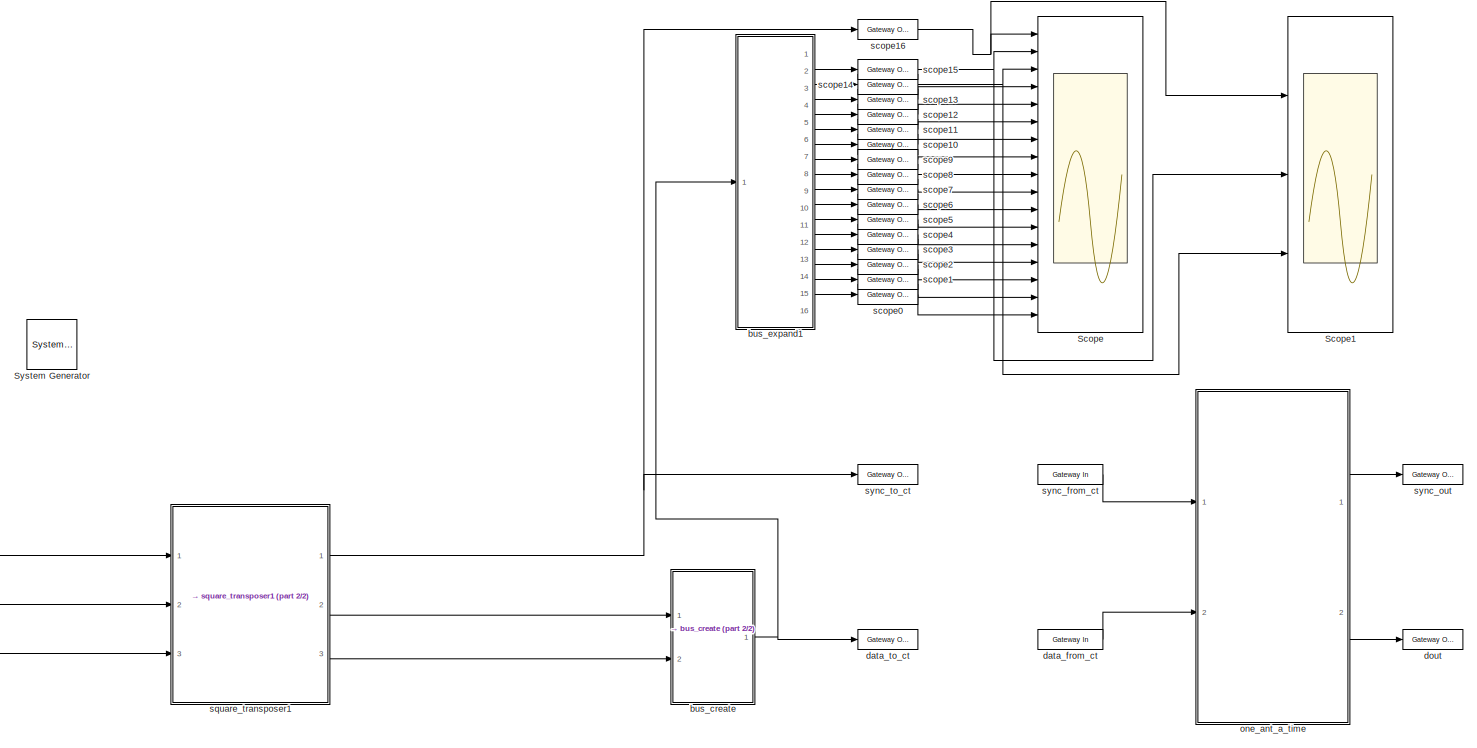
[diagram: root canvas - part 1/2, most of the canvas]
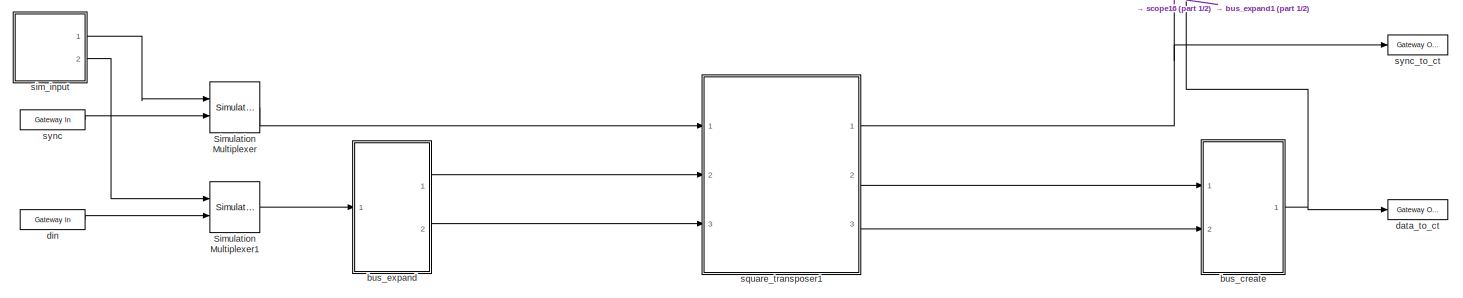
[diagram: root canvas - part 2/2, full width, bottom band]
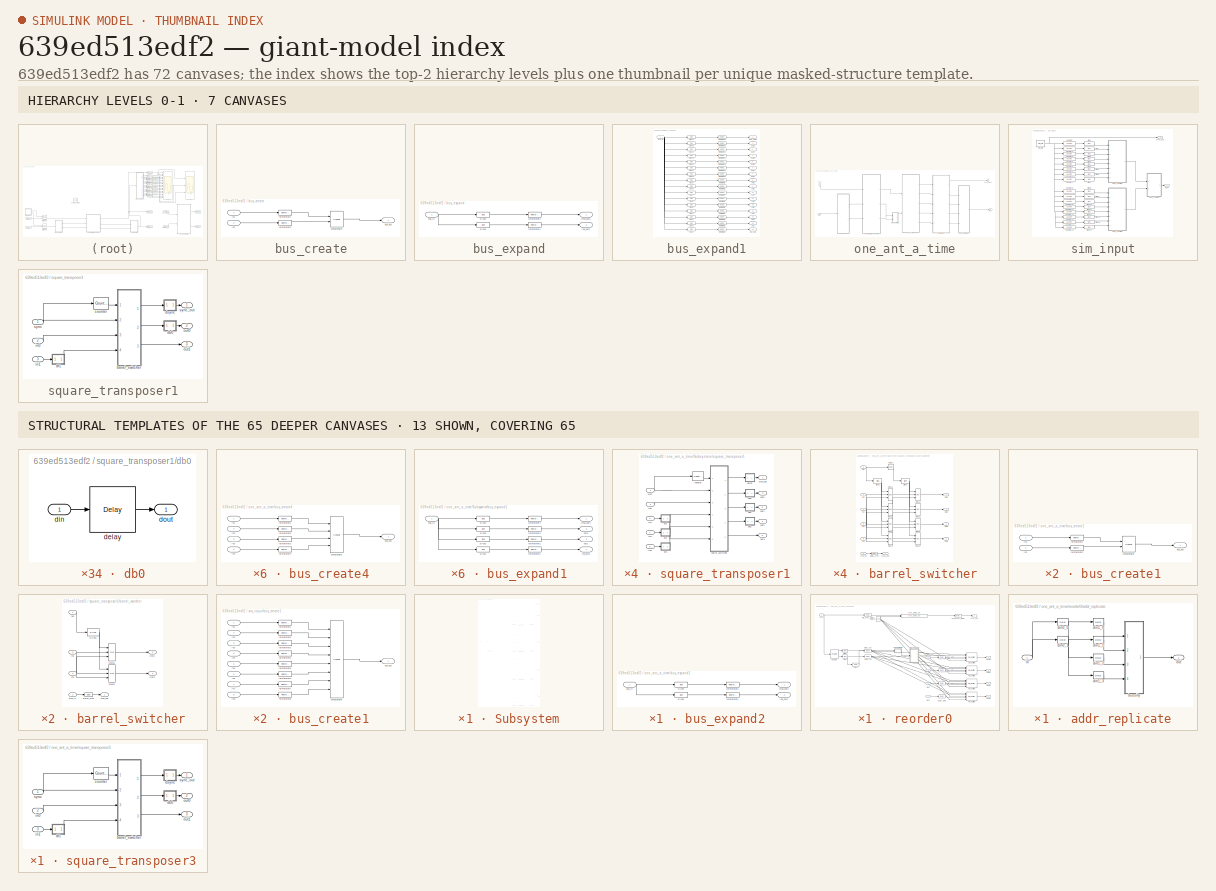
[diagram: thumbnail index - top-2 hierarchy levels (7 canvases) + 13 structural-template representatives of the remaining 65 canvases]
MODEL slx_639ed513edf2
KIND model
BLOCK [Reference]  System Generator  REF=xbsIndex_r4/ System Generator
  AttributesFormatString = System\nGenerator
  Impl_file = ISE Defaults
  Ports = []
  SourceBlock = xbsIndex_r4/ System Generator
  SourceType = Xilinx System Generator Block
  Synth_file = XST Defaults
  Tag = genX
  UserDataPersistent = on
  block_type = sysgen
  clock_wrapper = Clock Enables
  core_generation = According to Block Masks
  dbl_ovrd = According to Block Masks
  dcm_input_clock_period = 100
  deprecated_control = off
  directory = ./ct_reorder_van_core
  eval_field = 0
  has_advanced_control = 0
  incr_netlist = off
  infoedit = System Generator
  package = ff1759
  part = xc6vsx475t
  proj_type = Project Navigator
  run_coregen = off
  sg_icon_stat = 50,50,0,0,token,white,0,58c5b5770fe5f7c311f53dbc6e73f0f6,right,,[ ],[ ]
  sg_mask_display = fprintf('','COMMENT: begin icon graphics');\npatch([0 50 50 0 0 ],[0 0 50 50 0 ],[1 1 1 ]);\npatch([1.6375 16.81 27.31 37.81 48.31 27.31 12.1375 1.6375 ],[36.655 36.655 47.155 36.655 47.155 47.155 47.155 36.655 ],[0.933333 0.203922 0.141176 ]);\npatch([12.1375 27.31 16.81 1.6375 12.1375 ],[26.155 26.155 36.655 36.655 26.155 ],[0.698039 0.0313725 0.219608 ]);\npatch([1.6375 16.81 27.31 12.1375 1.6375 ]...<+327ch>
  sggui_pos = 19487, -846,  464,  470
  simulink_period = 1
  speed = -1
  synthesis_tool = XST
  sysclk_period = 3.2
  testbench = off
  trim_vbits = Everywhere in SubSystem
  xilinxfamily = virtex6
BLOCK [Scope] Scope
  DataFormat = StructureWithTime
  Floating = off
  NumInputPorts = 17
  Ports = [17]
  SampleTime = 0
  ShowLegends = off
  YMax = 5~5~5~5~5~5~5~5~5~5~5~5~5~5~5~5~5
  YMin = -5~-5~-5~-5~-5~-5~-5~-5~-5~-5~-5~-5~-5~-5~-5~-5~-5
BLOCK [Scope] Scope1
  DataFormat = StructureWithTime
  Floating = off
  NumInputPorts = 3
  Ports = [3]
  SampleTime = 0
  SaveName = ScopeData1
  ShowLegends = off
  YMax = 5~5~5
  YMin = -5~-5~-5
  ZoomMode = xonly
BLOCK [Reference] Simulation Multiplexer  REF=xbsIndex_r4/Simulation Multiplexer
  Ports = [2, 1]
  SourceBlock = xbsIndex_r4/Simulation Multiplexer
  SourceType = Xilinx Simulation Multiplexer Block
  block_type = simmux
  has_advanced_control = 0
  hw_sel = 2
  infoedit = Distinguish input subsystems as "simulation only" and "generation only".  The input specified For Simulation will be used during Simulink simulation.  The input specified For Generation will be used during code generation.  This block will typically be used on the output of a HW Co-Simulation, Black Box, or ModelSim subsystem.<br><br>Hardware Notes: This block costs nothing.
  sg_icon_stat = 50,51,2,1,white,blue,0,4170dd71,right,,[ ],[ ]
  sg_mask_display = fprintf('','COMMENT: begin icon graphics');\npatch([0 50 50 0 0 ],[0 0 51 51 0 ],[0.77 0.82 0.91 ]);\nplot([0 50 50 0 0 ],[0 0 51 51 0 ]);\npatch([9.425 19.54 26.54 33.54 40.54 26.54 16.425 9.425 ],[32.77 32.77 39.77 32.77 39.77 39.77 39.77 32.77 ],[1 1 1 ]);\npatch([16.425 26.54 19.54 9.425 16.425 ],[25.77 25.77 32.77 32.77 25.77 ],[0.931 0.946 0.973 ]);\npatch([9.425 19.54 26.54 16.425 9.425 ],[18.77...<+361ch>
  sggui_pos = 13,17,484,293
  sim_sel = 1
BLOCK [Reference] Simulation Multiplexer1  REF=xbsIndex_r4/Simulation Multiplexer
  Ports = [2, 1]
  SourceBlock = xbsIndex_r4/Simulation Multiplexer
  SourceType = Xilinx Simulation Multiplexer Block
  block_type = simmux
  has_advanced_control = 0
  hw_sel = 2
  infoedit = Distinguish input subsystems as "simulation only" and "generation only".  The input specified For Simulation will be used during Simulink simulation.  The input specified For Generation will be used during code generation.  This block will typically be used on the output of a HW Co-Simulation, Black Box, or ModelSim subsystem.<br><br>Hardware Notes: This block costs nothing.
  sg_icon_stat = 50,51,2,1,white,blue,0,4170dd71,right,,[ ],[ ]
  sg_mask_display = fprintf('','COMMENT: begin icon graphics');\npatch([0 50 50 0 0 ],[0 0 51 51 0 ],[0.77 0.82 0.91 ]);\nplot([0 50 50 0 0 ],[0 0 51 51 0 ]);\npatch([9.425 19.54 26.54 33.54 40.54 26.54 16.425 9.425 ],[32.77 32.77 39.77 32.77 39.77 39.77 39.77 32.77 ],[1 1 1 ]);\npatch([16.425 26.54 19.54 9.425 16.425 ],[25.77 25.77 32.77 32.77 25.77 ],[0.931 0.946 0.973 ]);\npatch([9.425 19.54 26.54 16.425 9.425 ],[18.77...<+361ch>
  sggui_pos = 13,17,484,293
  sim_sel = 1
BLOCK [SubSystem] bus_create
  AncestorBlock = casper_library_flow_control/bus_create
  FunctionWithSeparateData = off
  MaskHideContents = off
  MinAlgLoopOccurrences = off
  Opaque = off
  Ports = [2, 1]
  PropExecContextOutsideSubsystem = off
  RTWSystemCode = Auto
  RequestExecContextInheritance = off
  UserDataPersistent = on
BLOCK [Outport] bus_create/bus_out
  IconDisplay = Port number
BLOCK [Reference] bus_create/concatenate  REF=xbsIndex_r4/Concat
  Ports = [2, 1]
  SourceBlock = xbsIndex_r4/Concat
  SourceType = Xilinx Bus Concatenator Block
  block_type = concat
  block_version = 11.4
  dbl_ovrd = off
  has_advanced_control = 0
  infoedit = Concatenates two or more inputs.  Output will be cast to an unsigned value with the binary point at zero.
  num_inputs = 2
  sg_icon_stat = 50,62,2,1,white,blue,0,16398980,right,,[ ],[ ]
  sg_mask_display = fprintf('','COMMENT: begin icon graphics');\npatch([0 50 50 0 0 ],[0 0 62 62 0 ],[0.77 0.82 0.91 ]);\nplot([0 50 50 0 0 ],[0 0 62 62 0 ]);\npatch([9.425 19.54 26.54 33.54 40.54 26.54 16.425 9.425 ],[38.77 38.77 45.77 38.77 45.77 45.77 45.77 38.77 ],[1 1 1 ]);\npatch([16.425 26.54 19.54 9.425 16.425 ],[31.77 31.77 38.77 38.77 31.77 ],[0.931 0.946 0.973 ]);\npatch([9.425 19.54 26.54 16.425 9.425 ],[24.77...<+420ch>  <repeated x3 — deduplicated; at blocks: concatenate>
  sggui_pos = -1,-1,-1,-1
BLOCK [Inport] bus_create/in1
  IconDisplay = Port number
BLOCK [Inport] bus_create/in2
  IconDisplay = Port number
  Port = 2
BLOCK [Reference] bus_create/reinterpret1  REF=xbsIndex_r4/Reinterpret
  Ports = [1, 1]
  SourceBlock = xbsIndex_r4/Reinterpret
  SourceType = Xilinx Type Reinterpreter Block
  arith_type = Unsigned
  bin_pt = 0
  block_type = reinterpret
  block_version = 11.4
  force_arith_type = on
  force_bin_pt = on
  has_advanced_control = 0
  infoedit = Changes signal type without altering the binary representation.   You can changed the signal between signed and unsigned, and relocate the binary point.<br><br>Hardware notes: In hardware this block costs nothing.<br><br>Example:  Suppose the input is 6 bits wide, signed, with 2 fractional bits, and the output is forced to unsigned with 0 fractional bits.  Then an input of -2.0 (1110.00 in binary ...<+59ch>  <repeated x21 — deduplicated; at blocks: reinterpret1, reinterpret2>
  sg_icon_stat = 50,20,1,1,white,blue,0,6b04d0b0,right,,[ ],[ ]
  sg_mask_display = fprintf('','COMMENT: begin icon graphics');\npatch([0 50 50 0 0 ],[0 0 20 20 0 ],[0.77 0.82 0.91 ]);\nplot([0 50 50 0 0 ],[0 0 20 20 0 ]);\npatch([20.55 23.44 25.44 27.44 29.44 25.44 22.55 20.55 ],[12.22 12.22 14.22 12.22 14.22 14.22 14.22 12.22 ],[1 1 1 ]);\npatch([22.55 25.44 23.44 20.55 22.55 ],[10.22 10.22 12.22 12.22 10.22 ],[0.931 0.946 0.973 ]);\npatch([20.55 23.44 25.44 22.55 20.55 ],[8.22 8.22...<+300ch>  <repeated x90 — deduplicated; at blocks: reinterpret1, reinterpret2, reinterpret10, reinterpret11, reinterpret12, reinterpret13, reinterpret14, reinterpret15, reinterpret16, reinterpret3, reinterpret4, reinterpret5, reinterpret6, reinterpret7, reinterpret8, reinterpret9>
  sggui_pos = -1,-1,-1,-1
BLOCK [Reference] bus_create/reinterpret2  REF=xbsIndex_r4/Reinterpret
  Ports = [1, 1]
  SourceBlock = xbsIndex_r4/Reinterpret
  SourceType = Xilinx Type Reinterpreter Block
  arith_type = Unsigned
  bin_pt = 0
  block_type = reinterpret
  block_version = 11.4
  force_arith_type = on
  force_bin_pt = on
  has_advanced_control = 0
  sg_icon_stat = 50,20,1,1,white,blue,0,6b04d0b0,right,,[ ],[ ]
  sggui_pos = 281,224,671,460
BLOCK [SubSystem] bus_expand
  AncestorBlock = casper_library_flow_control/bus_expand
  AttributesFormatString = 2 outputs
  FunctionWithSeparateData = off
  MaskHideContents = off
  MinAlgLoopOccurrences = off
  Opaque = off
  Ports = [1, 2]
  PropExecContextOutsideSubsystem = off
  RTWSystemCode = Auto
  RequestExecContextInheritance = off
  UserDataPersistent = on
BLOCK [Inport] bus_expand/bus_in
  IconDisplay = Port number
BLOCK [Outport] bus_expand/lsb_out1
  IconDisplay = Port number
  Port = 2
BLOCK [Outport] bus_expand/msb_out2
  IconDisplay = Port number
BLOCK [Reference] bus_expand/reinterpret1  REF=xbsIndex_r4/Reinterpret
  Ports = [1, 1]
  SourceBlock = xbsIndex_r4/Reinterpret
  SourceType = Xilinx Type Reinterpreter Block
  arith_type = Unsigned
  bin_pt = 0
  block_type = reinterpret
  force_arith_type = on
  force_bin_pt = on
  has_advanced_control = 0
  infoedit = Changes signal type without altering the binary representation.   You can change the signal between signed and unsigned, and relocate the binary point.<br><br>Hardware notes: In hardware this block costs nothing.<br><br>Example:  Suppose the input is 6 bits wide, signed, with 2 fractional bits, and the output is forced to unsigned with 0 fractional bits.  Then an input of -2.0 (1110.00 in binary 2...<+58ch>  <repeated x69 — deduplicated; at blocks: reinterpret1, reinterpret2, reinterpret10, reinterpret11, reinterpret12, reinterpret13, reinterpret14, reinterpret15, reinterpret16, reinterpret3, reinterpret4, reinterpret5, reinterpret6, reinterpret7, reinterpret8, reinterpret9>
  sg_icon_stat = 50,20,1,1,white,blue,0,6b04d0b0,right,,[ ],[ ]
  sggui_pos = -1,-1,-1,-1
BLOCK [Reference] bus_expand/reinterpret2  REF=xbsIndex_r4/Reinterpret
  Ports = [1, 1]
  SourceBlock = xbsIndex_r4/Reinterpret
  SourceType = Xilinx Type Reinterpreter Block
  arith_type = Unsigned
  bin_pt = 0
  block_type = reinterpret
  force_arith_type = on
  force_bin_pt = on
  has_advanced_control = 0
  sg_icon_stat = 50,20,1,1,white,blue,0,6b04d0b0,right,,[ ],[ ]
  sggui_pos = -1,-1,-1,-1
BLOCK [Reference] bus_expand/slice1  REF=xbsIndex_r4/Slice
  Ports = [1, 1]
  SourceBlock = xbsIndex_r4/Slice
  SourceType = Xilinx Bit Slice Extractor Block
  base0 = LSB of Input
  base1 = MSB of Input
  bit0 = 0
  bit1 = -64
  block_type = slice
  boolean_output = off
  dbl_ovrd = off
  has_advanced_control = 0
  infoedit = Extracts a given range of bits from each input sample and presents it at the output.  The output type is ordinarily unsigned with binary point at zero, but can be Boolean when the slice is one bit wide.<br><br>Hardware notes: In hardware this block costs nothing.  <repeated x72 — deduplicated; at blocks: slice1, slice2, slice10, slice11, slice12, slice13, slice14, slice15, slice16, slice3, slice4, slice5, slice6, slice7, slice8, slice9, +16 more>
  mode = Upper Bit Location + Width
  nbits = 64
  sg_icon_stat = 50,20,1,1,white,blue,0,1fd851a7,right,,[ ],[ ]
  sg_mask_display = fprintf('','COMMENT: begin icon graphics');\npatch([0 50 50 0 0 ],[0 0 20 20 0 ],[0.77 0.82 0.91 ]);\nplot([0 50 50 0 0 ],[0 0 20 20 0 ]);\npatch([20.55 23.44 25.44 27.44 29.44 25.44 22.55 20.55 ],[12.22 12.22 14.22 12.22 14.22 14.22 14.22 12.22 ],[1 1 1 ]);\npatch([22.55 25.44 23.44 20.55 22.55 ],[10.22 10.22 12.22 12.22 10.22 ],[0.931 0.946 0.973 ]);\npatch([20.55 23.44 25.44 22.55 20.55 ],[8.22 8.22...<+310ch>  <repeated x44 — deduplicated; at blocks: slice1, slice2, slice10, slice11, slice12, slice13, slice14, slice15, slice16, slice3, slice4, slice5, slice6, slice7, slice8, slice9>
  sggui_pos = 20,45,543,459
BLOCK [Reference] bus_expand/slice2  REF=xbsIndex_r4/Slice
  Ports = [1, 1]
  SourceBlock = xbsIndex_r4/Slice
  SourceType = Xilinx Bit Slice Extractor Block
  base0 = LSB of Input
  base1 = MSB of Input
  bit0 = 0
  bit1 = 0
  block_type = slice
  boolean_output = off
  dbl_ovrd = off
  has_advanced_control = 0
  mode = Upper Bit Location + Width
  nbits = 64
  sg_icon_stat = 50,20,1,1,white,blue,0,1fd851a7,right,,[ ],[ ]
  sggui_pos = 20,45,543,459
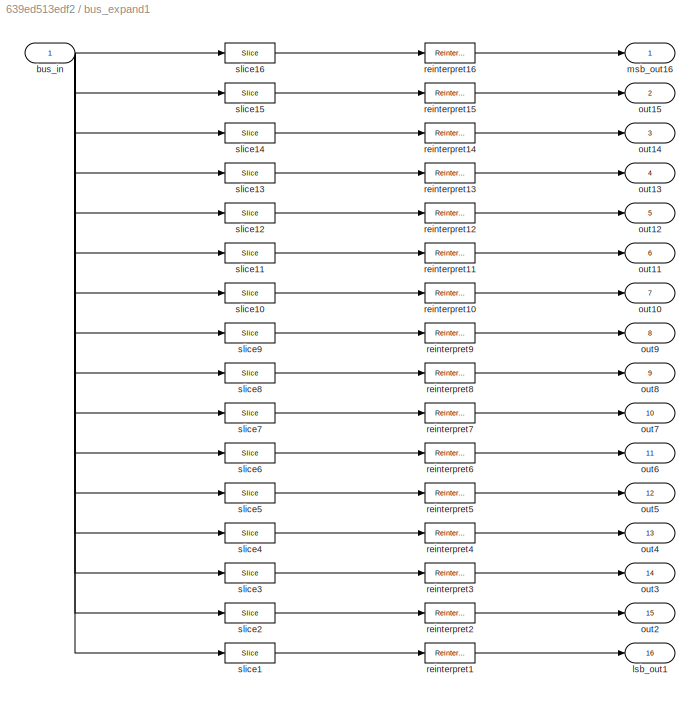
BLOCK [SubSystem] bus_expand1
  AncestorBlock = casper_library_flow_control/bus_expand
  AttributesFormatString = 16 outputs
  FunctionWithSeparateData = off
  MaskHideContents = off
  MinAlgLoopOccurrences = off
  Opaque = off
  Ports = [1, 16]
  PropExecContextOutsideSubsystem = off
  RTWSystemCode = Auto
  RequestExecContextInheritance = off
  UserDataPersistent = on
BLOCK [Inport] bus_expand1/bus_in
  IconDisplay = Port number
BLOCK [Outport] bus_expand1/lsb_out1
  IconDisplay = Port number
  Port = 16
BLOCK [Outport] bus_expand1/msb_out16
  IconDisplay = Port number
BLOCK [Outport] bus_expand1/out10
  IconDisplay = Port number
  Port = 7
BLOCK [Outport] bus_expand1/out11
  IconDisplay = Port number
  Port = 6
BLOCK [Outport] bus_expand1/out12
  IconDisplay = Port number
  Port = 5
BLOCK [Outport] bus_expand1/out13
  IconDisplay = Port number
  Port = 4
BLOCK [Outport] bus_expand1/out14
  IconDisplay = Port number
  Port = 3
BLOCK [Outport] bus_expand1/out15
  IconDisplay = Port number
  Port = 2
BLOCK [Outport] bus_expand1/out2
  IconDisplay = Port number
  Port = 15
BLOCK [Outport] bus_expand1/out3
  IconDisplay = Port number
  Port = 14
BLOCK [Outport] bus_expand1/out4
  IconDisplay = Port number
  Port = 13
BLOCK [Outport] bus_expand1/out5
  IconDisplay = Port number
  Port = 12
BLOCK [Outport] bus_expand1/out6
  IconDisplay = Port number
  Port = 11
BLOCK [Outport] bus_expand1/out7
  IconDisplay = Port number
  Port = 10
BLOCK [Outport] bus_expand1/out8
  IconDisplay = Port number
  Port = 9
BLOCK [Outport] bus_expand1/out9
  IconDisplay = Port number
  Port = 8
BLOCK [Reference] bus_expand1/reinterpret1  REF=xbsIndex_r4/Reinterpret
  Ports = [1, 1]
  SourceBlock = xbsIndex_r4/Reinterpret
  SourceType = Xilinx Type Reinterpreter Block
  arith_type = Unsigned
  bin_pt = 0
  block_type = reinterpret
  force_arith_type = on
  force_bin_pt = on
  has_advanced_control = 0
  sg_icon_stat = 50,20,1,1,white,blue,0,6b04d0b0,right,,[ ],[ ]
  sggui_pos = -1,-1,-1,-1
BLOCK [Reference] bus_expand1/reinterpret10  REF=xbsIndex_r4/Reinterpret
  Ports = [1, 1]
  SourceBlock = xbsIndex_r4/Reinterpret
  SourceType = Xilinx Type Reinterpreter Block
  arith_type = Unsigned
  bin_pt = 0
  block_type = reinterpret
  force_arith_type = on
  force_bin_pt = on
  has_advanced_control = 0
  sg_icon_stat = 50,20,1,1,white,blue,0,6b04d0b0,right,,[ ],[ ]
  sggui_pos = -1,-1,-1,-1
BLOCK [Reference] bus_expand1/reinterpret11  REF=xbsIndex_r4/Reinterpret
  Ports = [1, 1]
  SourceBlock = xbsIndex_r4/Reinterpret
  SourceType = Xilinx Type Reinterpreter Block
  arith_type = Unsigned
  bin_pt = 0
  block_type = reinterpret
  force_arith_type = on
  force_bin_pt = on
  has_advanced_control = 0
  sg_icon_stat = 50,20,1,1,white,blue,0,6b04d0b0,right,,[ ],[ ]
  sggui_pos = -1,-1,-1,-1
BLOCK [Reference] bus_expand1/reinterpret12  REF=xbsIndex_r4/Reinterpret
  Ports = [1, 1]
  SourceBlock = xbsIndex_r4/Reinterpret
  SourceType = Xilinx Type Reinterpreter Block
  arith_type = Unsigned
  bin_pt = 0
  block_type = reinterpret
  force_arith_type = on
  force_bin_pt = on
  has_advanced_control = 0
  sg_icon_stat = 50,20,1,1,white,blue,0,6b04d0b0,right,,[ ],[ ]
  sggui_pos = -1,-1,-1,-1
BLOCK [Reference] bus_expand1/reinterpret13  REF=xbsIndex_r4/Reinterpret
  Ports = [1, 1]
  SourceBlock = xbsIndex_r4/Reinterpret
  SourceType = Xilinx Type Reinterpreter Block
  arith_type = Unsigned
  bin_pt = 0
  block_type = reinterpret
  force_arith_type = on
  force_bin_pt = on
  has_advanced_control = 0
  sg_icon_stat = 50,20,1,1,white,blue,0,6b04d0b0,right,,[ ],[ ]
  sggui_pos = -1,-1,-1,-1
BLOCK [Reference] bus_expand1/reinterpret14  REF=xbsIndex_r4/Reinterpret
  Ports = [1, 1]
  SourceBlock = xbsIndex_r4/Reinterpret
  SourceType = Xilinx Type Reinterpreter Block
  arith_type = Unsigned
  bin_pt = 0
  block_type = reinterpret
  force_arith_type = on
  force_bin_pt = on
  has_advanced_control = 0
  sg_icon_stat = 50,20,1,1,white,blue,0,6b04d0b0,right,,[ ],[ ]
  sggui_pos = -1,-1,-1,-1
BLOCK [Reference] bus_expand1/reinterpret15  REF=xbsIndex_r4/Reinterpret
  Ports = [1, 1]
  SourceBlock = xbsIndex_r4/Reinterpret
  SourceType = Xilinx Type Reinterpreter Block
  arith_type = Unsigned
  bin_pt = 0
  block_type = reinterpret
  force_arith_type = on
  force_bin_pt = on
  has_advanced_control = 0
  sg_icon_stat = 50,20,1,1,white,blue,0,6b04d0b0,right,,[ ],[ ]
  sggui_pos = -1,-1,-1,-1
BLOCK [Reference] bus_expand1/reinterpret16  REF=xbsIndex_r4/Reinterpret
  Ports = [1, 1]
  SourceBlock = xbsIndex_r4/Reinterpret
  SourceType = Xilinx Type Reinterpreter Block
  arith_type = Unsigned
  bin_pt = 0
  block_type = reinterpret
  force_arith_type = on
  force_bin_pt = on
  has_advanced_control = 0
  sg_icon_stat = 50,20,1,1,white,blue,0,6b04d0b0,right,,[ ],[ ]
  sggui_pos = -1,-1,-1,-1
BLOCK [Reference] bus_expand1/reinterpret2  REF=xbsIndex_r4/Reinterpret
  Ports = [1, 1]
  SourceBlock = xbsIndex_r4/Reinterpret
  SourceType = Xilinx Type Reinterpreter Block
  arith_type = Unsigned
  bin_pt = 0
  block_type = reinterpret
  force_arith_type = on
  force_bin_pt = on
  has_advanced_control = 0
  sg_icon_stat = 50,20,1,1,white,blue,0,6b04d0b0,right,,[ ],[ ]
  sggui_pos = -1,-1,-1,-1
BLOCK [Reference] bus_expand1/reinterpret3  REF=xbsIndex_r4/Reinterpret
  Ports = [1, 1]
  SourceBlock = xbsIndex_r4/Reinterpret
  SourceType = Xilinx Type Reinterpreter Block
  arith_type = Unsigned
  bin_pt = 0
  block_type = reinterpret
  force_arith_type = on
  force_bin_pt = on
  has_advanced_control = 0
  sg_icon_stat = 50,20,1,1,white,blue,0,6b04d0b0,right,,[ ],[ ]
  sggui_pos = -1,-1,-1,-1
BLOCK [Reference] bus_expand1/reinterpret4  REF=xbsIndex_r4/Reinterpret
  Ports = [1, 1]
  SourceBlock = xbsIndex_r4/Reinterpret
  SourceType = Xilinx Type Reinterpreter Block
  arith_type = Unsigned
  bin_pt = 0
  block_type = reinterpret
  force_arith_type = on
  force_bin_pt = on
  has_advanced_control = 0
  sg_icon_stat = 50,20,1,1,white,blue,0,6b04d0b0,right,,[ ],[ ]
  sggui_pos = -1,-1,-1,-1
BLOCK [Reference] bus_expand1/reinterpret5  REF=xbsIndex_r4/Reinterpret
  Ports = [1, 1]
  SourceBlock = xbsIndex_r4/Reinterpret
  SourceType = Xilinx Type Reinterpreter Block
  arith_type = Unsigned
  bin_pt = 0
  block_type = reinterpret
  force_arith_type = on
  force_bin_pt = on
  has_advanced_control = 0
  sg_icon_stat = 50,20,1,1,white,blue,0,6b04d0b0,right,,[ ],[ ]
  sggui_pos = -1,-1,-1,-1
BLOCK [Reference] bus_expand1/reinterpret6  REF=xbsIndex_r4/Reinterpret
  Ports = [1, 1]
  SourceBlock = xbsIndex_r4/Reinterpret
  SourceType = Xilinx Type Reinterpreter Block
  arith_type = Unsigned
  bin_pt = 0
  block_type = reinterpret
  force_arith_type = on
  force_bin_pt = on
  has_advanced_control = 0
  sg_icon_stat = 50,20,1,1,white,blue,0,6b04d0b0,right,,[ ],[ ]
  sggui_pos = -1,-1,-1,-1
BLOCK [Reference] bus_expand1/reinterpret7  REF=xbsIndex_r4/Reinterpret
  Ports = [1, 1]
  SourceBlock = xbsIndex_r4/Reinterpret
  SourceType = Xilinx Type Reinterpreter Block
  arith_type = Unsigned
  bin_pt = 0
  block_type = reinterpret
  force_arith_type = on
  force_bin_pt = on
  has_advanced_control = 0
  sg_icon_stat = 50,20,1,1,white,blue,0,6b04d0b0,right,,[ ],[ ]
  sggui_pos = -1,-1,-1,-1
BLOCK [Reference] bus_expand1/reinterpret8  REF=xbsIndex_r4/Reinterpret
  Ports = [1, 1]
  SourceBlock = xbsIndex_r4/Reinterpret
  SourceType = Xilinx Type Reinterpreter Block
  arith_type = Unsigned
  bin_pt = 0
  block_type = reinterpret
  force_arith_type = on
  force_bin_pt = on
  has_advanced_control = 0
  sg_icon_stat = 50,20,1,1,white,blue,0,6b04d0b0,right,,[ ],[ ]
  sggui_pos = -1,-1,-1,-1
BLOCK [Reference] bus_expand1/reinterpret9  REF=xbsIndex_r4/Reinterpret
  Ports = [1, 1]
  SourceBlock = xbsIndex_r4/Reinterpret
  SourceType = Xilinx Type Reinterpreter Block
  arith_type = Unsigned
  bin_pt = 0
  block_type = reinterpret
  force_arith_type = on
  force_bin_pt = on
  has_advanced_control = 0
  sg_icon_stat = 50,20,1,1,white,blue,0,6b04d0b0,right,,[ ],[ ]
  sggui_pos = -1,-1,-1,-1
BLOCK [Reference] bus_expand1/slice1  REF=xbsIndex_r4/Slice
  Ports = [1, 1]
  SourceBlock = xbsIndex_r4/Slice
  SourceType = Xilinx Bit Slice Extractor Block
  base0 = LSB of Input
  base1 = MSB of Input
  bit0 = 0
  bit1 = -120
  block_type = slice
  boolean_output = off
  dbl_ovrd = off
  has_advanced_control = 0
  mode = Upper Bit Location + Width
  nbits = 8
  sg_icon_stat = 50,20,1,1,white,blue,0,1fd851a7,right,,[ ],[ ]
  sggui_pos = 20,45,543,459
BLOCK [Reference] bus_expand1/slice10  REF=xbsIndex_r4/Slice
  Ports = [1, 1]
  SourceBlock = xbsIndex_r4/Slice
  SourceType = Xilinx Bit Slice Extractor Block
  base0 = LSB of Input
  base1 = MSB of Input
  bit0 = 0
  bit1 = -48
  block_type = slice
  boolean_output = off
  dbl_ovrd = off
  has_advanced_control = 0
  mode = Upper Bit Location + Width
  nbits = 8
  sg_icon_stat = 50,20,1,1,white,blue,0,1fd851a7,right,,[ ],[ ]
  sggui_pos = -1,-1,-1,-1
BLOCK [Reference] bus_expand1/slice11  REF=xbsIndex_r4/Slice
  Ports = [1, 1]
  SourceBlock = xbsIndex_r4/Slice
  SourceType = Xilinx Bit Slice Extractor Block
  base0 = LSB of Input
  base1 = MSB of Input
  bit0 = 0
  bit1 = -40
  block_type = slice
  boolean_output = off
  dbl_ovrd = off
  has_advanced_control = 0
  mode = Upper Bit Location + Width
  nbits = 8
  sg_icon_stat = 50,20,1,1,white,blue,0,1fd851a7,right,,[ ],[ ]
  sggui_pos = -1,-1,-1,-1
BLOCK [Reference] bus_expand1/slice12  REF=xbsIndex_r4/Slice
  Ports = [1, 1]
  SourceBlock = xbsIndex_r4/Slice
  SourceType = Xilinx Bit Slice Extractor Block
  base0 = LSB of Input
  base1 = MSB of Input
  bit0 = 0
  bit1 = -32
  block_type = slice
  boolean_output = off
  dbl_ovrd = off
  has_advanced_control = 0
  mode = Upper Bit Location + Width
  nbits = 8
  sg_icon_stat = 50,20,1,1,white,blue,0,1fd851a7,right,,[ ],[ ]
  sggui_pos = -1,-1,-1,-1
BLOCK [Reference] bus_expand1/slice13  REF=xbsIndex_r4/Slice
  Ports = [1, 1]
  SourceBlock = xbsIndex_r4/Slice
  SourceType = Xilinx Bit Slice Extractor Block
  base0 = LSB of Input
  base1 = MSB of Input
  bit0 = 0
  bit1 = -24
  block_type = slice
  boolean_output = off
  dbl_ovrd = off
  has_advanced_control = 0
  mode = Upper Bit Location + Width
  nbits = 8
  sg_icon_stat = 50,20,1,1,white,blue,0,1fd851a7,right,,[ ],[ ]
  sggui_pos = -1,-1,-1,-1
BLOCK [Reference] bus_expand1/slice14  REF=xbsIndex_r4/Slice
  Ports = [1, 1]
  SourceBlock = xbsIndex_r4/Slice
  SourceType = Xilinx Bit Slice Extractor Block
  base0 = LSB of Input
  base1 = MSB of Input
  bit0 = 0
  bit1 = -16
  block_type = slice
  boolean_output = off
  dbl_ovrd = off
  has_advanced_control = 0
  mode = Upper Bit Location + Width
  nbits = 8
  sg_icon_stat = 50,20,1,1,white,blue,0,1fd851a7,right,,[ ],[ ]
  sggui_pos = -1,-1,-1,-1
BLOCK [Reference] bus_expand1/slice15  REF=xbsIndex_r4/Slice
  Ports = [1, 1]
  SourceBlock = xbsIndex_r4/Slice
  SourceType = Xilinx Bit Slice Extractor Block
  base0 = LSB of Input
  base1 = MSB of Input
  bit0 = 0
  bit1 = -8
  block_type = slice
  boolean_output = off
  dbl_ovrd = off
  has_advanced_control = 0
  mode = Upper Bit Location + Width
  nbits = 8
  sg_icon_stat = 50,20,1,1,white,blue,0,1fd851a7,right,,[ ],[ ]
  sggui_pos = -1,-1,-1,-1
BLOCK [Reference] bus_expand1/slice16  REF=xbsIndex_r4/Slice
  Ports = [1, 1]
  SourceBlock = xbsIndex_r4/Slice
  SourceType = Xilinx Bit Slice Extractor Block
  base0 = LSB of Input
  base1 = MSB of Input
  bit0 = 0
  bit1 = 0
  block_type = slice
  boolean_output = off
  dbl_ovrd = off
  has_advanced_control = 0
  mode = Upper Bit Location + Width
  nbits = 8
  sg_icon_stat = 50,20,1,1,white,blue,0,1fd851a7,right,,[ ],[ ]
  sggui_pos = -1,-1,-1,-1
BLOCK [Reference] bus_expand1/slice2  REF=xbsIndex_r4/Slice
  Ports = [1, 1]
  SourceBlock = xbsIndex_r4/Slice
  SourceType = Xilinx Bit Slice Extractor Block
  base0 = LSB of Input
  base1 = MSB of Input
  bit0 = 0
  bit1 = -112
  block_type = slice
  boolean_output = off
  dbl_ovrd = off
  has_advanced_control = 0
  mode = Upper Bit Location + Width
  nbits = 8
  sg_icon_stat = 50,20,1,1,white,blue,0,1fd851a7,right,,[ ],[ ]
  sggui_pos = 20,45,543,459
BLOCK [Reference] bus_expand1/slice3  REF=xbsIndex_r4/Slice
  Ports = [1, 1]
  SourceBlock = xbsIndex_r4/Slice
  SourceType = Xilinx Bit Slice Extractor Block
  base0 = LSB of Input
  base1 = MSB of Input
  bit0 = 0
  bit1 = -104
  block_type = slice
  boolean_output = off
  dbl_ovrd = off
  has_advanced_control = 0
  mode = Upper Bit Location + Width
  nbits = 8
  sg_icon_stat = 50,20,1,1,white,blue,0,1fd851a7,right,,[ ],[ ]
  sggui_pos = -1,-1,-1,-1
BLOCK [Reference] bus_expand1/slice4  REF=xbsIndex_r4/Slice
  Ports = [1, 1]
  SourceBlock = xbsIndex_r4/Slice
  SourceType = Xilinx Bit Slice Extractor Block
  base0 = LSB of Input
  base1 = MSB of Input
  bit0 = 0
  bit1 = -96
  block_type = slice
  boolean_output = off
  dbl_ovrd = off
  has_advanced_control = 0
  mode = Upper Bit Location + Width
  nbits = 8
  sg_icon_stat = 50,20,1,1,white,blue,0,1fd851a7,right,,[ ],[ ]
  sggui_pos = -1,-1,-1,-1
BLOCK [Reference] bus_expand1/slice5  REF=xbsIndex_r4/Slice
  Ports = [1, 1]
  SourceBlock = xbsIndex_r4/Slice
  SourceType = Xilinx Bit Slice Extractor Block
  base0 = LSB of Input
  base1 = MSB of Input
  bit0 = 0
  bit1 = -88
  block_type = slice
  boolean_output = off
  dbl_ovrd = off
  has_advanced_control = 0
  mode = Upper Bit Location + Width
  nbits = 8
  sg_icon_stat = 50,20,1,1,white,blue,0,1fd851a7,right,,[ ],[ ]
  sggui_pos = -1,-1,-1,-1
BLOCK [Reference] bus_expand1/slice6  REF=xbsIndex_r4/Slice
  Ports = [1, 1]
  SourceBlock = xbsIndex_r4/Slice
  SourceType = Xilinx Bit Slice Extractor Block
  base0 = LSB of Input
  base1 = MSB of Input
  bit0 = 0
  bit1 = -80
  block_type = slice
  boolean_output = off
  dbl_ovrd = off
  has_advanced_control = 0
  mode = Upper Bit Location + Width
  nbits = 8
  sg_icon_stat = 50,20,1,1,white,blue,0,1fd851a7,right,,[ ],[ ]
  sggui_pos = -1,-1,-1,-1
BLOCK [Reference] bus_expand1/slice7  REF=xbsIndex_r4/Slice
  Ports = [1, 1]
  SourceBlock = xbsIndex_r4/Slice
  SourceType = Xilinx Bit Slice Extractor Block
  base0 = LSB of Input
  base1 = MSB of Input
  bit0 = 0
  bit1 = -72
  block_type = slice
  boolean_output = off
  dbl_ovrd = off
  has_advanced_control = 0
  mode = Upper Bit Location + Width
  nbits = 8
  sg_icon_stat = 50,20,1,1,white,blue,0,1fd851a7,right,,[ ],[ ]
  sggui_pos = -1,-1,-1,-1
BLOCK [Reference] bus_expand1/slice8  REF=xbsIndex_r4/Slice
  Ports = [1, 1]
  SourceBlock = xbsIndex_r4/Slice
  SourceType = Xilinx Bit Slice Extractor Block
  base0 = LSB of Input
  base1 = MSB of Input
  bit0 = 0
  bit1 = -64
  block_type = slice
  boolean_output = off
  dbl_ovrd = off
  has_advanced_control = 0
  mode = Upper Bit Location + Width
  nbits = 8
  sg_icon_stat = 50,20,1,1,white,blue,0,1fd851a7,right,,[ ],[ ]
  sggui_pos = -1,-1,-1,-1
BLOCK [Reference] bus_expand1/slice9  REF=xbsIndex_r4/Slice
  Ports = [1, 1]
  SourceBlock = xbsIndex_r4/Slice
  SourceType = Xilinx Bit Slice Extractor Block
  base0 = LSB of Input
  base1 = MSB of Input
  bit0 = 0
  bit1 = -56
  block_type = slice
  boolean_output = off
  dbl_ovrd = off
  has_advanced_control = 0
  mode = Upper Bit Location + Width
  nbits = 8
  sg_icon_stat = 50,20,1,1,white,blue,0,1fd851a7,right,,[ ],[ ]
  sggui_pos = -1,-1,-1,-1
BLOCK [Reference] data_from_ct  REF=xbsIndex_r4/Gateway In
  ADCChannel = '1'
  LOCs = {}
  Ports = [1, 1]
  SourceBlock = xbsIndex_r4/Gateway In
  SourceType = Xilinx Gateway In Block
  UseAsADC = off
  arith_type = Unsigned
  bin_pt = 0
  block_type = gatewayin
  dbl_ovrd = off
  exp_width = 8
  frac_width = 24
  gui_display_data_type = Fixed-point
  has_advanced_control = 0
  hdl_port = on
  infoedit = Gateway in block.  Converts inputs of type Simulink integer, single, double and fixed-point to  Xilinx fixed-point or floating-point data type.<br><br>Hardware notes:  In hardware these blocks become top level input ports.  <repeated x4 — deduplicated; at blocks: data_from_ct, din, sync, sync_from_ct>
  inherit_from_input = off
  locs_specified = off
  n_bits = 8*8*2
  overflow = Wrap
  period = 1
  preci_type = Single
  quantization = Truncate
  sg_icon_stat = 65,20,1,1,white,yellow,1,00d3666e,right,,[ ],[ ]
  sg_mask_display = fprintf('','COMMENT: begin icon graphics');\npatch([0 65 65 0 0 ],[0 0 20 20 0 ],[0.95 0.93 0.65 ]);\nplot([0 65 65 0 0 ],[0 0 20 20 0 ]);\npatch([27.55 30.44 32.44 34.44 36.44 32.44 29.55 27.55 ],[12.22 12.22 14.22 12.22 14.22 14.22 14.22 12.22 ],[1 1 1 ]);\npatch([29.55 32.44 30.44 27.55 29.55 ],[10.22 10.22 12.22 12.22 10.22 ],[0.985 0.979 0.895 ]);\npatch([27.55 30.44 32.44 29.55 27.55 ],[8.22 8.22...<+383ch>  <repeated x4 — deduplicated; at blocks: data_from_ct, din, sync, sync_from_ct>
  sggui_pos = 6,17,481,695
  timing_constraint = None
  xl_area = [0,0,0,0,0,0,0]
  xl_use_area = off
BLOCK [Reference] data_to_ct  REF=xbsIndex_r4/Gateway Out
  DACChannel = '1'
  LOCs = {}
  Ports = [1, 1]
  SourceBlock = xbsIndex_r4/Gateway Out
  SourceType = Xilinx Gateway Out Block
  UseAsDAC = off
  block_type = gatewayout
  has_advanced_control = 0
  hdl_port = on
  infoedit = Gateway out block.  Converts Xilinx fixed-point or floating-point type inputs into ouputs of type Simulink integer, single, double, or fixed-point.<br><br>Hardware notes:  In hardware these blocks become top level output ports or are discarded, depending on how they are configured.  <repeated x21 — deduplicated; at blocks: data_to_ct, dout, scope0, scope1, scope10, scope11, scope12, scope13, scope14, scope15, scope16, scope2, scope3, scope4, scope5, scope6, +5 more>
  inherit_from_input = off
  locs_specified = off
  sg_icon_stat = 60,20,1,1,white,yellow,1,cc31b7ac,right,,[ ],[ ]
  sg_mask_display = fprintf('','COMMENT: begin icon graphics');\npatch([0 60 60 0 0 ],[0 0 20 20 0 ],[0.95 0.93 0.65 ]);\nplot([0 60 60 0 0 ],[0 0 20 20 0 ]);\npatch([25.55 28.44 30.44 32.44 34.44 30.44 27.55 25.55 ],[12.22 12.22 14.22 12.22 14.22 14.22 14.22 12.22 ],[1 1 1 ]);\npatch([27.55 30.44 28.44 25.55 27.55 ],[10.22 10.22 12.22 12.22 10.22 ],[0.985 0.979 0.895 ]);\npatch([25.55 28.44 30.44 27.55 25.55 ],[8.22 8.22...<+384ch>  <repeated x4 — deduplicated; at blocks: data_to_ct, dout, sync_out, sync_to_ct>
  sggui_pos = -1,-1,-1,-1
  timing_constraint = None
  xl_area = [0,0,0,0,0,0,0]
  xl_use_area = off
BLOCK [Reference] din  REF=xbsIndex_r4/Gateway In
  ADCChannel = '1'
  LOCs = {}
  Ports = [1, 1]
  SourceBlock = xbsIndex_r4/Gateway In
  SourceType = Xilinx Gateway In Block
  UseAsADC = off
  arith_type = Unsigned
  bin_pt = 0
  block_type = gatewayin
  dbl_ovrd = off
  exp_width = 8
  frac_width = 24
  gui_display_data_type = Fixed-point
  has_advanced_control = 0
  hdl_port = on
  inherit_from_input = off
  locs_specified = off
  n_bits = 8*8*2
  overflow = Wrap
  period = 1
  preci_type = Single
  quantization = Truncate
  sg_icon_stat = 65,20,1,1,white,yellow,1,00d3666e,right,,[ ],[ ]
  sggui_pos = 13,17,481,695
  timing_constraint = None
  xl_area = [0,0,0,0,0,0,0]
  xl_use_area = off
BLOCK [Reference] dout  REF=xbsIndex_r4/Gateway Out
  DACChannel = '1'
  LOCs = {}
  Ports = [1, 1]
  SourceBlock = xbsIndex_r4/Gateway Out
  SourceType = Xilinx Gateway Out Block
  UseAsDAC = off
  block_type = gatewayout
  has_advanced_control = 0
  hdl_port = on
  inherit_from_input = off
  locs_specified = off
  sg_icon_stat = 60,20,1,1,white,yellow,1,cc31b7ac,right,,[ ],[ ]
  sggui_pos = -1,-1,-1,-1
  timing_constraint = None
  xl_area = [0,0,0,0,0,0,0]
  xl_use_area = off
BLOCK [SubSystem] one_ant_a_time
  FunctionWithSeparateData = off
  MaskHideContents = off
  MinAlgLoopOccurrences = off
  Opaque = off
  Ports = [2, 2]
  PropExecContextOutsideSubsystem = off
  RTWSystemCode = Auto
  RequestExecContextInheritance = off
BLOCK [SubSystem] one_ant_a_time/Subsystem
  FunctionWithSeparateData = off
  MaskHideContents = off
  MinAlgLoopOccurrences = off
  Opaque = off
  Ports = [2, 5]
  PropExecContextOutsideSubsystem = off
  RTWSystemCode = Auto
  RequestExecContextInheritance = off
BLOCK [SubSystem] one_ant_a_time/Subsystem/bus_create1
  AncestorBlock = casper_library_flow_control/bus_create
  FunctionWithSeparateData = off
  MaskHideContents = off
  MinAlgLoopOccurrences = off
  Opaque = off
  Ports = [4, 1]
  PropExecContextOutsideSubsystem = off
  RTWSystemCode = Auto
  RequestExecContextInheritance = off
  UserDataPersistent = on
BLOCK [Outport] one_ant_a_time/Subsystem/bus_create1/bus_out
  IconDisplay = Port number
BLOCK [Reference] one_ant_a_time/Subsystem/bus_create1/concatenate  REF=xbsIndex_r4/Concat
  Ports = [4, 1]
  SourceBlock = xbsIndex_r4/Concat
  SourceType = Xilinx Bus Concatenator Block
  block_type = concat
  block_version = 11.4
  dbl_ovrd = off
  has_advanced_control = 0
  infoedit = Concatenates two or more inputs.  Output will be cast to an unsigned value with the binary point at zero.
  num_inputs = 4
  sg_icon_stat = 50,141,4,1,white,blue,0,47d3d416,right,,[ ],[ ]
  sg_mask_display = fprintf('','COMMENT: begin icon graphics');\npatch([0 50 50 0 0 ],[0 0 141 141 0 ],[0.77 0.82 0.91 ]);\nplot([0 50 50 0 0 ],[0 0 141 141 0 ]);\npatch([9.425 19.54 26.54 33.54 40.54 26.54 16.425 9.425 ],[77.77 77.77 84.77 77.77 84.77 84.77 84.77 77.77 ],[1 1 1 ]);\npatch([16.425 26.54 19.54 9.425 16.425 ],[70.77 70.77 77.77 77.77 70.77 ],[0.931 0.946 0.973 ]);\npatch([9.425 19.54 26.54 16.425 9.425 ],[6...<+426ch>  <repeated x6 — deduplicated; at blocks: concatenate>
  sggui_pos = -1,-1,-1,-1
BLOCK [Inport] one_ant_a_time/Subsystem/bus_create1/in1
  IconDisplay = Port number
BLOCK [Inport] one_ant_a_time/Subsystem/bus_create1/in2
  IconDisplay = Port number
  Port = 2
BLOCK [Inport] one_ant_a_time/Subsystem/bus_create1/in3
  IconDisplay = Port number
  Port = 3
BLOCK [Inport] one_ant_a_time/Subsystem/bus_create1/in4
  IconDisplay = Port number
  Port = 4
BLOCK [Reference] one_ant_a_time/Subsystem/bus_create1/reinterpret1  REF=xbsIndex_r4/Reinterpret
  Ports = [1, 1]
  SourceBlock = xbsIndex_r4/Reinterpret
  SourceType = Xilinx Type Reinterpreter Block
  arith_type = Unsigned
  bin_pt = 0
  block_type = reinterpret
  block_version = 11.4
  force_arith_type = on
  force_bin_pt = on
  has_advanced_control = 0
  sg_icon_stat = 50,20,1,1,white,blue,0,6b04d0b0,right,,[ ],[ ]
  sggui_pos = -1,-1,-1,-1
BLOCK [Reference] one_ant_a_time/Subsystem/bus_create1/reinterpret2  REF=xbsIndex_r4/Reinterpret
  Ports = [1, 1]
  SourceBlock = xbsIndex_r4/Reinterpret
  SourceType = Xilinx Type Reinterpreter Block
  arith_type = Unsigned
  bin_pt = 0
  block_type = reinterpret
  block_version = 11.4
  force_arith_type = on
  force_bin_pt = on
  has_advanced_control = 0
  sg_icon_stat = 50,20,1,1,white,blue,0,6b04d0b0,right,,[ ],[ ]
  sggui_pos = 281,224,671,460
BLOCK [Reference] one_ant_a_time/Subsystem/bus_create1/reinterpret3  REF=xbsIndex_r4/Reinterpret
  Ports = [1, 1]
  SourceBlock = xbsIndex_r4/Reinterpret
  SourceType = Xilinx Type Reinterpreter Block
  arith_type = Unsigned
  bin_pt = 0
  block_type = reinterpret
  force_arith_type = on
  force_bin_pt = on
  has_advanced_control = 0
  sg_icon_stat = 50,20,1,1,white,blue,0,6b04d0b0,right,,[ ],[ ]
  sggui_pos = -1,-1,-1,-1
BLOCK [Reference] one_ant_a_time/Subsystem/bus_create1/reinterpret4  REF=xbsIndex_r4/Reinterpret
  Ports = [1, 1]
  SourceBlock = xbsIndex_r4/Reinterpret
  SourceType = Xilinx Type Reinterpreter Block
  arith_type = Unsigned
  bin_pt = 0
  block_type = reinterpret
  force_arith_type = on
  force_bin_pt = on
  has_advanced_control = 0
  sg_icon_stat = 50,20,1,1,white,blue,0,6b04d0b0,right,,[ ],[ ]
  sggui_pos = -1,-1,-1,-1
BLOCK [SubSystem] one_ant_a_time/Subsystem/bus_create2
  AncestorBlock = casper_library_flow_control/bus_create
  FunctionWithSeparateData = off
  MaskHideContents = off
  MinAlgLoopOccurrences = off
  Opaque = off
  Ports = [4, 1]
  PropExecContextOutsideSubsystem = off
  RTWSystemCode = Auto
  RequestExecContextInheritance = off
  UserDataPersistent = on
BLOCK [Outport] one_ant_a_time/Subsystem/bus_create2/bus_out
  IconDisplay = Port number
BLOCK [Reference] one_ant_a_time/Subsystem/bus_create2/concatenate  REF=xbsIndex_r4/Concat
  Ports = [4, 1]
  SourceBlock = xbsIndex_r4/Concat
  SourceType = Xilinx Bus Concatenator Block
  block_type = concat
  block_version = 11.4
  dbl_ovrd = off
  has_advanced_control = 0
  infoedit = Concatenates two or more inputs.  Output will be cast to an unsigned value with the binary point at zero.
  num_inputs = 4
  sg_icon_stat = 50,141,4,1,white,blue,0,47d3d416,right,,[ ],[ ]
  sggui_pos = -1,-1,-1,-1
BLOCK [Inport] one_ant_a_time/Subsystem/bus_create2/in1
  IconDisplay = Port number
BLOCK [Inport] one_ant_a_time/Subsystem/bus_create2/in2
  IconDisplay = Port number
  Port = 2
BLOCK [Inport] one_ant_a_time/Subsystem/bus_create2/in3
  IconDisplay = Port number
  Port = 3
BLOCK [Inport] one_ant_a_time/Subsystem/bus_create2/in4
  IconDisplay = Port number
  Port = 4
BLOCK [Reference] one_ant_a_time/Subsystem/bus_create2/reinterpret1  REF=xbsIndex_r4/Reinterpret
  Ports = [1, 1]
  SourceBlock = xbsIndex_r4/Reinterpret
  SourceType = Xilinx Type Reinterpreter Block
  arith_type = Unsigned
  bin_pt = 0
  block_type = reinterpret
  block_version = 11.4
  force_arith_type = on
  force_bin_pt = on
  has_advanced_control = 0
  sg_icon_stat = 50,20,1,1,white,blue,0,6b04d0b0,right,,[ ],[ ]
  sggui_pos = -1,-1,-1,-1
BLOCK [Reference] one_ant_a_time/Subsystem/bus_create2/reinterpret2  REF=xbsIndex_r4/Reinterpret
  Ports = [1, 1]
  SourceBlock = xbsIndex_r4/Reinterpret
  SourceType = Xilinx Type Reinterpreter Block
  arith_type = Unsigned
  bin_pt = 0
  block_type = reinterpret
  block_version = 11.4
  force_arith_type = on
  force_bin_pt = on
  has_advanced_control = 0
  sg_icon_stat = 50,20,1,1,white,blue,0,6b04d0b0,right,,[ ],[ ]
  sggui_pos = 281,224,671,460
BLOCK [Reference] one_ant_a_time/Subsystem/bus_create2/reinterpret3  REF=xbsIndex_r4/Reinterpret
  Ports = [1, 1]
  SourceBlock = xbsIndex_r4/Reinterpret
  SourceType = Xilinx Type Reinterpreter Block
  arith_type = Unsigned
  bin_pt = 0
  block_type = reinterpret
  force_arith_type = on
  force_bin_pt = on
  has_advanced_control = 0
  sg_icon_stat = 50,20,1,1,white,blue,0,6b04d0b0,right,,[ ],[ ]
  sggui_pos = -1,-1,-1,-1
BLOCK [Reference] one_ant_a_time/Subsystem/bus_create2/reinterpret4  REF=xbsIndex_r4/Reinterpret
  Ports = [1, 1]
  SourceBlock = xbsIndex_r4/Reinterpret
  SourceType = Xilinx Type Reinterpreter Block
  arith_type = Unsigned
  bin_pt = 0
  block_type = reinterpret
  force_arith_type = on
  force_bin_pt = on
  has_advanced_control = 0
  sg_icon_stat = 50,20,1,1,white,blue,0,6b04d0b0,right,,[ ],[ ]
  sggui_pos = -1,-1,-1,-1
BLOCK [SubSystem] one_ant_a_time/Subsystem/bus_create3
  AncestorBlock = casper_library_flow_control/bus_create
  FunctionWithSeparateData = off
  MaskHideContents = off
  MinAlgLoopOccurrences = off
  Opaque = off
  Ports = [4, 1]
  PropExecContextOutsideSubsystem = off
  RTWSystemCode = Auto
  RequestExecContextInheritance = off
  UserDataPersistent = on
BLOCK [Outport] one_ant_a_time/Subsystem/bus_create3/bus_out
  IconDisplay = Port number
BLOCK [Reference] one_ant_a_time/Subsystem/bus_create3/concatenate  REF=xbsIndex_r4/Concat
  Ports = [4, 1]
  SourceBlock = xbsIndex_r4/Concat
  SourceType = Xilinx Bus Concatenator Block
  block_type = concat
  block_version = 11.4
  dbl_ovrd = off
  has_advanced_control = 0
  infoedit = Concatenates two or more inputs.  Output will be cast to an unsigned value with the binary point at zero.
  num_inputs = 4
  sg_icon_stat = 50,141,4,1,white,blue,0,47d3d416,right,,[ ],[ ]
  sggui_pos = -1,-1,-1,-1
BLOCK [Inport] one_ant_a_time/Subsystem/bus_create3/in1
  IconDisplay = Port number
BLOCK [Inport] one_ant_a_time/Subsystem/bus_create3/in2
  IconDisplay = Port number
  Port = 2
BLOCK [Inport] one_ant_a_time/Subsystem/bus_create3/in3
  IconDisplay = Port number
  Port = 3
BLOCK [Inport] one_ant_a_time/Subsystem/bus_create3/in4
  IconDisplay = Port number
  Port = 4
BLOCK [Reference] one_ant_a_time/Subsystem/bus_create3/reinterpret1  REF=xbsIndex_r4/Reinterpret
  Ports = [1, 1]
  SourceBlock = xbsIndex_r4/Reinterpret
  SourceType = Xilinx Type Reinterpreter Block
  arith_type = Unsigned
  bin_pt = 0
  block_type = reinterpret
  block_version = 11.4
  force_arith_type = on
  force_bin_pt = on
  has_advanced_control = 0
  sg_icon_stat = 50,20,1,1,white,blue,0,6b04d0b0,right,,[ ],[ ]
  sggui_pos = -1,-1,-1,-1
BLOCK [Reference] one_ant_a_time/Subsystem/bus_create3/reinterpret2  REF=xbsIndex_r4/Reinterpret
  Ports = [1, 1]
  SourceBlock = xbsIndex_r4/Reinterpret
  SourceType = Xilinx Type Reinterpreter Block
  arith_type = Unsigned
  bin_pt = 0
  block_type = reinterpret
  block_version = 11.4
  force_arith_type = on
  force_bin_pt = on
  has_advanced_control = 0
  sg_icon_stat = 50,20,1,1,white,blue,0,6b04d0b0,right,,[ ],[ ]
  sggui_pos = 281,224,671,460
BLOCK [Reference] one_ant_a_time/Subsystem/bus_create3/reinterpret3  REF=xbsIndex_r4/Reinterpret
  Ports = [1, 1]
  SourceBlock = xbsIndex_r4/Reinterpret
  SourceType = Xilinx Type Reinterpreter Block
  arith_type = Unsigned
  bin_pt = 0
  block_type = reinterpret
  force_arith_type = on
  force_bin_pt = on
  has_advanced_control = 0
  sg_icon_stat = 50,20,1,1,white,blue,0,6b04d0b0,right,,[ ],[ ]
  sggui_pos = -1,-1,-1,-1
BLOCK [Reference] one_ant_a_time/Subsystem/bus_create3/reinterpret4  REF=xbsIndex_r4/Reinterpret
  Ports = [1, 1]
  SourceBlock = xbsIndex_r4/Reinterpret
  SourceType = Xilinx Type Reinterpreter Block
  arith_type = Unsigned
  bin_pt = 0
  block_type = reinterpret
  force_arith_type = on
  force_bin_pt = on
  has_advanced_control = 0
  sg_icon_stat = 50,20,1,1,white,blue,0,6b04d0b0,right,,[ ],[ ]
  sggui_pos = -1,-1,-1,-1
BLOCK [SubSystem] one_ant_a_time/Subsystem/bus_create4
  AncestorBlock = casper_library_flow_control/bus_create
  FunctionWithSeparateData = off
  MaskHideContents = off
  MinAlgLoopOccurrences = off
  Opaque = off
  Ports = [4, 1]
  PropExecContextOutsideSubsystem = off
  RTWSystemCode = Auto
  RequestExecContextInheritance = off
  UserDataPersistent = on
BLOCK [Outport] one_ant_a_time/Subsystem/bus_create4/bus_out
  IconDisplay = Port number
BLOCK [Reference] one_ant_a_time/Subsystem/bus_create4/concatenate  REF=xbsIndex_r4/Concat
  Ports = [4, 1]
  SourceBlock = xbsIndex_r4/Concat
  SourceType = Xilinx Bus Concatenator Block
  block_type = concat
  block_version = 11.4
  dbl_ovrd = off
  has_advanced_control = 0
  infoedit = Concatenates two or more inputs.  Output will be cast to an unsigned value with the binary point at zero.
  num_inputs = 4
  sg_icon_stat = 50,141,4,1,white,blue,0,47d3d416,right,,[ ],[ ]
  sggui_pos = -1,-1,-1,-1
BLOCK [Inport] one_ant_a_time/Subsystem/bus_create4/in1
  IconDisplay = Port number
BLOCK [Inport] one_ant_a_time/Subsystem/bus_create4/in2
  IconDisplay = Port number
  Port = 2
BLOCK [Inport] one_ant_a_time/Subsystem/bus_create4/in3
  IconDisplay = Port number
  Port = 3
BLOCK [Inport] one_ant_a_time/Subsystem/bus_create4/in4
  IconDisplay = Port number
  Port = 4
BLOCK [Reference] one_ant_a_time/Subsystem/bus_create4/reinterpret1  REF=xbsIndex_r4/Reinterpret
  Ports = [1, 1]
  SourceBlock = xbsIndex_r4/Reinterpret
  SourceType = Xilinx Type Reinterpreter Block
  arith_type = Unsigned
  bin_pt = 0
  block_type = reinterpret
  block_version = 11.4
  force_arith_type = on
  force_bin_pt = on
  has_advanced_control = 0
  sg_icon_stat = 50,20,1,1,white,blue,0,6b04d0b0,right,,[ ],[ ]
  sggui_pos = -1,-1,-1,-1
BLOCK [Reference] one_ant_a_time/Subsystem/bus_create4/reinterpret2  REF=xbsIndex_r4/Reinterpret
  Ports = [1, 1]
  SourceBlock = xbsIndex_r4/Reinterpret
  SourceType = Xilinx Type Reinterpreter Block
  arith_type = Unsigned
  bin_pt = 0
  block_type = reinterpret
  block_version = 11.4
  force_arith_type = on
  force_bin_pt = on
  has_advanced_control = 0
  sg_icon_stat = 50,20,1,1,white,blue,0,6b04d0b0,right,,[ ],[ ]
  sggui_pos = 281,224,671,460
BLOCK [Reference] one_ant_a_time/Subsystem/bus_create4/reinterpret3  REF=xbsIndex_r4/Reinterpret
  Ports = [1, 1]
  SourceBlock = xbsIndex_r4/Reinterpret
  SourceType = Xilinx Type Reinterpreter Block
  arith_type = Unsigned
  bin_pt = 0
  block_type = reinterpret
  force_arith_type = on
  force_bin_pt = on
  has_advanced_control = 0
  sg_icon_stat = 50,20,1,1,white,blue,0,6b04d0b0,right,,[ ],[ ]
  sggui_pos = -1,-1,-1,-1
BLOCK [Reference] one_ant_a_time/Subsystem/bus_create4/reinterpret4  REF=xbsIndex_r4/Reinterpret
  Ports = [1, 1]
  SourceBlock = xbsIndex_r4/Reinterpret
  SourceType = Xilinx Type Reinterpreter Block
  arith_type = Unsigned
  bin_pt = 0
  block_type = reinterpret
  force_arith_type = on
  force_bin_pt = on
  has_advanced_control = 0
  sg_icon_stat = 50,20,1,1,white,blue,0,6b04d0b0,right,,[ ],[ ]
  sggui_pos = -1,-1,-1,-1
BLOCK [SubSystem] one_ant_a_time/Subsystem/bus_expand1
  AncestorBlock = casper_library_flow_control/bus_expand
  AttributesFormatString = 4 outputs: uf8.0,uf8.0,uf8.0,uf8.0,
  FunctionWithSeparateData = off
  MaskHideContents = off
  MinAlgLoopOccurrences = off
  Opaque = off
  Ports = [1, 4]
  PropExecContextOutsideSubsystem = off
  RTWSystemCode = Auto
  RequestExecContextInheritance = off
  UserDataPersistent = on
BLOCK [Inport] one_ant_a_time/Subsystem/bus_expand1/bus_in
  IconDisplay = Port number
BLOCK [Outport] one_ant_a_time/Subsystem/bus_expand1/lsb_out1
  IconDisplay = Port number
  Port = 4
BLOCK [Outport] one_ant_a_time/Subsystem/bus_expand1/msb_out4
  IconDisplay = Port number
BLOCK [Outport] one_ant_a_time/Subsystem/bus_expand1/out2
  IconDisplay = Port number
  Port = 3
BLOCK [Outport] one_ant_a_time/Subsystem/bus_expand1/out3
  IconDisplay = Port number
  Port = 2
BLOCK [Reference] one_ant_a_time/Subsystem/bus_expand1/reinterpret1  REF=xbsIndex_r4/Reinterpret
  Ports = [1, 1]
  SourceBlock = xbsIndex_r4/Reinterpret
  SourceType = Xilinx Type Reinterpreter Block
  arith_type = Unsigned
  bin_pt = 0
  block_type = reinterpret
  force_arith_type = on
  force_bin_pt = on
  has_advanced_control = 0
  sg_icon_stat = 50,20,1,1,white,blue,0,6b04d0b0,right,,[ ],[ ]
  sggui_pos = -1,-1,-1,-1
BLOCK [Reference] one_ant_a_time/Subsystem/bus_expand1/reinterpret2  REF=xbsIndex_r4/Reinterpret
  Ports = [1, 1]
  SourceBlock = xbsIndex_r4/Reinterpret
  SourceType = Xilinx Type Reinterpreter Block
  arith_type = Unsigned
  bin_pt = 0
  block_type = reinterpret
  force_arith_type = on
  force_bin_pt = on
  has_advanced_control = 0
  sg_icon_stat = 50,20,1,1,white,blue,0,6b04d0b0,right,,[ ],[ ]
  sggui_pos = -1,-1,-1,-1
BLOCK [Reference] one_ant_a_time/Subsystem/bus_expand1/reinterpret3  REF=xbsIndex_r4/Reinterpret
  Ports = [1, 1]
  SourceBlock = xbsIndex_r4/Reinterpret
  SourceType = Xilinx Type Reinterpreter Block
  arith_type = Unsigned
  bin_pt = 0
  block_type = reinterpret
  force_arith_type = on
  force_bin_pt = on
  has_advanced_control = 0
  sg_icon_stat = 50,20,1,1,white,blue,0,6b04d0b0,right,,[ ],[ ]
  sggui_pos = -1,-1,-1,-1
BLOCK [Reference] one_ant_a_time/Subsystem/bus_expand1/reinterpret4  REF=xbsIndex_r4/Reinterpret
  Ports = [1, 1]
  SourceBlock = xbsIndex_r4/Reinterpret
  SourceType = Xilinx Type Reinterpreter Block
  arith_type = Unsigned
  bin_pt = 0
  block_type = reinterpret
  force_arith_type = on
  force_bin_pt = on
  has_advanced_control = 0
  sg_icon_stat = 50,20,1,1,white,blue,0,6b04d0b0,right,,[ ],[ ]
  sggui_pos = -1,-1,-1,-1
BLOCK [Reference] one_ant_a_time/Subsystem/bus_expand1/slice1  REF=xbsIndex_r4/Slice
  Ports = [1, 1]
  SourceBlock = xbsIndex_r4/Slice
  SourceType = Xilinx Bit Slice Extractor Block
  base0 = LSB of Input
  base1 = MSB of Input
  bit0 = 0
  bit1 = -24
  block_type = slice
  boolean_output = off
  dbl_ovrd = off
  has_advanced_control = 0
  mode = Upper Bit Location + Width
  nbits = 8
  sg_icon_stat = 50,20,1,1,white,blue,0,1fd851a7,right,,[ ],[ ]
  sggui_pos = 20,45,543,459
BLOCK [Reference] one_ant_a_time/Subsystem/bus_expand1/slice2  REF=xbsIndex_r4/Slice
  Ports = [1, 1]
  SourceBlock = xbsIndex_r4/Slice
  SourceType = Xilinx Bit Slice Extractor Block
  base0 = LSB of Input
  base1 = MSB of Input
  bit0 = 0
  bit1 = -16
  block_type = slice
  boolean_output = off
  dbl_ovrd = off
  has_advanced_control = 0
  mode = Upper Bit Location + Width
  nbits = 8
  sg_icon_stat = 50,20,1,1,white,blue,0,1fd851a7,right,,[ ],[ ]
  sggui_pos = 20,45,543,459
BLOCK [Reference] one_ant_a_time/Subsystem/bus_expand1/slice3  REF=xbsIndex_r4/Slice
  Ports = [1, 1]
  SourceBlock = xbsIndex_r4/Slice
  SourceType = Xilinx Bit Slice Extractor Block
  base0 = LSB of Input
  base1 = MSB of Input
  bit0 = 0
  bit1 = -8
  block_type = slice
  boolean_output = off
  dbl_ovrd = off
  has_advanced_control = 0
  mode = Upper Bit Location + Width
  nbits = 8
  sg_icon_stat = 50,20,1,1,white,blue,0,1fd851a7,right,,[ ],[ ]
  sggui_pos = -1,-1,-1,-1
BLOCK [Reference] one_ant_a_time/Subsystem/bus_expand1/slice4  REF=xbsIndex_r4/Slice
  Ports = [1, 1]
  SourceBlock = xbsIndex_r4/Slice
  SourceType = Xilinx Bit Slice Extractor Block
  base0 = LSB of Input
  base1 = MSB of Input
  bit0 = 0
  bit1 = 0
  block_type = slice
  boolean_output = off
  dbl_ovrd = off
  has_advanced_control = 0
  mode = Upper Bit Location + Width
  nbits = 8
  sg_icon_stat = 50,20,1,1,white,blue,0,1fd851a7,right,,[ ],[ ]
  sggui_pos = -1,-1,-1,-1
BLOCK [SubSystem] one_ant_a_time/Subsystem/bus_expand2
  AncestorBlock = casper_library_flow_control/bus_expand
  AttributesFormatString = 4 outputs: uf8.0,uf8.0,uf8.0,uf8.0,
  FunctionWithSeparateData = off
  MaskHideContents = off
  MinAlgLoopOccurrences = off
  Opaque = off
  Ports = [1, 4]
  PropExecContextOutsideSubsystem = off
  RTWSystemCode = Auto
  RequestExecContextInheritance = off
  UserDataPersistent = on
BLOCK [Inport] one_ant_a_time/Subsystem/bus_expand2/bus_in
  IconDisplay = Port number
BLOCK [Outport] one_ant_a_time/Subsystem/bus_expand2/lsb_out1
  IconDisplay = Port number
  Port = 4
BLOCK [Outport] one_ant_a_time/Subsystem/bus_expand2/msb_out4
  IconDisplay = Port number
BLOCK [Outport] one_ant_a_time/Subsystem/bus_expand2/out2
  IconDisplay = Port number
  Port = 3
BLOCK [Outport] one_ant_a_time/Subsystem/bus_expand2/out3
  IconDisplay = Port number
  Port = 2
BLOCK [Reference] one_ant_a_time/Subsystem/bus_expand2/reinterpret1  REF=xbsIndex_r4/Reinterpret
  Ports = [1, 1]
  SourceBlock = xbsIndex_r4/Reinterpret
  SourceType = Xilinx Type Reinterpreter Block
  arith_type = Unsigned
  bin_pt = 0
  block_type = reinterpret
  force_arith_type = on
  force_bin_pt = on
  has_advanced_control = 0
  sg_icon_stat = 50,20,1,1,white,blue,0,6b04d0b0,right,,[ ],[ ]
  sggui_pos = -1,-1,-1,-1
BLOCK [Reference] one_ant_a_time/Subsystem/bus_expand2/reinterpret2  REF=xbsIndex_r4/Reinterpret
  Ports = [1, 1]
  SourceBlock = xbsIndex_r4/Reinterpret
  SourceType = Xilinx Type Reinterpreter Block
  arith_type = Unsigned
  bin_pt = 0
  block_type = reinterpret
  force_arith_type = on
  force_bin_pt = on
  has_advanced_control = 0
  sg_icon_stat = 50,20,1,1,white,blue,0,6b04d0b0,right,,[ ],[ ]
  sggui_pos = -1,-1,-1,-1
BLOCK [Reference] one_ant_a_time/Subsystem/bus_expand2/reinterpret3  REF=xbsIndex_r4/Reinterpret
  Ports = [1, 1]
  SourceBlock = xbsIndex_r4/Reinterpret
  SourceType = Xilinx Type Reinterpreter Block
  arith_type = Unsigned
  bin_pt = 0
  block_type = reinterpret
  force_arith_type = on
  force_bin_pt = on
  has_advanced_control = 0
  sg_icon_stat = 50,20,1,1,white,blue,0,6b04d0b0,right,,[ ],[ ]
  sggui_pos = -1,-1,-1,-1
BLOCK [Reference] one_ant_a_time/Subsystem/bus_expand2/reinterpret4  REF=xbsIndex_r4/Reinterpret
  Ports = [1, 1]
  SourceBlock = xbsIndex_r4/Reinterpret
  SourceType = Xilinx Type Reinterpreter Block
  arith_type = Unsigned
  bin_pt = 0
  block_type = reinterpret
  force_arith_type = on
  force_bin_pt = on
  has_advanced_control = 0
  sg_icon_stat = 50,20,1,1,white,blue,0,6b04d0b0,right,,[ ],[ ]
  sggui_pos = -1,-1,-1,-1
BLOCK [Reference] one_ant_a_time/Subsystem/bus_expand2/slice1  REF=xbsIndex_r4/Slice
  Ports = [1, 1]
  SourceBlock = xbsIndex_r4/Slice
  SourceType = Xilinx Bit Slice Extractor Block
  base0 = LSB of Input
  base1 = MSB of Input
  bit0 = 0
  bit1 = -24
  block_type = slice
  boolean_output = off
  dbl_ovrd = off
  has_advanced_control = 0
  mode = Upper Bit Location + Width
  nbits = 8
  sg_icon_stat = 50,20,1,1,white,blue,0,1fd851a7,right,,[ ],[ ]
  sggui_pos = 20,45,543,459
BLOCK [Reference] one_ant_a_time/Subsystem/bus_expand2/slice2  REF=xbsIndex_r4/Slice
  Ports = [1, 1]
  SourceBlock = xbsIndex_r4/Slice
  SourceType = Xilinx Bit Slice Extractor Block
  base0 = LSB of Input
  base1 = MSB of Input
  bit0 = 0
  bit1 = -16
  block_type = slice
  boolean_output = off
  dbl_ovrd = off
  has_advanced_control = 0
  mode = Upper Bit Location + Width
  nbits = 8
  sg_icon_stat = 50,20,1,1,white,blue,0,1fd851a7,right,,[ ],[ ]
  sggui_pos = 20,45,543,459
BLOCK [Reference] one_ant_a_time/Subsystem/bus_expand2/slice3  REF=xbsIndex_r4/Slice
  Ports = [1, 1]
  SourceBlock = xbsIndex_r4/Slice
  SourceType = Xilinx Bit Slice Extractor Block
  base0 = LSB of Input
  base1 = MSB of Input
  bit0 = 0
  bit1 = -8
  block_type = slice
  boolean_output = off
  dbl_ovrd = off
  has_advanced_control = 0
  mode = Upper Bit Location + Width
  nbits = 8
  sg_icon_stat = 50,20,1,1,white,blue,0,1fd851a7,right,,[ ],[ ]
  sggui_pos = -1,-1,-1,-1
BLOCK [Reference] one_ant_a_time/Subsystem/bus_expand2/slice4  REF=xbsIndex_r4/Slice
  Ports = [1, 1]
  SourceBlock = xbsIndex_r4/Slice
  SourceType = Xilinx Bit Slice Extractor Block
  base0 = LSB of Input
  base1 = MSB of Input
  bit0 = 0
  bit1 = 0
  block_type = slice
  boolean_output = off
  dbl_ovrd = off
  has_advanced_control = 0
  mode = Upper Bit Location + Width
  nbits = 8
  sg_icon_stat = 50,20,1,1,white,blue,0,1fd851a7,right,,[ ],[ ]
  sggui_pos = -1,-1,-1,-1
BLOCK [SubSystem] one_ant_a_time/Subsystem/bus_expand3
  AncestorBlock = casper_library_flow_control/bus_expand
  AttributesFormatString = 4 outputs: uf8.0,uf8.0,uf8.0,uf8.0,
  FunctionWithSeparateData = off
  MaskHideContents = off
  MinAlgLoopOccurrences = off
  Opaque = off
  Ports = [1, 4]
  PropExecContextOutsideSubsystem = off
  RTWSystemCode = Auto
  RequestExecContextInheritance = off
  UserDataPersistent = on
BLOCK [Inport] one_ant_a_time/Subsystem/bus_expand3/bus_in
  IconDisplay = Port number
BLOCK [Outport] one_ant_a_time/Subsystem/bus_expand3/lsb_out1
  IconDisplay = Port number
  Port = 4
BLOCK [Outport] one_ant_a_time/Subsystem/bus_expand3/msb_out4
  IconDisplay = Port number
BLOCK [Outport] one_ant_a_time/Subsystem/bus_expand3/out2
  IconDisplay = Port number
  Port = 3
BLOCK [Outport] one_ant_a_time/Subsystem/bus_expand3/out3
  IconDisplay = Port number
  Port = 2
BLOCK [Reference] one_ant_a_time/Subsystem/bus_expand3/reinterpret1  REF=xbsIndex_r4/Reinterpret
  Ports = [1, 1]
  SourceBlock = xbsIndex_r4/Reinterpret
  SourceType = Xilinx Type Reinterpreter Block
  arith_type = Unsigned
  bin_pt = 0
  block_type = reinterpret
  force_arith_type = on
  force_bin_pt = on
  has_advanced_control = 0
  sg_icon_stat = 50,20,1,1,white,blue,0,6b04d0b0,right,,[ ],[ ]
  sggui_pos = -1,-1,-1,-1
BLOCK [Reference] one_ant_a_time/Subsystem/bus_expand3/reinterpret2  REF=xbsIndex_r4/Reinterpret
  Ports = [1, 1]
  SourceBlock = xbsIndex_r4/Reinterpret
  SourceType = Xilinx Type Reinterpreter Block
  arith_type = Unsigned
  bin_pt = 0
  block_type = reinterpret
  force_arith_type = on
  force_bin_pt = on
  has_advanced_control = 0
  sg_icon_stat = 50,20,1,1,white,blue,0,6b04d0b0,right,,[ ],[ ]
  sggui_pos = -1,-1,-1,-1
BLOCK [Reference] one_ant_a_time/Subsystem/bus_expand3/reinterpret3  REF=xbsIndex_r4/Reinterpret
  Ports = [1, 1]
  SourceBlock = xbsIndex_r4/Reinterpret
  SourceType = Xilinx Type Reinterpreter Block
  arith_type = Unsigned
  bin_pt = 0
  block_type = reinterpret
  force_arith_type = on
  force_bin_pt = on
  has_advanced_control = 0
  sg_icon_stat = 50,20,1,1,white,blue,0,6b04d0b0,right,,[ ],[ ]
  sggui_pos = -1,-1,-1,-1
BLOCK [Reference] one_ant_a_time/Subsystem/bus_expand3/reinterpret4  REF=xbsIndex_r4/Reinterpret
  Ports = [1, 1]
  SourceBlock = xbsIndex_r4/Reinterpret
  SourceType = Xilinx Type Reinterpreter Block
  arith_type = Unsigned
  bin_pt = 0
  block_type = reinterpret
  force_arith_type = on
  force_bin_pt = on
  has_advanced_control = 0
  sg_icon_stat = 50,20,1,1,white,blue,0,6b04d0b0,right,,[ ],[ ]
  sggui_pos = -1,-1,-1,-1
BLOCK [Reference] one_ant_a_time/Subsystem/bus_expand3/slice1  REF=xbsIndex_r4/Slice
  Ports = [1, 1]
  SourceBlock = xbsIndex_r4/Slice
  SourceType = Xilinx Bit Slice Extractor Block
  base0 = LSB of Input
  base1 = MSB of Input
  bit0 = 0
  bit1 = -24
  block_type = slice
  boolean_output = off
  dbl_ovrd = off
  has_advanced_control = 0
  mode = Upper Bit Location + Width
  nbits = 8
  sg_icon_stat = 50,20,1,1,white,blue,0,1fd851a7,right,,[ ],[ ]
  sggui_pos = 20,45,543,459
BLOCK [Reference] one_ant_a_time/Subsystem/bus_expand3/slice2  REF=xbsIndex_r4/Slice
  Ports = [1, 1]
  SourceBlock = xbsIndex_r4/Slice
  SourceType = Xilinx Bit Slice Extractor Block
  base0 = LSB of Input
  base1 = MSB of Input
  bit0 = 0
  bit1 = -16
  block_type = slice
  boolean_output = off
  dbl_ovrd = off
  has_advanced_control = 0
  mode = Upper Bit Location + Width
  nbits = 8
  sg_icon_stat = 50,20,1,1,white,blue,0,1fd851a7,right,,[ ],[ ]
  sggui_pos = 20,45,543,459
BLOCK [Reference] one_ant_a_time/Subsystem/bus_expand3/slice3  REF=xbsIndex_r4/Slice
  Ports = [1, 1]
  SourceBlock = xbsIndex_r4/Slice
  SourceType = Xilinx Bit Slice Extractor Block
  base0 = LSB of Input
  base1 = MSB of Input
  bit0 = 0
  bit1 = -8
  block_type = slice
  boolean_output = off
  dbl_ovrd = off
  has_advanced_control = 0
  mode = Upper Bit Location + Width
  nbits = 8
  sg_icon_stat = 50,20,1,1,white,blue,0,1fd851a7,right,,[ ],[ ]
  sggui_pos = -1,-1,-1,-1
BLOCK [Reference] one_ant_a_time/Subsystem/bus_expand3/slice4  REF=xbsIndex_r4/Slice
  Ports = [1, 1]
  SourceBlock = xbsIndex_r4/Slice
  SourceType = Xilinx Bit Slice Extractor Block
  base0 = LSB of Input
  base1 = MSB of Input
  bit0 = 0
  bit1 = 0
  block_type = slice
  boolean_output = off
  dbl_ovrd = off
  has_advanced_control = 0
  mode = Upper Bit Location + Width
  nbits = 8
  sg_icon_stat = 50,20,1,1,white,blue,0,1fd851a7,right,,[ ],[ ]
  sggui_pos = -1,-1,-1,-1
BLOCK [SubSystem] one_ant_a_time/Subsystem/bus_expand4
  AncestorBlock = casper_library_flow_control/bus_expand
  AttributesFormatString = 4 outputs: uf8.0,uf8.0,uf8.0,uf8.0,
  FunctionWithSeparateData = off
  MaskHideContents = off
  MinAlgLoopOccurrences = off
  Opaque = off
  Ports = [1, 4]
  PropExecContextOutsideSubsystem = off
  RTWSystemCode = Auto
  RequestExecContextInheritance = off
  UserDataPersistent = on
BLOCK [Inport] one_ant_a_time/Subsystem/bus_expand4/bus_in
  IconDisplay = Port number
BLOCK [Outport] one_ant_a_time/Subsystem/bus_expand4/lsb_out1
  IconDisplay = Port number
  Port = 4
BLOCK [Outport] one_ant_a_time/Subsystem/bus_expand4/msb_out4
  IconDisplay = Port number
BLOCK [Outport] one_ant_a_time/Subsystem/bus_expand4/out2
  IconDisplay = Port number
  Port = 3
BLOCK [Outport] one_ant_a_time/Subsystem/bus_expand4/out3
  IconDisplay = Port number
  Port = 2
BLOCK [Reference] one_ant_a_time/Subsystem/bus_expand4/reinterpret1  REF=xbsIndex_r4/Reinterpret
  Ports = [1, 1]
  SourceBlock = xbsIndex_r4/Reinterpret
  SourceType = Xilinx Type Reinterpreter Block
  arith_type = Unsigned
  bin_pt = 0
  block_type = reinterpret
  force_arith_type = on
  force_bin_pt = on
  has_advanced_control = 0
  sg_icon_stat = 50,20,1,1,white,blue,0,6b04d0b0,right,,[ ],[ ]
  sggui_pos = -1,-1,-1,-1
BLOCK [Reference] one_ant_a_time/Subsystem/bus_expand4/reinterpret2  REF=xbsIndex_r4/Reinterpret
  Ports = [1, 1]
  SourceBlock = xbsIndex_r4/Reinterpret
  SourceType = Xilinx Type Reinterpreter Block
  arith_type = Unsigned
  bin_pt = 0
  block_type = reinterpret
  force_arith_type = on
  force_bin_pt = on
  has_advanced_control = 0
  sg_icon_stat = 50,20,1,1,white,blue,0,6b04d0b0,right,,[ ],[ ]
  sggui_pos = -1,-1,-1,-1
BLOCK [Reference] one_ant_a_time/Subsystem/bus_expand4/reinterpret3  REF=xbsIndex_r4/Reinterpret
  Ports = [1, 1]
  SourceBlock = xbsIndex_r4/Reinterpret
  SourceType = Xilinx Type Reinterpreter Block
  arith_type = Unsigned
  bin_pt = 0
  block_type = reinterpret
  force_arith_type = on
  force_bin_pt = on
  has_advanced_control = 0
  sg_icon_stat = 50,20,1,1,white,blue,0,6b04d0b0,right,,[ ],[ ]
  sggui_pos = -1,-1,-1,-1
BLOCK [Reference] one_ant_a_time/Subsystem/bus_expand4/reinterpret4  REF=xbsIndex_r4/Reinterpret
  Ports = [1, 1]
  SourceBlock = xbsIndex_r4/Reinterpret
  SourceType = Xilinx Type Reinterpreter Block
  arith_type = Unsigned
  bin_pt = 0
  block_type = reinterpret
  force_arith_type = on
  force_bin_pt = on
  has_advanced_control = 0
  sg_icon_stat = 50,20,1,1,white,blue,0,6b04d0b0,right,,[ ],[ ]
  sggui_pos = -1,-1,-1,-1
BLOCK [Reference] one_ant_a_time/Subsystem/bus_expand4/slice1  REF=xbsIndex_r4/Slice
  Ports = [1, 1]
  SourceBlock = xbsIndex_r4/Slice
  SourceType = Xilinx Bit Slice Extractor Block
  base0 = LSB of Input
  base1 = MSB of Input
  bit0 = 0
  bit1 = -24
  block_type = slice
  boolean_output = off
  dbl_ovrd = off
  has_advanced_control = 0
  mode = Upper Bit Location + Width
  nbits = 8
  sg_icon_stat = 50,20,1,1,white,blue,0,1fd851a7,right,,[ ],[ ]
  sggui_pos = 20,45,543,459
BLOCK [Reference] one_ant_a_time/Subsystem/bus_expand4/slice2  REF=xbsIndex_r4/Slice
  Ports = [1, 1]
  SourceBlock = xbsIndex_r4/Slice
  SourceType = Xilinx Bit Slice Extractor Block
  base0 = LSB of Input
  base1 = MSB of Input
  bit0 = 0
  bit1 = -16
  block_type = slice
  boolean_output = off
  dbl_ovrd = off
  has_advanced_control = 0
  mode = Upper Bit Location + Width
  nbits = 8
  sg_icon_stat = 50,20,1,1,white,blue,0,1fd851a7,right,,[ ],[ ]
  sggui_pos = 20,45,543,459
BLOCK [Reference] one_ant_a_time/Subsystem/bus_expand4/slice3  REF=xbsIndex_r4/Slice
  Ports = [1, 1]
  SourceBlock = xbsIndex_r4/Slice
  SourceType = Xilinx Bit Slice Extractor Block
  base0 = LSB of Input
  base1 = MSB of Input
  bit0 = 0
  bit1 = -8
  block_type = slice
  boolean_output = off
  dbl_ovrd = off
  has_advanced_control = 0
  mode = Upper Bit Location + Width
  nbits = 8
  sg_icon_stat = 50,20,1,1,white,blue,0,1fd851a7,right,,[ ],[ ]
  sggui_pos = -1,-1,-1,-1
BLOCK [Reference] one_ant_a_time/Subsystem/bus_expand4/slice4  REF=xbsIndex_r4/Slice
  Ports = [1, 1]
  SourceBlock = xbsIndex_r4/Slice
  SourceType = Xilinx Bit Slice Extractor Block
  base0 = LSB of Input
  base1 = MSB of Input
  bit0 = 0
  bit1 = 0
  block_type = slice
  boolean_output = off
  dbl_ovrd = off
  has_advanced_control = 0
  mode = Upper Bit Location + Width
  nbits = 8
  sg_icon_stat = 50,20,1,1,white,blue,0,1fd851a7,right,,[ ],[ ]
  sggui_pos = -1,-1,-1,-1
BLOCK [SubSystem] one_ant_a_time/Subsystem/bus_expand5
  AncestorBlock = casper_library_flow_control/bus_expand
  AttributesFormatString = 4 outputs: uf32.0,uf32.0,uf32.0,uf32.0,
  FunctionWithSeparateData = off
  MaskHideContents = off
  MinAlgLoopOccurrences = off
  Opaque = off
  Ports = [1, 4]
  PropExecContextOutsideSubsystem = off
  RTWSystemCode = Auto
  RequestExecContextInheritance = off
  UserDataPersistent = on
BLOCK [Inport] one_ant_a_time/Subsystem/bus_expand5/bus_in
  IconDisplay = Port number
BLOCK [Outport] one_ant_a_time/Subsystem/bus_expand5/lsb_out1
  IconDisplay = Port number
  Port = 4
BLOCK [Outport] one_ant_a_time/Subsystem/bus_expand5/msb_out4
  IconDisplay = Port number
BLOCK [Outport] one_ant_a_time/Subsystem/bus_expand5/out2
  IconDisplay = Port number
  Port = 3
BLOCK [Outport] one_ant_a_time/Subsystem/bus_expand5/out3
  IconDisplay = Port number
  Port = 2
BLOCK [Reference] one_ant_a_time/Subsystem/bus_expand5/reinterpret1  REF=xbsIndex_r4/Reinterpret
  Ports = [1, 1]
  SourceBlock = xbsIndex_r4/Reinterpret
  SourceType = Xilinx Type Reinterpreter Block
  arith_type = Unsigned
  bin_pt = 0
  block_type = reinterpret
  force_arith_type = on
  force_bin_pt = on
  has_advanced_control = 0
  sg_icon_stat = 50,20,1,1,white,blue,0,6b04d0b0,right,,[ ],[ ]
  sggui_pos = -1,-1,-1,-1
BLOCK [Reference] one_ant_a_time/Subsystem/bus_expand5/reinterpret2  REF=xbsIndex_r4/Reinterpret
  Ports = [1, 1]
  SourceBlock = xbsIndex_r4/Reinterpret
  SourceType = Xilinx Type Reinterpreter Block
  arith_type = Unsigned
  bin_pt = 0
  block_type = reinterpret
  force_arith_type = on
  force_bin_pt = on
  has_advanced_control = 0
  sg_icon_stat = 50,20,1,1,white,blue,0,6b04d0b0,right,,[ ],[ ]
  sggui_pos = -1,-1,-1,-1
BLOCK [Reference] one_ant_a_time/Subsystem/bus_expand5/reinterpret3  REF=xbsIndex_r4/Reinterpret
  Ports = [1, 1]
  SourceBlock = xbsIndex_r4/Reinterpret
  SourceType = Xilinx Type Reinterpreter Block
  arith_type = Unsigned
  bin_pt = 0
  block_type = reinterpret
  force_arith_type = on
  force_bin_pt = on
  has_advanced_control = 0
  sg_icon_stat = 50,20,1,1,white,blue,0,6b04d0b0,right,,[ ],[ ]
  sggui_pos = -1,-1,-1,-1
BLOCK [Reference] one_ant_a_time/Subsystem/bus_expand5/reinterpret4  REF=xbsIndex_r4/Reinterpret
  Ports = [1, 1]
  SourceBlock = xbsIndex_r4/Reinterpret
  SourceType = Xilinx Type Reinterpreter Block
  arith_type = Unsigned
  bin_pt = 0
  block_type = reinterpret
  force_arith_type = on
  force_bin_pt = on
  has_advanced_control = 0
  sg_icon_stat = 50,20,1,1,white,blue,0,6b04d0b0,right,,[ ],[ ]
  sggui_pos = -1,-1,-1,-1
BLOCK [Reference] one_ant_a_time/Subsystem/bus_expand5/slice1  REF=xbsIndex_r4/Slice
  Ports = [1, 1]
  SourceBlock = xbsIndex_r4/Slice
  SourceType = Xilinx Bit Slice Extractor Block
  base0 = LSB of Input
  base1 = MSB of Input
  bit0 = 0
  bit1 = -96
  block_type = slice
  boolean_output = off
  dbl_ovrd = off
  has_advanced_control = 0
  mode = Upper Bit Location + Width
  nbits = 32
  sg_icon_stat = 50,20,1,1,white,blue,0,1fd851a7,right,,[ ],[ ]
  sggui_pos = 20,45,543,459
BLOCK [Reference] one_ant_a_time/Subsystem/bus_expand5/slice2  REF=xbsIndex_r4/Slice
  Ports = [1, 1]
  SourceBlock = xbsIndex_r4/Slice
  SourceType = Xilinx Bit Slice Extractor Block
  base0 = LSB of Input
  base1 = MSB of Input
  bit0 = 0
  bit1 = -64
  block_type = slice
  boolean_output = off
  dbl_ovrd = off
  has_advanced_control = 0
  mode = Upper Bit Location + Width
  nbits = 32
  sg_icon_stat = 50,20,1,1,white,blue,0,1fd851a7,right,,[ ],[ ]
  sggui_pos = 20,45,543,459
BLOCK [Reference] one_ant_a_time/Subsystem/bus_expand5/slice3  REF=xbsIndex_r4/Slice
  Ports = [1, 1]
  SourceBlock = xbsIndex_r4/Slice
  SourceType = Xilinx Bit Slice Extractor Block
  base0 = LSB of Input
  base1 = MSB of Input
  bit0 = 0
  bit1 = -32
  block_type = slice
  boolean_output = off
  dbl_ovrd = off
  has_advanced_control = 0
  mode = Upper Bit Location + Width
  nbits = 32
  sg_icon_stat = 50,20,1,1,white,blue,0,1fd851a7,right,,[ ],[ ]
  sggui_pos = -1,-1,-1,-1
BLOCK [Reference] one_ant_a_time/Subsystem/bus_expand5/slice4  REF=xbsIndex_r4/Slice
  Ports = [1, 1]
  SourceBlock = xbsIndex_r4/Slice
  SourceType = Xilinx Bit Slice Extractor Block
  base0 = LSB of Input
  base1 = MSB of Input
  bit0 = 0
  bit1 = 0
  block_type = slice
  boolean_output = off
  dbl_ovrd = off
  has_advanced_control = 0
  mode = Upper Bit Location + Width
  nbits = 32
  sg_icon_stat = 50,20,1,1,white,blue,0,1fd851a7,right,,[ ],[ ]
  sggui_pos = -1,-1,-1,-1
BLOCK [Inport] one_ant_a_time/Subsystem/din
  IconDisplay = Port number
  Port = 2
BLOCK [Outport] one_ant_a_time/Subsystem/dout0
  IconDisplay = Port number
  Port = 2
BLOCK [Outport] one_ant_a_time/Subsystem/dout1
  IconDisplay = Port number
  Port = 3
BLOCK [Outport] one_ant_a_time/Subsystem/dout2
  IconDisplay = Port number
  Port = 4
BLOCK [Outport] one_ant_a_time/Subsystem/dout3
  IconDisplay = Port number
  Port = 5
BLOCK [SubSystem] one_ant_a_time/Subsystem/square_transposer1
  AncestorBlock = casper_library_reorder/square_transposer
  AttributesFormatString = n_inputs=2
  FunctionWithSeparateData = off
  MaskHideContents = off
  MinAlgLoopOccurrences = off
  Opaque = off
  Ports = [5, 5]
  PropExecContextOutsideSubsystem = off
  RTWSystemCode = Auto
  RequestExecContextInheritance = off
  UserDataPersistent = on
BLOCK [SubSystem] one_ant_a_time/Subsystem/square_transposer1/barrel_switcher
  AncestorBlock = casper_library_reorder/barrel_switcher
  FunctionWithSeparateData = off
  MaskHideContents = off
  MinAlgLoopOccurrences = off
  Opaque = off
  Ports = [6, 5]
  PropExecContextOutsideSubsystem = off
  RTWSystemCode = Auto
  RequestExecContextInheritance = off
  UserDataPersistent = on
BLOCK [Reference] one_ant_a_time/Subsystem/square_transposer1/barrel_switcher/Delay1  REF=xbsIndex_r4/Delay
  Ports = [1, 1]
  SourceBlock = xbsIndex_r4/Delay
  SourceType = Xilinx Delay Block
  block_type = delay
  dbl_ovrd = off
  en = off
  has_advanced_control = 0
  infoedit = Hardware notes: A delay line is a chain, each link of which is an SRL16 followed by a flip-flop.
  infoeditControl = Selection of Reset will increase slice count due to use of real FFs and instead of SRLs
  latency = 1
  reg_retiming = on
  rst = off
  sg_icon_stat = 30,30,1,1,white,blue,0,07b98262,right,,[ ],[ ]
  sg_mask_display = fprintf('','COMMENT: begin icon graphics');\npatch([0 30 30 0 0 ],[0 0 30 30 0 ],[0.77 0.82 0.91 ]);\nplot([0 30 30 0 0 ],[0 0 30 30 0 ]);\npatch([6.1 11.88 15.88 19.88 23.88 15.88 10.1 6.1 ],[19.44 19.44 23.44 19.44 23.44 23.44 23.44 19.44 ],[1 1 1 ]);\npatch([10.1 15.88 11.88 6.1 10.1 ],[15.44 15.44 19.44 19.44 15.44 ],[0.931 0.946 0.973 ]);\npatch([6.1 11.88 15.88 10.1 6.1 ],[11.44 11.44 15.44 15.44...<+298ch>  <repeated x4 — deduplicated; at blocks: Delay1>
  sggui_pos = -1,-1,-1,-1
  xl_area = [0,0,0,0,0,0,0]
  xl_use_area = off
BLOCK [Reference] one_ant_a_time/Subsystem/square_transposer1/barrel_switcher/Delay_sync  REF=xbsIndex_r4/Delay
  Ports = [1, 1]
  SourceBlock = xbsIndex_r4/Delay
  SourceType = Xilinx Delay Block
  block_type = delay
  dbl_ovrd = off
  en = off
  has_advanced_control = 0
  infoedit = Hardware notes: A delay line is a chain, each link of which is an SRL16 followed by a flip-flop.
  infoeditControl = Selection of Reset will increase slice count due to use of real FFs and instead of SRLs
  latency = 2
  reg_retiming = on
  rst = off
  sg_icon_stat = 30,14,1,1,white,blue,0,85ce9542,right,,[ ],[ ]
  sg_mask_display = fprintf('','COMMENT: begin icon graphics');\npatch([0 30 30 0 0 ],[0 0 14 14 0 ],[0.77 0.82 0.91 ]);\nplot([0 30 30 0 0 ],[0 0 14 14 0 ]);\npatch([10.55 13.44 15.44 17.44 19.44 15.44 12.55 10.55 ],[9.22 9.22 11.22 9.22 11.22 11.22 11.22 9.22 ],[1 1 1 ]);\npatch([12.55 15.44 13.44 10.55 12.55 ],[7.22 7.22 9.22 9.22 7.22 ],[0.931 0.946 0.973 ]);\npatch([10.55 13.44 15.44 12.55 10.55 ],[5.22 5.22 7.22 7.2...<+299ch>  <repeated x6 — deduplicated; at blocks: Delay_sync>
  sggui_pos = 20,20,592,473
  xl_area = [0,0,0,0,0,0,0]
  xl_use_area = off
BLOCK [Inport] one_ant_a_time/Subsystem/square_transposer1/barrel_switcher/In1
  IconDisplay = Port number
  Port = 3
BLOCK [Inport] one_ant_a_time/Subsystem/square_transposer1/barrel_switcher/In2
  IconDisplay = Port number
  Port = 4
BLOCK [Inport] one_ant_a_time/Subsystem/square_transposer1/barrel_switcher/In3
  IconDisplay = Port number
  Port = 5
BLOCK [Inport] one_ant_a_time/Subsystem/square_transposer1/barrel_switcher/In4
  IconDisplay = Port number
  Port = 6
BLOCK [Reference] one_ant_a_time/Subsystem/square_transposer1/barrel_switcher/Mux11  REF=xbsIndex_r4/Mux
  Ports = [3, 1]
  SourceBlock = xbsIndex_r4/Mux
  SourceType = Xilinx Bus Multiplexer Block
  arith_type = Unsigned
  bin_pt = 14
  block_type = mux
  dbl_ovrd = off
  en = off
  has_advanced_control = 0
  inputs = 2
  latency = 1
  n_bits = 16
  overflow = Wrap
  precision = Full
  quantization = Truncate
  sg_icon_stat = 25,66,3,1,white,blue,3,a150fb03,right,,[ ],[ ]
  sg_mask_display = fprintf('','COMMENT: begin icon graphics');\npatch([0 25 25 0 0 ],[0 9.42857 56.5714 66 0 ],[0.77 0.82 0.91 ]);\nplot([0 25 25 0 0 ],[0 9.42857 56.5714 66 0 ]);\npatch([5.325 9.66 12.66 15.66 18.66 12.66 8.325 5.325 ],[36.33 36.33 39.33 36.33 39.33 39.33 39.33 36.33 ],[1 1 1 ]);\npatch([8.325 12.66 9.66 5.325 8.325 ],[33.33 33.33 36.33 36.33 33.33 ],[0.931 0.946 0.973 ]);\npatch([5.325 9.66 12.66 8.325...<+474ch>  <repeated x36 — deduplicated; at blocks: Mux11, Mux12, Mux21, Mux22, Mux31, Mux32, Mux41, Mux42>
  sggui_pos = -1,-1,-1,-1
  xl_area = [0,0,0,0,0,0,0]
  xl_use_area = off
BLOCK [Reference] one_ant_a_time/Subsystem/square_transposer1/barrel_switcher/Mux12  REF=xbsIndex_r4/Mux
  Ports = [3, 1]
  SourceBlock = xbsIndex_r4/Mux
  SourceType = Xilinx Bus Multiplexer Block
  arith_type = Unsigned
  bin_pt = 14
  block_type = mux
  dbl_ovrd = off
  en = off
  has_advanced_control = 0
  inputs = 2
  latency = 1
  n_bits = 16
  overflow = Wrap
  precision = Full
  quantization = Truncate
  sg_icon_stat = 25,66,3,1,white,blue,3,a150fb03,right,,[ ],[ ]
  sggui_pos = -1,-1,-1,-1
  xl_area = [0,0,0,0,0,0,0]
  xl_use_area = off
BLOCK [Reference] one_ant_a_time/Subsystem/square_transposer1/barrel_switcher/Mux21  REF=xbsIndex_r4/Mux
  Ports = [3, 1]
  SourceBlock = xbsIndex_r4/Mux
  SourceType = Xilinx Bus Multiplexer Block
  arith_type = Unsigned
  bin_pt = 14
  block_type = mux
  dbl_ovrd = off
  en = off
  has_advanced_control = 0
  inputs = 2
  latency = 1
  n_bits = 16
  overflow = Wrap
  precision = Full
  quantization = Truncate
  sg_icon_stat = 25,66,3,1,white,blue,3,a150fb03,right,,[ ],[ ]
  sggui_pos = -1,-1,-1,-1
  xl_area = [0,0,0,0,0,0,0]
  xl_use_area = off
BLOCK [Reference] one_ant_a_time/Subsystem/square_transposer1/barrel_switcher/Mux22  REF=xbsIndex_r4/Mux
  Ports = [3, 1]
  SourceBlock = xbsIndex_r4/Mux
  SourceType = Xilinx Bus Multiplexer Block
  arith_type = Unsigned
  bin_pt = 14
  block_type = mux
  dbl_ovrd = off
  en = off
  has_advanced_control = 0
  inputs = 2
  latency = 1
  n_bits = 16
  overflow = Wrap
  precision = Full
  quantization = Truncate
  sg_icon_stat = 25,66,3,1,white,blue,3,a150fb03,right,,[ ],[ ]
  sggui_pos = -1,-1,-1,-1
  xl_area = [0,0,0,0,0,0,0]
  xl_use_area = off
BLOCK [Reference] one_ant_a_time/Subsystem/square_transposer1/barrel_switcher/Mux31  REF=xbsIndex_r4/Mux
  Ports = [3, 1]
  SourceBlock = xbsIndex_r4/Mux
  SourceType = Xilinx Bus Multiplexer Block
  arith_type = Unsigned
  bin_pt = 14
  block_type = mux
  dbl_ovrd = off
  en = off
  has_advanced_control = 0
  inputs = 2
  latency = 1
  n_bits = 16
  overflow = Wrap
  precision = Full
  quantization = Truncate
  sg_icon_stat = 25,66,3,1,white,blue,3,a150fb03,right,,[ ],[ ]
  sggui_pos = -1,-1,-1,-1
  xl_area = [0,0,0,0,0,0,0]
  xl_use_area = off
BLOCK [Reference] one_ant_a_time/Subsystem/square_transposer1/barrel_switcher/Mux32  REF=xbsIndex_r4/Mux
  Ports = [3, 1]
  SourceBlock = xbsIndex_r4/Mux
  SourceType = Xilinx Bus Multiplexer Block
  arith_type = Unsigned
  bin_pt = 14
  block_type = mux
  dbl_ovrd = off
  en = off
  has_advanced_control = 0
  inputs = 2
  latency = 1
  n_bits = 16
  overflow = Wrap
  precision = Full
  quantization = Truncate
  sg_icon_stat = 25,66,3,1,white,blue,3,a150fb03,right,,[ ],[ ]
  sggui_pos = -1,-1,-1,-1
  xl_area = [0,0,0,0,0,0,0]
  xl_use_area = off
BLOCK [Reference] one_ant_a_time/Subsystem/square_transposer1/barrel_switcher/Mux41  REF=xbsIndex_r4/Mux
  Ports = [3, 1]
  SourceBlock = xbsIndex_r4/Mux
  SourceType = Xilinx Bus Multiplexer Block
  arith_type = Unsigned
  bin_pt = 14
  block_type = mux
  dbl_ovrd = off
  en = off
  has_advanced_control = 0
  inputs = 2
  latency = 1
  n_bits = 16
  overflow = Wrap
  precision = Full
  quantization = Truncate
  sg_icon_stat = 25,66,3,1,white,blue,3,a150fb03,right,,[ ],[ ]
  sggui_pos = -1,-1,-1,-1
  xl_area = [0,0,0,0,0,0,0]
  xl_use_area = off
BLOCK [Reference] one_ant_a_time/Subsystem/square_transposer1/barrel_switcher/Mux42  REF=xbsIndex_r4/Mux
  Ports = [3, 1]
  SourceBlock = xbsIndex_r4/Mux
  SourceType = Xilinx Bus Multiplexer Block
  arith_type = Unsigned
  bin_pt = 14
  block_type = mux
  dbl_ovrd = off
  en = off
  has_advanced_control = 0
  inputs = 2
  latency = 1
  n_bits = 16
  overflow = Wrap
  precision = Full
  quantization = Truncate
  sg_icon_stat = 25,66,3,1,white,blue,3,a150fb03,right,,[ ],[ ]
  sggui_pos = -1,-1,-1,-1
  xl_area = [0,0,0,0,0,0,0]
  xl_use_area = off
BLOCK [Outport] one_ant_a_time/Subsystem/square_transposer1/barrel_switcher/Out1
  IconDisplay = Port number
  Port = 2
BLOCK [Outport] one_ant_a_time/Subsystem/square_transposer1/barrel_switcher/Out2
  IconDisplay = Port number
  Port = 3
BLOCK [Outport] one_ant_a_time/Subsystem/square_transposer1/barrel_switcher/Out3
  IconDisplay = Port number
  Port = 4
BLOCK [Outport] one_ant_a_time/Subsystem/square_transposer1/barrel_switcher/Out4
  IconDisplay = Port number
  Port = 5
BLOCK [Reference] one_ant_a_time/Subsystem/square_transposer1/barrel_switcher/Slice1  REF=xbsIndex_r4/Slice
  Ports = [1, 1]
  SourceBlock = xbsIndex_r4/Slice
  SourceType = Xilinx Bit Slice Extractor Block
  base0 = LSB of Input
  base1 = MSB of Input
  bit0 = 0
  bit1 = -0
  block_type = slice
  boolean_output = off
  dbl_ovrd = off
  has_advanced_control = 0
  mode = Upper Bit Location + Width
  nbits = 1
  sg_icon_stat = 45,28,1,1,white,blue,0,1fd851a7,right,,[ ],[ ]
  sg_mask_display = fprintf('','COMMENT: begin icon graphics');\npatch([0 45 45 0 0 ],[0 0 28 28 0 ],[0.77 0.82 0.91 ]);\nplot([0 45 45 0 0 ],[0 0 28 28 0 ]);\npatch([13.1 18.88 22.88 26.88 30.88 22.88 17.1 13.1 ],[18.44 18.44 22.44 18.44 22.44 22.44 22.44 18.44 ],[1 1 1 ]);\npatch([17.1 22.88 18.88 13.1 17.1 ],[14.44 14.44 18.44 18.44 14.44 ],[0.931 0.946 0.973 ]);\npatch([13.1 18.88 22.88 17.1 13.1 ],[10.44 10.44 14.44 ...<+304ch>  <repeated x10 — deduplicated; at blocks: Slice1, Slice2>
  sggui_pos = -1,-1,-1,-1
BLOCK [Reference] one_ant_a_time/Subsystem/square_transposer1/barrel_switcher/Slice2  REF=xbsIndex_r4/Slice
  Ports = [1, 1]
  SourceBlock = xbsIndex_r4/Slice
  SourceType = Xilinx Bit Slice Extractor Block
  base0 = LSB of Input
  base1 = MSB of Input
  bit0 = 0
  bit1 = -1
  block_type = slice
  boolean_output = off
  dbl_ovrd = off
  has_advanced_control = 0
  mode = Upper Bit Location + Width
  nbits = 1
  sg_icon_stat = 45,28,1,1,white,blue,0,1fd851a7,right,,[ ],[ ]
  sggui_pos = -1,-1,-1,-1
BLOCK [Inport] one_ant_a_time/Subsystem/square_transposer1/barrel_switcher/sel
  IconDisplay = Port number
BLOCK [Inport] one_ant_a_time/Subsystem/square_transposer1/barrel_switcher/sync_in
  IconDisplay = Port number
  Port = 2
BLOCK [Outport] one_ant_a_time/Subsystem/square_transposer1/barrel_switcher/sync_out
  IconDisplay = Port number
BLOCK [Reference] one_ant_a_time/Subsystem/square_transposer1/counter  REF=xbsIndex_r4/Counter
  Ports = [1, 1]
  SourceBlock = xbsIndex_r4/Counter
  SourceType = Xilinx Counter Block
  arith_type = Unsigned
  bin_pt = 0
  block_type = counter
  cnt_by_val = 1
  cnt_to = Inf
  cnt_type = Free Running
  dbl_ovrd = off
  en = off
  explicit_period = on
  has_advanced_control = 0
  implementation = Fabric
  infoedit = Hardware notes: Free running counters are the least expensive in hardware.  A count limited counter is implemented by combining a counter with a comparator.
  load_pin = off
  n_bits = n_inputs
  operation = Down
  period = 1
  rst = on
  sg_icon_stat = 40,32,1,1,white,blue,0,d47ba05d,right,,[ ],[ ]
  sg_mask_display = fprintf('','COMMENT: begin icon graphics');\npatch([0 40 40 0 0 ],[0 0 32 32 0 ],[0.77 0.82 0.91 ]);\nplot([0 40 40 0 0 ],[0 0 32 32 0 ]);\npatch([11.1 16.88 20.88 24.88 28.88 20.88 15.1 11.1 ],[20.44 20.44 24.44 20.44 24.44 24.44 24.44 20.44 ],[1 1 1 ]);\npatch([15.1 20.88 16.88 11.1 15.1 ],[16.44 16.44 20.44 20.44 16.44 ],[0.931 0.946 0.973 ]);\npatch([11.1 16.88 20.88 15.1 11.1 ],[12.44 12.44 16.44 ...<+361ch>  <repeated x6 — deduplicated; at blocks: counter>
  sggui_pos = -1,-1,-1,-1
  start_count = 0
  use_behavioral_HDL = off
  xl_area = [0,0,0,0,0,0,0]
  xl_use_area = off
BLOCK [SubSystem] one_ant_a_time/Subsystem/square_transposer1/db0
  AncestorBlock = casper_library_delays/delay_slr
  FunctionWithSeparateData = off
  MaskHideContents = off
  MinAlgLoopOccurrences = off
  Opaque = off
  Ports = [1, 1]
  PropExecContextOutsideSubsystem = off
  RTWSystemCode = Auto
  RequestExecContextInheritance = off
  UserDataPersistent = on
BLOCK [Reference] one_ant_a_time/Subsystem/square_transposer1/db0/delay  REF=xbsIndex_r4/Delay
  Ports = [1, 1]
  SourceBlock = xbsIndex_r4/Delay
  SourceType = Xilinx Delay Block
  block_type = delay
  dbl_ovrd = off
  en = off
  has_advanced_control = 0
  infoedit = Hardware notes: A delay line is a chain, each link of which is an SRL16 followed by a flip-flop.
  infoeditControl = Selection of Reset will increase slice count due to use of real FFs and instead of SRLs
  latency = DelayLen
  reg_retiming = on
  rst = off
  sg_icon_stat = 60,60,1,1,white,blue,0,83e6bb61,right,,[ ],[ ]
  sg_mask_display = fprintf('','COMMENT: begin icon graphics');\npatch([0 60 60 0 0 ],[0 0 60 60 0 ],[0.77 0.82 0.91 ]);\nplot([0 60 60 0 0 ],[0 0 60 60 0 ]);\npatch([12.2 23.76 31.76 39.76 47.76 31.76 20.2 12.2 ],[38.88 38.88 46.88 38.88 46.88 46.88 46.88 38.88 ],[1 1 1 ]);\npatch([20.2 31.76 23.76 12.2 20.2 ],[30.88 30.88 38.88 38.88 30.88 ],[0.931 0.946 0.973 ]);\npatch([12.2 23.76 31.76 20.2 12.2 ],[22.88 22.88 30.88 ...<+308ch>  <repeated x34 — deduplicated; at blocks: delay>
  sggui_pos = 13,17,481,387
  xl_area = [0,0,0,0,0,0,0]
  xl_use_area = off
BLOCK [Inport] one_ant_a_time/Subsystem/square_transposer1/db0/din
  IconDisplay = Port number
BLOCK [Outport] one_ant_a_time/Subsystem/square_transposer1/db0/dout
  IconDisplay = Port number
BLOCK [SubSystem] one_ant_a_time/Subsystem/square_transposer1/db1
  AncestorBlock = casper_library_delays/delay_slr
  FunctionWithSeparateData = off
  MaskHideContents = off
  MinAlgLoopOccurrences = off
  Opaque = off
  Ports = [1, 1]
  PropExecContextOutsideSubsystem = off
  RTWSystemCode = Auto
  RequestExecContextInheritance = off
  UserDataPersistent = on
BLOCK [Reference] one_ant_a_time/Subsystem/square_transposer1/db1/delay  REF=xbsIndex_r4/Delay
  Ports = [1, 1]
  SourceBlock = xbsIndex_r4/Delay
  SourceType = Xilinx Delay Block
  block_type = delay
  dbl_ovrd = off
  en = off
  has_advanced_control = 0
  infoedit = Hardware notes: A delay line is a chain, each link of which is an SRL16 followed by a flip-flop.
  infoeditControl = Selection of Reset will increase slice count due to use of real FFs and instead of SRLs
  latency = DelayLen
  reg_retiming = on
  rst = off
  sg_icon_stat = 60,60,1,1,white,blue,0,85ce9542,right,,[ ],[ ]
  sggui_pos = -1,-1,-1,-1
  xl_area = [0,0,0,0,0,0,0]
  xl_use_area = off
BLOCK [Inport] one_ant_a_time/Subsystem/square_transposer1/db1/din
  IconDisplay = Port number
BLOCK [Outport] one_ant_a_time/Subsystem/square_transposer1/db1/dout
  IconDisplay = Port number
BLOCK [SubSystem] one_ant_a_time/Subsystem/square_transposer1/db2
  AncestorBlock = casper_library_delays/delay_slr
  FunctionWithSeparateData = off
  MaskHideContents = off
  MinAlgLoopOccurrences = off
  Opaque = off
  Ports = [1, 1]
  PropExecContextOutsideSubsystem = off
  RTWSystemCode = Auto
  RequestExecContextInheritance = off
  UserDataPersistent = on
BLOCK [Reference] one_ant_a_time/Subsystem/square_transposer1/db2/delay  REF=xbsIndex_r4/Delay
  Ports = [1, 1]
  SourceBlock = xbsIndex_r4/Delay
  SourceType = Xilinx Delay Block
  block_type = delay
  dbl_ovrd = off
  en = off
  has_advanced_control = 0
  infoedit = Hardware notes: A delay line is a chain, each link of which is an SRL16 followed by a flip-flop.
  infoeditControl = Selection of Reset will increase slice count due to use of real FFs and instead of SRLs
  latency = DelayLen
  reg_retiming = on
  rst = off
  sg_icon_stat = 60,60,1,1,white,blue,0,07b98262,right,,[ ],[ ]
  sggui_pos = -1,-1,-1,-1
  xl_area = [0,0,0,0,0,0,0]
  xl_use_area = off
BLOCK [Inport] one_ant_a_time/Subsystem/square_transposer1/db2/din
  IconDisplay = Port number
BLOCK [Outport] one_ant_a_time/Subsystem/square_transposer1/db2/dout
  IconDisplay = Port number
BLOCK [SubSystem] one_ant_a_time/Subsystem/square_transposer1/df1
  AncestorBlock = casper_library_delays/delay_slr
  FunctionWithSeparateData = off
  MaskHideContents = off
  MinAlgLoopOccurrences = off
  Opaque = off
  Ports = [1, 1]
  PropExecContextOutsideSubsystem = off
  RTWSystemCode = Auto
  RequestExecContextInheritance = off
  UserDataPersistent = on
BLOCK [Reference] one_ant_a_time/Subsystem/square_transposer1/df1/delay  REF=xbsIndex_r4/Delay
  Ports = [1, 1]
  SourceBlock = xbsIndex_r4/Delay
  SourceType = Xilinx Delay Block
  block_type = delay
  dbl_ovrd = off
  en = off
  has_advanced_control = 0
  infoedit = Hardware notes: A delay line is a chain, each link of which is an SRL16 followed by a flip-flop.
  infoeditControl = Selection of Reset will increase slice count due to use of real FFs and instead of SRLs
  latency = DelayLen
  reg_retiming = on
  rst = off
  sg_icon_stat = 60,60,1,1,white,blue,0,07b98262,right,,[ ],[ ]
  sggui_pos = 13,17,481,387
  xl_area = [0,0,0,0,0,0,0]
  xl_use_area = off
BLOCK [Inport] one_ant_a_time/Subsystem/square_transposer1/df1/din
  IconDisplay = Port number
BLOCK [Outport] one_ant_a_time/Subsystem/square_transposer1/df1/dout
  IconDisplay = Port number
BLOCK [SubSystem] one_ant_a_time/Subsystem/square_transposer1/df2
  AncestorBlock = casper_library_delays/delay_slr
  FunctionWithSeparateData = off
  MaskHideContents = off
  MinAlgLoopOccurrences = off
  Opaque = off
  Ports = [1, 1]
  PropExecContextOutsideSubsystem = off
  RTWSystemCode = Auto
  RequestExecContextInheritance = off
  UserDataPersistent = on
BLOCK [Reference] one_ant_a_time/Subsystem/square_transposer1/df2/delay  REF=xbsIndex_r4/Delay
  Ports = [1, 1]
  SourceBlock = xbsIndex_r4/Delay
  SourceType = Xilinx Delay Block
  block_type = delay
  dbl_ovrd = off
  en = off
  has_advanced_control = 0
  infoedit = Hardware notes: A delay line is a chain, each link of which is an SRL16 followed by a flip-flop.
  infoeditControl = Selection of Reset will increase slice count due to use of real FFs and instead of SRLs
  latency = DelayLen
  reg_retiming = on
  rst = off
  sg_icon_stat = 60,60,1,1,white,blue,0,85ce9542,right,,[ ],[ ]
  sggui_pos = -1,-1,-1,-1
  xl_area = [0,0,0,0,0,0,0]
  xl_use_area = off
BLOCK [Inport] one_ant_a_time/Subsystem/square_transposer1/df2/din
  IconDisplay = Port number
BLOCK [Outport] one_ant_a_time/Subsystem/square_transposer1/df2/dout
  IconDisplay = Port number
BLOCK [SubSystem] one_ant_a_time/Subsystem/square_transposer1/df3
  AncestorBlock = casper_library_delays/delay_slr
  FunctionWithSeparateData = off
  MaskHideContents = off
  MinAlgLoopOccurrences = off
  Opaque = off
  Ports = [1, 1]
  PropExecContextOutsideSubsystem = off
  RTWSystemCode = Auto
  RequestExecContextInheritance = off
  UserDataPersistent = on
BLOCK [Reference] one_ant_a_time/Subsystem/square_transposer1/df3/delay  REF=xbsIndex_r4/Delay
  Ports = [1, 1]
  SourceBlock = xbsIndex_r4/Delay
  SourceType = Xilinx Delay Block
  block_type = delay
  dbl_ovrd = off
  en = off
  has_advanced_control = 0
  infoedit = Hardware notes: A delay line is a chain, each link of which is an SRL16 followed by a flip-flop.
  infoeditControl = Selection of Reset will increase slice count due to use of real FFs and instead of SRLs
  latency = DelayLen
  reg_retiming = on
  rst = off
  sg_icon_stat = 60,60,1,1,white,blue,0,83e6bb61,right,,[ ],[ ]
  sggui_pos = -1,-1,-1,-1
  xl_area = [0,0,0,0,0,0,0]
  xl_use_area = off
BLOCK [Inport] one_ant_a_time/Subsystem/square_transposer1/df3/din
  IconDisplay = Port number
BLOCK [Outport] one_ant_a_time/Subsystem/square_transposer1/df3/dout
  IconDisplay = Port number
BLOCK [SubSystem] one_ant_a_time/Subsystem/square_transposer1/dsync
  AncestorBlock = casper_library_delays/delay_slr
  FunctionWithSeparateData = off
  MaskHideContents = off
  MinAlgLoopOccurrences = off
  Opaque = off
  Ports = [1, 1]
  PropExecContextOutsideSubsystem = off
  RTWSystemCode = Auto
  RequestExecContextInheritance = off
  UserDataPersistent = on
BLOCK [Reference] one_ant_a_time/Subsystem/square_transposer1/dsync/delay  REF=xbsIndex_r4/Delay
  Ports = [1, 1]
  SourceBlock = xbsIndex_r4/Delay
  SourceType = Xilinx Delay Block
  block_type = delay
  dbl_ovrd = off
  en = off
  has_advanced_control = 0
  infoedit = Hardware notes: A delay line is a chain, each link of which is an SRL16 followed by a flip-flop.
  infoeditControl = Selection of Reset will increase slice count due to use of real FFs and instead of SRLs
  latency = DelayLen
  reg_retiming = on
  rst = off
  sg_icon_stat = 60,60,1,1,white,blue,0,83e6bb61,right,,[ ],[ ]
  sggui_pos = 20,20,592,473
  xl_area = [0,0,0,0,0,0,0]
  xl_use_area = off
BLOCK [Inport] one_ant_a_time/Subsystem/square_transposer1/dsync/din
  IconDisplay = Port number
BLOCK [Outport] one_ant_a_time/Subsystem/square_transposer1/dsync/dout
  IconDisplay = Port number
BLOCK [Inport] one_ant_a_time/Subsystem/square_transposer1/in0
  IconDisplay = Port number
  Port = 2
BLOCK [Inport] one_ant_a_time/Subsystem/square_transposer1/in1
  IconDisplay = Port number
  Port = 3
BLOCK [Inport] one_ant_a_time/Subsystem/square_transposer1/in2
  IconDisplay = Port number
  Port = 4
BLOCK [Inport] one_ant_a_time/Subsystem/square_transposer1/in3
  IconDisplay = Port number
  Port = 5
BLOCK [Outport] one_ant_a_time/Subsystem/square_transposer1/out0
  IconDisplay = Port number
  Port = 2
BLOCK [Outport] one_ant_a_time/Subsystem/square_transposer1/out1
  IconDisplay = Port number
  Port = 3
BLOCK [Outport] one_ant_a_time/Subsystem/square_transposer1/out2
  IconDisplay = Port number
  Port = 4
BLOCK [Outport] one_ant_a_time/Subsystem/square_transposer1/out3
  IconDisplay = Port number
  Port = 5
BLOCK [Inport] one_ant_a_time/Subsystem/square_transposer1/sync
  IconDisplay = Port number
BLOCK [Outport] one_ant_a_time/Subsystem/square_transposer1/sync_out
  IconDisplay = Port number
BLOCK [SubSystem] one_ant_a_time/Subsystem/square_transposer2
  AncestorBlock = casper_library_reorder/square_transposer
  AttributesFormatString = n_inputs=2
  FunctionWithSeparateData = off
  MaskHideContents = off
  MinAlgLoopOccurrences = off
  Opaque = off
  Ports = [5, 5]
  PropExecContextOutsideSubsystem = off
  RTWSystemCode = Auto
  RequestExecContextInheritance = off
  UserDataPersistent = on
BLOCK [SubSystem] one_ant_a_time/Subsystem/square_transposer2/barrel_switcher
  AncestorBlock = casper_library_reorder/barrel_switcher
  FunctionWithSeparateData = off
  MaskHideContents = off
  MinAlgLoopOccurrences = off
  Opaque = off
  Ports = [6, 5]
  PropExecContextOutsideSubsystem = off
  RTWSystemCode = Auto
  RequestExecContextInheritance = off
  UserDataPersistent = on
BLOCK [Reference] one_ant_a_time/Subsystem/square_transposer2/barrel_switcher/Delay1  REF=xbsIndex_r4/Delay
  Ports = [1, 1]
  SourceBlock = xbsIndex_r4/Delay
  SourceType = Xilinx Delay Block
  block_type = delay
  dbl_ovrd = off
  en = off
  has_advanced_control = 0
  infoedit = Hardware notes: A delay line is a chain, each link of which is an SRL16 followed by a flip-flop.
  infoeditControl = Selection of Reset will increase slice count due to use of real FFs and instead of SRLs
  latency = 1
  reg_retiming = on
  rst = off
  sg_icon_stat = 30,30,1,1,white,blue,0,07b98262,right,,[ ],[ ]
  sggui_pos = -1,-1,-1,-1
  xl_area = [0,0,0,0,0,0,0]
  xl_use_area = off
BLOCK [Reference] one_ant_a_time/Subsystem/square_transposer2/barrel_switcher/Delay_sync  REF=xbsIndex_r4/Delay
  Ports = [1, 1]
  SourceBlock = xbsIndex_r4/Delay
  SourceType = Xilinx Delay Block
  block_type = delay
  dbl_ovrd = off
  en = off
  has_advanced_control = 0
  infoedit = Hardware notes: A delay line is a chain, each link of which is an SRL16 followed by a flip-flop.
  infoeditControl = Selection of Reset will increase slice count due to use of real FFs and instead of SRLs
  latency = 2
  reg_retiming = on
  rst = off
  sg_icon_stat = 30,14,1,1,white,blue,0,85ce9542,right,,[ ],[ ]
  sggui_pos = 20,20,592,473
  xl_area = [0,0,0,0,0,0,0]
  xl_use_area = off
BLOCK [Inport] one_ant_a_time/Subsystem/square_transposer2/barrel_switcher/In1
  IconDisplay = Port number
  Port = 3
BLOCK [Inport] one_ant_a_time/Subsystem/square_transposer2/barrel_switcher/In2
  IconDisplay = Port number
  Port = 4
BLOCK [Inport] one_ant_a_time/Subsystem/square_transposer2/barrel_switcher/In3
  IconDisplay = Port number
  Port = 5
BLOCK [Inport] one_ant_a_time/Subsystem/square_transposer2/barrel_switcher/In4
  IconDisplay = Port number
  Port = 6
BLOCK [Reference] one_ant_a_time/Subsystem/square_transposer2/barrel_switcher/Mux11  REF=xbsIndex_r4/Mux
  Ports = [3, 1]
  SourceBlock = xbsIndex_r4/Mux
  SourceType = Xilinx Bus Multiplexer Block
  arith_type = Unsigned
  bin_pt = 14
  block_type = mux
  dbl_ovrd = off
  en = off
  has_advanced_control = 0
  inputs = 2
  latency = 1
  n_bits = 16
  overflow = Wrap
  precision = Full
  quantization = Truncate
  sg_icon_stat = 25,66,3,1,white,blue,3,a150fb03,right,,[ ],[ ]
  sggui_pos = -1,-1,-1,-1
  xl_area = [0,0,0,0,0,0,0]
  xl_use_area = off
BLOCK [Reference] one_ant_a_time/Subsystem/square_transposer2/barrel_switcher/Mux12  REF=xbsIndex_r4/Mux
  Ports = [3, 1]
  SourceBlock = xbsIndex_r4/Mux
  SourceType = Xilinx Bus Multiplexer Block
  arith_type = Unsigned
  bin_pt = 14
  block_type = mux
  dbl_ovrd = off
  en = off
  has_advanced_control = 0
  inputs = 2
  latency = 1
  n_bits = 16
  overflow = Wrap
  precision = Full
  quantization = Truncate
  sg_icon_stat = 25,66,3,1,white,blue,3,a150fb03,right,,[ ],[ ]
  sggui_pos = -1,-1,-1,-1
  xl_area = [0,0,0,0,0,0,0]
  xl_use_area = off
BLOCK [Reference] one_ant_a_time/Subsystem/square_transposer2/barrel_switcher/Mux21  REF=xbsIndex_r4/Mux
  Ports = [3, 1]
  SourceBlock = xbsIndex_r4/Mux
  SourceType = Xilinx Bus Multiplexer Block
  arith_type = Unsigned
  bin_pt = 14
  block_type = mux
  dbl_ovrd = off
  en = off
  has_advanced_control = 0
  inputs = 2
  latency = 1
  n_bits = 16
  overflow = Wrap
  precision = Full
  quantization = Truncate
  sg_icon_stat = 25,66,3,1,white,blue,3,a150fb03,right,,[ ],[ ]
  sggui_pos = -1,-1,-1,-1
  xl_area = [0,0,0,0,0,0,0]
  xl_use_area = off
BLOCK [Reference] one_ant_a_time/Subsystem/square_transposer2/barrel_switcher/Mux22  REF=xbsIndex_r4/Mux
  Ports = [3, 1]
  SourceBlock = xbsIndex_r4/Mux
  SourceType = Xilinx Bus Multiplexer Block
  arith_type = Unsigned
  bin_pt = 14
  block_type = mux
  dbl_ovrd = off
  en = off
  has_advanced_control = 0
  inputs = 2
  latency = 1
  n_bits = 16
  overflow = Wrap
  precision = Full
  quantization = Truncate
  sg_icon_stat = 25,66,3,1,white,blue,3,a150fb03,right,,[ ],[ ]
  sggui_pos = -1,-1,-1,-1
  xl_area = [0,0,0,0,0,0,0]
  xl_use_area = off
BLOCK [Reference] one_ant_a_time/Subsystem/square_transposer2/barrel_switcher/Mux31  REF=xbsIndex_r4/Mux
  Ports = [3, 1]
  SourceBlock = xbsIndex_r4/Mux
  SourceType = Xilinx Bus Multiplexer Block
  arith_type = Unsigned
  bin_pt = 14
  block_type = mux
  dbl_ovrd = off
  en = off
  has_advanced_control = 0
  inputs = 2
  latency = 1
  n_bits = 16
  overflow = Wrap
  precision = Full
  quantization = Truncate
  sg_icon_stat = 25,66,3,1,white,blue,3,a150fb03,right,,[ ],[ ]
  sggui_pos = -1,-1,-1,-1
  xl_area = [0,0,0,0,0,0,0]
  xl_use_area = off
BLOCK [Reference] one_ant_a_time/Subsystem/square_transposer2/barrel_switcher/Mux32  REF=xbsIndex_r4/Mux
  Ports = [3, 1]
  SourceBlock = xbsIndex_r4/Mux
  SourceType = Xilinx Bus Multiplexer Block
  arith_type = Unsigned
  bin_pt = 14
  block_type = mux
  dbl_ovrd = off
  en = off
  has_advanced_control = 0
  inputs = 2
  latency = 1
  n_bits = 16
  overflow = Wrap
  precision = Full
  quantization = Truncate
  sg_icon_stat = 25,66,3,1,white,blue,3,a150fb03,right,,[ ],[ ]
  sggui_pos = -1,-1,-1,-1
  xl_area = [0,0,0,0,0,0,0]
  xl_use_area = off
BLOCK [Reference] one_ant_a_time/Subsystem/square_transposer2/barrel_switcher/Mux41  REF=xbsIndex_r4/Mux
  Ports = [3, 1]
  SourceBlock = xbsIndex_r4/Mux
  SourceType = Xilinx Bus Multiplexer Block
  arith_type = Unsigned
  bin_pt = 14
  block_type = mux
  dbl_ovrd = off
  en = off
  has_advanced_control = 0
  inputs = 2
  latency = 1
  n_bits = 16
  overflow = Wrap
  precision = Full
  quantization = Truncate
  sg_icon_stat = 25,66,3,1,white,blue,3,a150fb03,right,,[ ],[ ]
  sggui_pos = -1,-1,-1,-1
  xl_area = [0,0,0,0,0,0,0]
  xl_use_area = off
BLOCK [Reference] one_ant_a_time/Subsystem/square_transposer2/barrel_switcher/Mux42  REF=xbsIndex_r4/Mux
  Ports = [3, 1]
  SourceBlock = xbsIndex_r4/Mux
  SourceType = Xilinx Bus Multiplexer Block
  arith_type = Unsigned
  bin_pt = 14
  block_type = mux
  dbl_ovrd = off
  en = off
  has_advanced_control = 0
  inputs = 2
  latency = 1
  n_bits = 16
  overflow = Wrap
  precision = Full
  quantization = Truncate
  sg_icon_stat = 25,66,3,1,white,blue,3,a150fb03,right,,[ ],[ ]
  sggui_pos = -1,-1,-1,-1
  xl_area = [0,0,0,0,0,0,0]
  xl_use_area = off
BLOCK [Outport] one_ant_a_time/Subsystem/square_transposer2/barrel_switcher/Out1
  IconDisplay = Port number
  Port = 2
BLOCK [Outport] one_ant_a_time/Subsystem/square_transposer2/barrel_switcher/Out2
  IconDisplay = Port number
  Port = 3
BLOCK [Outport] one_ant_a_time/Subsystem/square_transposer2/barrel_switcher/Out3
  IconDisplay = Port number
  Port = 4
BLOCK [Outport] one_ant_a_time/Subsystem/square_transposer2/barrel_switcher/Out4
  IconDisplay = Port number
  Port = 5
BLOCK [Reference] one_ant_a_time/Subsystem/square_transposer2/barrel_switcher/Slice1  REF=xbsIndex_r4/Slice
  Ports = [1, 1]
  SourceBlock = xbsIndex_r4/Slice
  SourceType = Xilinx Bit Slice Extractor Block
  base0 = LSB of Input
  base1 = MSB of Input
  bit0 = 0
  bit1 = -0
  block_type = slice
  boolean_output = off
  dbl_ovrd = off
  has_advanced_control = 0
  mode = Upper Bit Location + Width
  nbits = 1
  sg_icon_stat = 45,28,1,1,white,blue,0,1fd851a7,right,,[ ],[ ]
  sggui_pos = -1,-1,-1,-1
BLOCK [Reference] one_ant_a_time/Subsystem/square_transposer2/barrel_switcher/Slice2  REF=xbsIndex_r4/Slice
  Ports = [1, 1]
  SourceBlock = xbsIndex_r4/Slice
  SourceType = Xilinx Bit Slice Extractor Block
  base0 = LSB of Input
  base1 = MSB of Input
  bit0 = 0
  bit1 = -1
  block_type = slice
  boolean_output = off
  dbl_ovrd = off
  has_advanced_control = 0
  mode = Upper Bit Location + Width
  nbits = 1
  sg_icon_stat = 45,28,1,1,white,blue,0,1fd851a7,right,,[ ],[ ]
  sggui_pos = -1,-1,-1,-1
BLOCK [Inport] one_ant_a_time/Subsystem/square_transposer2/barrel_switcher/sel
  IconDisplay = Port number
BLOCK [Inport] one_ant_a_time/Subsystem/square_transposer2/barrel_switcher/sync_in
  IconDisplay = Port number
  Port = 2
BLOCK [Outport] one_ant_a_time/Subsystem/square_transposer2/barrel_switcher/sync_out
  IconDisplay = Port number
BLOCK [Reference] one_ant_a_time/Subsystem/square_transposer2/counter  REF=xbsIndex_r4/Counter
  Ports = [1, 1]
  SourceBlock = xbsIndex_r4/Counter
  SourceType = Xilinx Counter Block
  arith_type = Unsigned
  bin_pt = 0
  block_type = counter
  cnt_by_val = 1
  cnt_to = Inf
  cnt_type = Free Running
  dbl_ovrd = off
  en = off
  explicit_period = on
  has_advanced_control = 0
  implementation = Fabric
  infoedit = Hardware notes: Free running counters are the least expensive in hardware.  A count limited counter is implemented by combining a counter with a comparator.
  load_pin = off
  n_bits = n_inputs
  operation = Down
  period = 1
  rst = on
  sg_icon_stat = 40,32,1,1,white,blue,0,d47ba05d,right,,[ ],[ ]
  sggui_pos = -1,-1,-1,-1
  start_count = 0
  use_behavioral_HDL = off
  xl_area = [0,0,0,0,0,0,0]
  xl_use_area = off
BLOCK [SubSystem] one_ant_a_time/Subsystem/square_transposer2/db0
  AncestorBlock = casper_library_delays/delay_slr
  FunctionWithSeparateData = off
  MaskHideContents = off
  MinAlgLoopOccurrences = off
  Opaque = off
  Ports = [1, 1]
  PropExecContextOutsideSubsystem = off
  RTWSystemCode = Auto
  RequestExecContextInheritance = off
  UserDataPersistent = on
BLOCK [Reference] one_ant_a_time/Subsystem/square_transposer2/db0/delay  REF=xbsIndex_r4/Delay
  Ports = [1, 1]
  SourceBlock = xbsIndex_r4/Delay
  SourceType = Xilinx Delay Block
  block_type = delay
  dbl_ovrd = off
  en = off
  has_advanced_control = 0
  infoedit = Hardware notes: A delay line is a chain, each link of which is an SRL16 followed by a flip-flop.
  infoeditControl = Selection of Reset will increase slice count due to use of real FFs and instead of SRLs
  latency = DelayLen
  reg_retiming = on
  rst = off
  sg_icon_stat = 60,60,1,1,white,blue,0,83e6bb61,right,,[ ],[ ]
  sggui_pos = 13,17,481,387
  xl_area = [0,0,0,0,0,0,0]
  xl_use_area = off
BLOCK [Inport] one_ant_a_time/Subsystem/square_transposer2/db0/din
  IconDisplay = Port number
BLOCK [Outport] one_ant_a_time/Subsystem/square_transposer2/db0/dout
  IconDisplay = Port number
BLOCK [SubSystem] one_ant_a_time/Subsystem/square_transposer2/db1
  AncestorBlock = casper_library_delays/delay_slr
  FunctionWithSeparateData = off
  MaskHideContents = off
  MinAlgLoopOccurrences = off
  Opaque = off
  Ports = [1, 1]
  PropExecContextOutsideSubsystem = off
  RTWSystemCode = Auto
  RequestExecContextInheritance = off
  UserDataPersistent = on
BLOCK [Reference] one_ant_a_time/Subsystem/square_transposer2/db1/delay  REF=xbsIndex_r4/Delay
  Ports = [1, 1]
  SourceBlock = xbsIndex_r4/Delay
  SourceType = Xilinx Delay Block
  block_type = delay
  dbl_ovrd = off
  en = off
  has_advanced_control = 0
  infoedit = Hardware notes: A delay line is a chain, each link of which is an SRL16 followed by a flip-flop.
  infoeditControl = Selection of Reset will increase slice count due to use of real FFs and instead of SRLs
  latency = DelayLen
  reg_retiming = on
  rst = off
  sg_icon_stat = 60,60,1,1,white,blue,0,85ce9542,right,,[ ],[ ]
  sggui_pos = -1,-1,-1,-1
  xl_area = [0,0,0,0,0,0,0]
  xl_use_area = off
BLOCK [Inport] one_ant_a_time/Subsystem/square_transposer2/db1/din
  IconDisplay = Port number
BLOCK [Outport] one_ant_a_time/Subsystem/square_transposer2/db1/dout
  IconDisplay = Port number
BLOCK [SubSystem] one_ant_a_time/Subsystem/square_transposer2/db2
  AncestorBlock = casper_library_delays/delay_slr
  FunctionWithSeparateData = off
  MaskHideContents = off
  MinAlgLoopOccurrences = off
  Opaque = off
  Ports = [1, 1]
  PropExecContextOutsideSubsystem = off
  RTWSystemCode = Auto
  RequestExecContextInheritance = off
  UserDataPersistent = on
BLOCK [Reference] one_ant_a_time/Subsystem/square_transposer2/db2/delay  REF=xbsIndex_r4/Delay
  Ports = [1, 1]
  SourceBlock = xbsIndex_r4/Delay
  SourceType = Xilinx Delay Block
  block_type = delay
  dbl_ovrd = off
  en = off
  has_advanced_control = 0
  infoedit = Hardware notes: A delay line is a chain, each link of which is an SRL16 followed by a flip-flop.
  infoeditControl = Selection of Reset will increase slice count due to use of real FFs and instead of SRLs
  latency = DelayLen
  reg_retiming = on
  rst = off
  sg_icon_stat = 60,60,1,1,white,blue,0,07b98262,right,,[ ],[ ]
  sggui_pos = -1,-1,-1,-1
  xl_area = [0,0,0,0,0,0,0]
  xl_use_area = off
BLOCK [Inport] one_ant_a_time/Subsystem/square_transposer2/db2/din
  IconDisplay = Port number
BLOCK [Outport] one_ant_a_time/Subsystem/square_transposer2/db2/dout
  IconDisplay = Port number
BLOCK [SubSystem] one_ant_a_time/Subsystem/square_transposer2/df1
  AncestorBlock = casper_library_delays/delay_slr
  FunctionWithSeparateData = off
  MaskHideContents = off
  MinAlgLoopOccurrences = off
  Opaque = off
  Ports = [1, 1]
  PropExecContextOutsideSubsystem = off
  RTWSystemCode = Auto
  RequestExecContextInheritance = off
  UserDataPersistent = on
BLOCK [Reference] one_ant_a_time/Subsystem/square_transposer2/df1/delay  REF=xbsIndex_r4/Delay
  Ports = [1, 1]
  SourceBlock = xbsIndex_r4/Delay
  SourceType = Xilinx Delay Block
  block_type = delay
  dbl_ovrd = off
  en = off
  has_advanced_control = 0
  infoedit = Hardware notes: A delay line is a chain, each link of which is an SRL16 followed by a flip-flop.
  infoeditControl = Selection of Reset will increase slice count due to use of real FFs and instead of SRLs
  latency = DelayLen
  reg_retiming = on
  rst = off
  sg_icon_stat = 60,60,1,1,white,blue,0,07b98262,right,,[ ],[ ]
  sggui_pos = 13,17,481,387
  xl_area = [0,0,0,0,0,0,0]
  xl_use_area = off
BLOCK [Inport] one_ant_a_time/Subsystem/square_transposer2/df1/din
  IconDisplay = Port number
BLOCK [Outport] one_ant_a_time/Subsystem/square_transposer2/df1/dout
  IconDisplay = Port number
BLOCK [SubSystem] one_ant_a_time/Subsystem/square_transposer2/df2
  AncestorBlock = casper_library_delays/delay_slr
  FunctionWithSeparateData = off
  MaskHideContents = off
  MinAlgLoopOccurrences = off
  Opaque = off
  Ports = [1, 1]
  PropExecContextOutsideSubsystem = off
  RTWSystemCode = Auto
  RequestExecContextInheritance = off
  UserDataPersistent = on
BLOCK [Reference] one_ant_a_time/Subsystem/square_transposer2/df2/delay  REF=xbsIndex_r4/Delay
  Ports = [1, 1]
  SourceBlock = xbsIndex_r4/Delay
  SourceType = Xilinx Delay Block
  block_type = delay
  dbl_ovrd = off
  en = off
  has_advanced_control = 0
  infoedit = Hardware notes: A delay line is a chain, each link of which is an SRL16 followed by a flip-flop.
  infoeditControl = Selection of Reset will increase slice count due to use of real FFs and instead of SRLs
  latency = DelayLen
  reg_retiming = on
  rst = off
  sg_icon_stat = 60,60,1,1,white,blue,0,85ce9542,right,,[ ],[ ]
  sggui_pos = -1,-1,-1,-1
  xl_area = [0,0,0,0,0,0,0]
  xl_use_area = off
BLOCK [Inport] one_ant_a_time/Subsystem/square_transposer2/df2/din
  IconDisplay = Port number
BLOCK [Outport] one_ant_a_time/Subsystem/square_transposer2/df2/dout
  IconDisplay = Port number
BLOCK [SubSystem] one_ant_a_time/Subsystem/square_transposer2/df3
  AncestorBlock = casper_library_delays/delay_slr
  FunctionWithSeparateData = off
  MaskHideContents = off
  MinAlgLoopOccurrences = off
  Opaque = off
  Ports = [1, 1]
  PropExecContextOutsideSubsystem = off
  RTWSystemCode = Auto
  RequestExecContextInheritance = off
  UserDataPersistent = on
BLOCK [Reference] one_ant_a_time/Subsystem/square_transposer2/df3/delay  REF=xbsIndex_r4/Delay
  Ports = [1, 1]
  SourceBlock = xbsIndex_r4/Delay
  SourceType = Xilinx Delay Block
  block_type = delay
  dbl_ovrd = off
  en = off
  has_advanced_control = 0
  infoedit = Hardware notes: A delay line is a chain, each link of which is an SRL16 followed by a flip-flop.
  infoeditControl = Selection of Reset will increase slice count due to use of real FFs and instead of SRLs
  latency = DelayLen
  reg_retiming = on
  rst = off
  sg_icon_stat = 60,60,1,1,white,blue,0,83e6bb61,right,,[ ],[ ]
  sggui_pos = -1,-1,-1,-1
  xl_area = [0,0,0,0,0,0,0]
  xl_use_area = off
BLOCK [Inport] one_ant_a_time/Subsystem/square_transposer2/df3/din
  IconDisplay = Port number
BLOCK [Outport] one_ant_a_time/Subsystem/square_transposer2/df3/dout
  IconDisplay = Port number
BLOCK [SubSystem] one_ant_a_time/Subsystem/square_transposer2/dsync
  AncestorBlock = casper_library_delays/delay_slr
  FunctionWithSeparateData = off
  MaskHideContents = off
  MinAlgLoopOccurrences = off
  Opaque = off
  Ports = [1, 1]
  PropExecContextOutsideSubsystem = off
  RTWSystemCode = Auto
  RequestExecContextInheritance = off
  UserDataPersistent = on
BLOCK [Reference] one_ant_a_time/Subsystem/square_transposer2/dsync/delay  REF=xbsIndex_r4/Delay
  Ports = [1, 1]
  SourceBlock = xbsIndex_r4/Delay
  SourceType = Xilinx Delay Block
  block_type = delay
  dbl_ovrd = off
  en = off
  has_advanced_control = 0
  infoedit = Hardware notes: A delay line is a chain, each link of which is an SRL16 followed by a flip-flop.
  infoeditControl = Selection of Reset will increase slice count due to use of real FFs and instead of SRLs
  latency = DelayLen
  reg_retiming = on
  rst = off
  sg_icon_stat = 60,60,1,1,white,blue,0,83e6bb61,right,,[ ],[ ]
  sggui_pos = 20,20,592,473
  xl_area = [0,0,0,0,0,0,0]
  xl_use_area = off
BLOCK [Inport] one_ant_a_time/Subsystem/square_transposer2/dsync/din
  IconDisplay = Port number
BLOCK [Outport] one_ant_a_time/Subsystem/square_transposer2/dsync/dout
  IconDisplay = Port number
BLOCK [Inport] one_ant_a_time/Subsystem/square_transposer2/in0
  IconDisplay = Port number
  Port = 2
BLOCK [Inport] one_ant_a_time/Subsystem/square_transposer2/in1
  IconDisplay = Port number
  Port = 3
BLOCK [Inport] one_ant_a_time/Subsystem/square_transposer2/in2
  IconDisplay = Port number
  Port = 4
BLOCK [Inport] one_ant_a_time/Subsystem/square_transposer2/in3
  IconDisplay = Port number
  Port = 5
BLOCK [Outport] one_ant_a_time/Subsystem/square_transposer2/out0
  IconDisplay = Port number
  Port = 2
BLOCK [Outport] one_ant_a_time/Subsystem/square_transposer2/out1
  IconDisplay = Port number
  Port = 3
BLOCK [Outport] one_ant_a_time/Subsystem/square_transposer2/out2
  IconDisplay = Port number
  Port = 4
BLOCK [Outport] one_ant_a_time/Subsystem/square_transposer2/out3
  IconDisplay = Port number
  Port = 5
BLOCK [Inport] one_ant_a_time/Subsystem/square_transposer2/sync
  IconDisplay = Port number
BLOCK [Outport] one_ant_a_time/Subsystem/square_transposer2/sync_out
  IconDisplay = Port number
BLOCK [SubSystem] one_ant_a_time/Subsystem/square_transposer3
  AncestorBlock = casper_library_reorder/square_transposer
  AttributesFormatString = n_inputs=2
  FunctionWithSeparateData = off
  MaskHideContents = off
  MinAlgLoopOccurrences = off
  Opaque = off
  Ports = [5, 5]
  PropExecContextOutsideSubsystem = off
  RTWSystemCode = Auto
  RequestExecContextInheritance = off
  UserDataPersistent = on
BLOCK [SubSystem] one_ant_a_time/Subsystem/square_transposer3/barrel_switcher
  AncestorBlock = casper_library_reorder/barrel_switcher
  FunctionWithSeparateData = off
  MaskHideContents = off
  MinAlgLoopOccurrences = off
  Opaque = off
  Ports = [6, 5]
  PropExecContextOutsideSubsystem = off
  RTWSystemCode = Auto
  RequestExecContextInheritance = off
  UserDataPersistent = on
BLOCK [Reference] one_ant_a_time/Subsystem/square_transposer3/barrel_switcher/Delay1  REF=xbsIndex_r4/Delay
  Ports = [1, 1]
  SourceBlock = xbsIndex_r4/Delay
  SourceType = Xilinx Delay Block
  block_type = delay
  dbl_ovrd = off
  en = off
  has_advanced_control = 0
  infoedit = Hardware notes: A delay line is a chain, each link of which is an SRL16 followed by a flip-flop.
  infoeditControl = Selection of Reset will increase slice count due to use of real FFs and instead of SRLs
  latency = 1
  reg_retiming = on
  rst = off
  sg_icon_stat = 30,30,1,1,white,blue,0,07b98262,right,,[ ],[ ]
  sggui_pos = -1,-1,-1,-1
  xl_area = [0,0,0,0,0,0,0]
  xl_use_area = off
BLOCK [Reference] one_ant_a_time/Subsystem/square_transposer3/barrel_switcher/Delay_sync  REF=xbsIndex_r4/Delay
  Ports = [1, 1]
  SourceBlock = xbsIndex_r4/Delay
  SourceType = Xilinx Delay Block
  block_type = delay
  dbl_ovrd = off
  en = off
  has_advanced_control = 0
  infoedit = Hardware notes: A delay line is a chain, each link of which is an SRL16 followed by a flip-flop.
  infoeditControl = Selection of Reset will increase slice count due to use of real FFs and instead of SRLs
  latency = 2
  reg_retiming = on
  rst = off
  sg_icon_stat = 30,14,1,1,white,blue,0,85ce9542,right,,[ ],[ ]
  sggui_pos = 20,20,592,473
  xl_area = [0,0,0,0,0,0,0]
  xl_use_area = off
BLOCK [Inport] one_ant_a_time/Subsystem/square_transposer3/barrel_switcher/In1
  IconDisplay = Port number
  Port = 3
BLOCK [Inport] one_ant_a_time/Subsystem/square_transposer3/barrel_switcher/In2
  IconDisplay = Port number
  Port = 4
BLOCK [Inport] one_ant_a_time/Subsystem/square_transposer3/barrel_switcher/In3
  IconDisplay = Port number
  Port = 5
BLOCK [Inport] one_ant_a_time/Subsystem/square_transposer3/barrel_switcher/In4
  IconDisplay = Port number
  Port = 6
BLOCK [Reference] one_ant_a_time/Subsystem/square_transposer3/barrel_switcher/Mux11  REF=xbsIndex_r4/Mux
  Ports = [3, 1]
  SourceBlock = xbsIndex_r4/Mux
  SourceType = Xilinx Bus Multiplexer Block
  arith_type = Unsigned
  bin_pt = 14
  block_type = mux
  dbl_ovrd = off
  en = off
  has_advanced_control = 0
  inputs = 2
  latency = 1
  n_bits = 16
  overflow = Wrap
  precision = Full
  quantization = Truncate
  sg_icon_stat = 25,66,3,1,white,blue,3,a150fb03,right,,[ ],[ ]
  sggui_pos = -1,-1,-1,-1
  xl_area = [0,0,0,0,0,0,0]
  xl_use_area = off
BLOCK [Reference] one_ant_a_time/Subsystem/square_transposer3/barrel_switcher/Mux12  REF=xbsIndex_r4/Mux
  Ports = [3, 1]
  SourceBlock = xbsIndex_r4/Mux
  SourceType = Xilinx Bus Multiplexer Block
  arith_type = Unsigned
  bin_pt = 14
  block_type = mux
  dbl_ovrd = off
  en = off
  has_advanced_control = 0
  inputs = 2
  latency = 1
  n_bits = 16
  overflow = Wrap
  precision = Full
  quantization = Truncate
  sg_icon_stat = 25,66,3,1,white,blue,3,a150fb03,right,,[ ],[ ]
  sggui_pos = -1,-1,-1,-1
  xl_area = [0,0,0,0,0,0,0]
  xl_use_area = off
BLOCK [Reference] one_ant_a_time/Subsystem/square_transposer3/barrel_switcher/Mux21  REF=xbsIndex_r4/Mux
  Ports = [3, 1]
  SourceBlock = xbsIndex_r4/Mux
  SourceType = Xilinx Bus Multiplexer Block
  arith_type = Unsigned
  bin_pt = 14
  block_type = mux
  dbl_ovrd = off
  en = off
  has_advanced_control = 0
  inputs = 2
  latency = 1
  n_bits = 16
  overflow = Wrap
  precision = Full
  quantization = Truncate
  sg_icon_stat = 25,66,3,1,white,blue,3,a150fb03,right,,[ ],[ ]
  sggui_pos = -1,-1,-1,-1
  xl_area = [0,0,0,0,0,0,0]
  xl_use_area = off
BLOCK [Reference] one_ant_a_time/Subsystem/square_transposer3/barrel_switcher/Mux22  REF=xbsIndex_r4/Mux
  Ports = [3, 1]
  SourceBlock = xbsIndex_r4/Mux
  SourceType = Xilinx Bus Multiplexer Block
  arith_type = Unsigned
  bin_pt = 14
  block_type = mux
  dbl_ovrd = off
  en = off
  has_advanced_control = 0
  inputs = 2
  latency = 1
  n_bits = 16
  overflow = Wrap
  precision = Full
  quantization = Truncate
  sg_icon_stat = 25,66,3,1,white,blue,3,a150fb03,right,,[ ],[ ]
  sggui_pos = -1,-1,-1,-1
  xl_area = [0,0,0,0,0,0,0]
  xl_use_area = off
BLOCK [Reference] one_ant_a_time/Subsystem/square_transposer3/barrel_switcher/Mux31  REF=xbsIndex_r4/Mux
  Ports = [3, 1]
  SourceBlock = xbsIndex_r4/Mux
  SourceType = Xilinx Bus Multiplexer Block
  arith_type = Unsigned
  bin_pt = 14
  block_type = mux
  dbl_ovrd = off
  en = off
  has_advanced_control = 0
  inputs = 2
  latency = 1
  n_bits = 16
  overflow = Wrap
  precision = Full
  quantization = Truncate
  sg_icon_stat = 25,66,3,1,white,blue,3,a150fb03,right,,[ ],[ ]
  sggui_pos = -1,-1,-1,-1
  xl_area = [0,0,0,0,0,0,0]
  xl_use_area = off
BLOCK [Reference] one_ant_a_time/Subsystem/square_transposer3/barrel_switcher/Mux32  REF=xbsIndex_r4/Mux
  Ports = [3, 1]
  SourceBlock = xbsIndex_r4/Mux
  SourceType = Xilinx Bus Multiplexer Block
  arith_type = Unsigned
  bin_pt = 14
  block_type = mux
  dbl_ovrd = off
  en = off
  has_advanced_control = 0
  inputs = 2
  latency = 1
  n_bits = 16
  overflow = Wrap
  precision = Full
  quantization = Truncate
  sg_icon_stat = 25,66,3,1,white,blue,3,a150fb03,right,,[ ],[ ]
  sggui_pos = -1,-1,-1,-1
  xl_area = [0,0,0,0,0,0,0]
  xl_use_area = off
BLOCK [Reference] one_ant_a_time/Subsystem/square_transposer3/barrel_switcher/Mux41  REF=xbsIndex_r4/Mux
  Ports = [3, 1]
  SourceBlock = xbsIndex_r4/Mux
  SourceType = Xilinx Bus Multiplexer Block
  arith_type = Unsigned
  bin_pt = 14
  block_type = mux
  dbl_ovrd = off
  en = off
  has_advanced_control = 0
  inputs = 2
  latency = 1
  n_bits = 16
  overflow = Wrap
  precision = Full
  quantization = Truncate
  sg_icon_stat = 25,66,3,1,white,blue,3,a150fb03,right,,[ ],[ ]
  sggui_pos = -1,-1,-1,-1
  xl_area = [0,0,0,0,0,0,0]
  xl_use_area = off
BLOCK [Reference] one_ant_a_time/Subsystem/square_transposer3/barrel_switcher/Mux42  REF=xbsIndex_r4/Mux
  Ports = [3, 1]
  SourceBlock = xbsIndex_r4/Mux
  SourceType = Xilinx Bus Multiplexer Block
  arith_type = Unsigned
  bin_pt = 14
  block_type = mux
  dbl_ovrd = off
  en = off
  has_advanced_control = 0
  inputs = 2
  latency = 1
  n_bits = 16
  overflow = Wrap
  precision = Full
  quantization = Truncate
  sg_icon_stat = 25,66,3,1,white,blue,3,a150fb03,right,,[ ],[ ]
  sggui_pos = -1,-1,-1,-1
  xl_area = [0,0,0,0,0,0,0]
  xl_use_area = off
BLOCK [Outport] one_ant_a_time/Subsystem/square_transposer3/barrel_switcher/Out1
  IconDisplay = Port number
  Port = 2
BLOCK [Outport] one_ant_a_time/Subsystem/square_transposer3/barrel_switcher/Out2
  IconDisplay = Port number
  Port = 3
BLOCK [Outport] one_ant_a_time/Subsystem/square_transposer3/barrel_switcher/Out3
  IconDisplay = Port number
  Port = 4
BLOCK [Outport] one_ant_a_time/Subsystem/square_transposer3/barrel_switcher/Out4
  IconDisplay = Port number
  Port = 5
BLOCK [Reference] one_ant_a_time/Subsystem/square_transposer3/barrel_switcher/Slice1  REF=xbsIndex_r4/Slice
  Ports = [1, 1]
  SourceBlock = xbsIndex_r4/Slice
  SourceType = Xilinx Bit Slice Extractor Block
  base0 = LSB of Input
  base1 = MSB of Input
  bit0 = 0
  bit1 = -0
  block_type = slice
  boolean_output = off
  dbl_ovrd = off
  has_advanced_control = 0
  mode = Upper Bit Location + Width
  nbits = 1
  sg_icon_stat = 45,28,1,1,white,blue,0,1fd851a7,right,,[ ],[ ]
  sggui_pos = -1,-1,-1,-1
BLOCK [Reference] one_ant_a_time/Subsystem/square_transposer3/barrel_switcher/Slice2  REF=xbsIndex_r4/Slice
  Ports = [1, 1]
  SourceBlock = xbsIndex_r4/Slice
  SourceType = Xilinx Bit Slice Extractor Block
  base0 = LSB of Input
  base1 = MSB of Input
  bit0 = 0
  bit1 = -1
  block_type = slice
  boolean_output = off
  dbl_ovrd = off
  has_advanced_control = 0
  mode = Upper Bit Location + Width
  nbits = 1
  sg_icon_stat = 45,28,1,1,white,blue,0,1fd851a7,right,,[ ],[ ]
  sggui_pos = -1,-1,-1,-1
BLOCK [Inport] one_ant_a_time/Subsystem/square_transposer3/barrel_switcher/sel
  IconDisplay = Port number
BLOCK [Inport] one_ant_a_time/Subsystem/square_transposer3/barrel_switcher/sync_in
  IconDisplay = Port number
  Port = 2
BLOCK [Outport] one_ant_a_time/Subsystem/square_transposer3/barrel_switcher/sync_out
  IconDisplay = Port number
BLOCK [Reference] one_ant_a_time/Subsystem/square_transposer3/counter  REF=xbsIndex_r4/Counter
  Ports = [1, 1]
  SourceBlock = xbsIndex_r4/Counter
  SourceType = Xilinx Counter Block
  arith_type = Unsigned
  bin_pt = 0
  block_type = counter
  cnt_by_val = 1
  cnt_to = Inf
  cnt_type = Free Running
  dbl_ovrd = off
  en = off
  explicit_period = on
  has_advanced_control = 0
  implementation = Fabric
  infoedit = Hardware notes: Free running counters are the least expensive in hardware.  A count limited counter is implemented by combining a counter with a comparator.
  load_pin = off
  n_bits = n_inputs
  operation = Down
  period = 1
  rst = on
  sg_icon_stat = 40,32,1,1,white,blue,0,d47ba05d,right,,[ ],[ ]
  sggui_pos = -1,-1,-1,-1
  start_count = 0
  use_behavioral_HDL = off
  xl_area = [0,0,0,0,0,0,0]
  xl_use_area = off
BLOCK [SubSystem] one_ant_a_time/Subsystem/square_transposer3/db0
  AncestorBlock = casper_library_delays/delay_slr
  FunctionWithSeparateData = off
  MaskHideContents = off
  MinAlgLoopOccurrences = off
  Opaque = off
  Ports = [1, 1]
  PropExecContextOutsideSubsystem = off
  RTWSystemCode = Auto
  RequestExecContextInheritance = off
  UserDataPersistent = on
BLOCK [Reference] one_ant_a_time/Subsystem/square_transposer3/db0/delay  REF=xbsIndex_r4/Delay
  Ports = [1, 1]
  SourceBlock = xbsIndex_r4/Delay
  SourceType = Xilinx Delay Block
  block_type = delay
  dbl_ovrd = off
  en = off
  has_advanced_control = 0
  infoedit = Hardware notes: A delay line is a chain, each link of which is an SRL16 followed by a flip-flop.
  infoeditControl = Selection of Reset will increase slice count due to use of real FFs and instead of SRLs
  latency = DelayLen
  reg_retiming = on
  rst = off
  sg_icon_stat = 60,60,1,1,white,blue,0,83e6bb61,right,,[ ],[ ]
  sggui_pos = -1,-1,-1,-1
  xl_area = [0,0,0,0,0,0,0]
  xl_use_area = off
BLOCK [Inport] one_ant_a_time/Subsystem/square_transposer3/db0/din
  IconDisplay = Port number
BLOCK [Outport] one_ant_a_time/Subsystem/square_transposer3/db0/dout
  IconDisplay = Port number
BLOCK [SubSystem] one_ant_a_time/Subsystem/square_transposer3/db1
  AncestorBlock = casper_library_delays/delay_slr
  FunctionWithSeparateData = off
  MaskHideContents = off
  MinAlgLoopOccurrences = off
  Opaque = off
  Ports = [1, 1]
  PropExecContextOutsideSubsystem = off
  RTWSystemCode = Auto
  RequestExecContextInheritance = off
  UserDataPersistent = on
BLOCK [Reference] one_ant_a_time/Subsystem/square_transposer3/db1/delay  REF=xbsIndex_r4/Delay
  Ports = [1, 1]
  SourceBlock = xbsIndex_r4/Delay
  SourceType = Xilinx Delay Block
  block_type = delay
  dbl_ovrd = off
  en = off
  has_advanced_control = 0
  infoedit = Hardware notes: A delay line is a chain, each link of which is an SRL16 followed by a flip-flop.
  infoeditControl = Selection of Reset will increase slice count due to use of real FFs and instead of SRLs
  latency = DelayLen
  reg_retiming = on
  rst = off
  sg_icon_stat = 60,60,1,1,white,blue,0,85ce9542,right,,[ ],[ ]
  sggui_pos = -1,-1,-1,-1
  xl_area = [0,0,0,0,0,0,0]
  xl_use_area = off
BLOCK [Inport] one_ant_a_time/Subsystem/square_transposer3/db1/din
  IconDisplay = Port number
BLOCK [Outport] one_ant_a_time/Subsystem/square_transposer3/db1/dout
  IconDisplay = Port number
BLOCK [SubSystem] one_ant_a_time/Subsystem/square_transposer3/db2
  AncestorBlock = casper_library_delays/delay_slr
  FunctionWithSeparateData = off
  MaskHideContents = off
  MinAlgLoopOccurrences = off
  Opaque = off
  Ports = [1, 1]
  PropExecContextOutsideSubsystem = off
  RTWSystemCode = Auto
  RequestExecContextInheritance = off
  UserDataPersistent = on
BLOCK [Reference] one_ant_a_time/Subsystem/square_transposer3/db2/delay  REF=xbsIndex_r4/Delay
  Ports = [1, 1]
  SourceBlock = xbsIndex_r4/Delay
  SourceType = Xilinx Delay Block
  block_type = delay
  dbl_ovrd = off
  en = off
  has_advanced_control = 0
  infoedit = Hardware notes: A delay line is a chain, each link of which is an SRL16 followed by a flip-flop.
  infoeditControl = Selection of Reset will increase slice count due to use of real FFs and instead of SRLs
  latency = DelayLen
  reg_retiming = on
  rst = off
  sg_icon_stat = 60,60,1,1,white,blue,0,07b98262,right,,[ ],[ ]
  sggui_pos = -1,-1,-1,-1
  xl_area = [0,0,0,0,0,0,0]
  xl_use_area = off
BLOCK [Inport] one_ant_a_time/Subsystem/square_transposer3/db2/din
  IconDisplay = Port number
BLOCK [Outport] one_ant_a_time/Subsystem/square_transposer3/db2/dout
  IconDisplay = Port number
BLOCK [SubSystem] one_ant_a_time/Subsystem/square_transposer3/df1
  AncestorBlock = casper_library_delays/delay_slr
  FunctionWithSeparateData = off
  MaskHideContents = off
  MinAlgLoopOccurrences = off
  Opaque = off
  Ports = [1, 1]
  PropExecContextOutsideSubsystem = off
  RTWSystemCode = Auto
  RequestExecContextInheritance = off
  UserDataPersistent = on
BLOCK [Reference] one_ant_a_time/Subsystem/square_transposer3/df1/delay  REF=xbsIndex_r4/Delay
  Ports = [1, 1]
  SourceBlock = xbsIndex_r4/Delay
  SourceType = Xilinx Delay Block
  block_type = delay
  dbl_ovrd = off
  en = off
  has_advanced_control = 0
  infoedit = Hardware notes: A delay line is a chain, each link of which is an SRL16 followed by a flip-flop.
  infoeditControl = Selection of Reset will increase slice count due to use of real FFs and instead of SRLs
  latency = DelayLen
  reg_retiming = on
  rst = off
  sg_icon_stat = 60,60,1,1,white,blue,0,07b98262,right,,[ ],[ ]
  sggui_pos = 13,17,481,387
  xl_area = [0,0,0,0,0,0,0]
  xl_use_area = off
BLOCK [Inport] one_ant_a_time/Subsystem/square_transposer3/df1/din
  IconDisplay = Port number
BLOCK [Outport] one_ant_a_time/Subsystem/square_transposer3/df1/dout
  IconDisplay = Port number
BLOCK [SubSystem] one_ant_a_time/Subsystem/square_transposer3/df2
  AncestorBlock = casper_library_delays/delay_slr
  FunctionWithSeparateData = off
  MaskHideContents = off
  MinAlgLoopOccurrences = off
  Opaque = off
  Ports = [1, 1]
  PropExecContextOutsideSubsystem = off
  RTWSystemCode = Auto
  RequestExecContextInheritance = off
  UserDataPersistent = on
BLOCK [Reference] one_ant_a_time/Subsystem/square_transposer3/df2/delay  REF=xbsIndex_r4/Delay
  Ports = [1, 1]
  SourceBlock = xbsIndex_r4/Delay
  SourceType = Xilinx Delay Block
  block_type = delay
  dbl_ovrd = off
  en = off
  has_advanced_control = 0
  infoedit = Hardware notes: A delay line is a chain, each link of which is an SRL16 followed by a flip-flop.
  infoeditControl = Selection of Reset will increase slice count due to use of real FFs and instead of SRLs
  latency = DelayLen
  reg_retiming = on
  rst = off
  sg_icon_stat = 60,60,1,1,white,blue,0,85ce9542,right,,[ ],[ ]
  sggui_pos = -1,-1,-1,-1
  xl_area = [0,0,0,0,0,0,0]
  xl_use_area = off
BLOCK [Inport] one_ant_a_time/Subsystem/square_transposer3/df2/din
  IconDisplay = Port number
BLOCK [Outport] one_ant_a_time/Subsystem/square_transposer3/df2/dout
  IconDisplay = Port number
BLOCK [SubSystem] one_ant_a_time/Subsystem/square_transposer3/df3
  AncestorBlock = casper_library_delays/delay_slr
  FunctionWithSeparateData = off
  MaskHideContents = off
  MinAlgLoopOccurrences = off
  Opaque = off
  Ports = [1, 1]
  PropExecContextOutsideSubsystem = off
  RTWSystemCode = Auto
  RequestExecContextInheritance = off
  UserDataPersistent = on
BLOCK [Reference] one_ant_a_time/Subsystem/square_transposer3/df3/delay  REF=xbsIndex_r4/Delay
  Ports = [1, 1]
  SourceBlock = xbsIndex_r4/Delay
  SourceType = Xilinx Delay Block
  block_type = delay
  dbl_ovrd = off
  en = off
  has_advanced_control = 0
  infoedit = Hardware notes: A delay line is a chain, each link of which is an SRL16 followed by a flip-flop.
  infoeditControl = Selection of Reset will increase slice count due to use of real FFs and instead of SRLs
  latency = DelayLen
  reg_retiming = on
  rst = off
  sg_icon_stat = 60,60,1,1,white,blue,0,83e6bb61,right,,[ ],[ ]
  sggui_pos = -1,-1,-1,-1
  xl_area = [0,0,0,0,0,0,0]
  xl_use_area = off
BLOCK [Inport] one_ant_a_time/Subsystem/square_transposer3/df3/din
  IconDisplay = Port number
BLOCK [Outport] one_ant_a_time/Subsystem/square_transposer3/df3/dout
  IconDisplay = Port number
BLOCK [SubSystem] one_ant_a_time/Subsystem/square_transposer3/dsync
  AncestorBlock = casper_library_delays/delay_slr
  FunctionWithSeparateData = off
  MaskHideContents = off
  MinAlgLoopOccurrences = off
  Opaque = off
  Ports = [1, 1]
  PropExecContextOutsideSubsystem = off
  RTWSystemCode = Auto
  RequestExecContextInheritance = off
  UserDataPersistent = on
BLOCK [Reference] one_ant_a_time/Subsystem/square_transposer3/dsync/delay  REF=xbsIndex_r4/Delay
  Ports = [1, 1]
  SourceBlock = xbsIndex_r4/Delay
  SourceType = Xilinx Delay Block
  block_type = delay
  dbl_ovrd = off
  en = off
  has_advanced_control = 0
  infoedit = Hardware notes: A delay line is a chain, each link of which is an SRL16 followed by a flip-flop.
  infoeditControl = Selection of Reset will increase slice count due to use of real FFs and instead of SRLs
  latency = DelayLen
  reg_retiming = on
  rst = off
  sg_icon_stat = 60,60,1,1,white,blue,0,83e6bb61,right,,[ ],[ ]
  sggui_pos = 20,20,592,473
  xl_area = [0,0,0,0,0,0,0]
  xl_use_area = off
BLOCK [Inport] one_ant_a_time/Subsystem/square_transposer3/dsync/din
  IconDisplay = Port number
BLOCK [Outport] one_ant_a_time/Subsystem/square_transposer3/dsync/dout
  IconDisplay = Port number
BLOCK [Inport] one_ant_a_time/Subsystem/square_transposer3/in0
  IconDisplay = Port number
  Port = 2
BLOCK [Inport] one_ant_a_time/Subsystem/square_transposer3/in1
  IconDisplay = Port number
  Port = 3
BLOCK [Inport] one_ant_a_time/Subsystem/square_transposer3/in2
  IconDisplay = Port number
  Port = 4
BLOCK [Inport] one_ant_a_time/Subsystem/square_transposer3/in3
  IconDisplay = Port number
  Port = 5
BLOCK [Outport] one_ant_a_time/Subsystem/square_transposer3/out0
  IconDisplay = Port number
  Port = 2
BLOCK [Outport] one_ant_a_time/Subsystem/square_transposer3/out1
  IconDisplay = Port number
  Port = 3
BLOCK [Outport] one_ant_a_time/Subsystem/square_transposer3/out2
  IconDisplay = Port number
  Port = 4
BLOCK [Outport] one_ant_a_time/Subsystem/square_transposer3/out3
  IconDisplay = Port number
  Port = 5
BLOCK [Inport] one_ant_a_time/Subsystem/square_transposer3/sync
  IconDisplay = Port number
BLOCK [Outport] one_ant_a_time/Subsystem/square_transposer3/sync_out
  IconDisplay = Port number
BLOCK [SubSystem] one_ant_a_time/Subsystem/square_transposer4
  AncestorBlock = casper_library_reorder/square_transposer
  AttributesFormatString = n_inputs=2
  FunctionWithSeparateData = off
  MaskHideContents = off
  MinAlgLoopOccurrences = off
  Opaque = off
  Ports = [5, 5]
  PropExecContextOutsideSubsystem = off
  RTWSystemCode = Auto
  RequestExecContextInheritance = off
  UserDataPersistent = on
BLOCK [SubSystem] one_ant_a_time/Subsystem/square_transposer4/barrel_switcher
  AncestorBlock = casper_library_reorder/barrel_switcher
  FunctionWithSeparateData = off
  MaskHideContents = off
  MinAlgLoopOccurrences = off
  Opaque = off
  Ports = [6, 5]
  PropExecContextOutsideSubsystem = off
  RTWSystemCode = Auto
  RequestExecContextInheritance = off
  UserDataPersistent = on
BLOCK [Reference] one_ant_a_time/Subsystem/square_transposer4/barrel_switcher/Delay1  REF=xbsIndex_r4/Delay
  Ports = [1, 1]
  SourceBlock = xbsIndex_r4/Delay
  SourceType = Xilinx Delay Block
  block_type = delay
  dbl_ovrd = off
  en = off
  has_advanced_control = 0
  infoedit = Hardware notes: A delay line is a chain, each link of which is an SRL16 followed by a flip-flop.
  infoeditControl = Selection of Reset will increase slice count due to use of real FFs and instead of SRLs
  latency = 1
  reg_retiming = on
  rst = off
  sg_icon_stat = 30,30,1,1,white,blue,0,07b98262,right,,[ ],[ ]
  sggui_pos = -1,-1,-1,-1
  xl_area = [0,0,0,0,0,0,0]
  xl_use_area = off
BLOCK [Reference] one_ant_a_time/Subsystem/square_transposer4/barrel_switcher/Delay_sync  REF=xbsIndex_r4/Delay
  Ports = [1, 1]
  SourceBlock = xbsIndex_r4/Delay
  SourceType = Xilinx Delay Block
  block_type = delay
  dbl_ovrd = off
  en = off
  has_advanced_control = 0
  infoedit = Hardware notes: A delay line is a chain, each link of which is an SRL16 followed by a flip-flop.
  infoeditControl = Selection of Reset will increase slice count due to use of real FFs and instead of SRLs
  latency = 2
  reg_retiming = on
  rst = off
  sg_icon_stat = 30,14,1,1,white,blue,0,85ce9542,right,,[ ],[ ]
  sggui_pos = 20,20,592,473
  xl_area = [0,0,0,0,0,0,0]
  xl_use_area = off
BLOCK [Inport] one_ant_a_time/Subsystem/square_transposer4/barrel_switcher/In1
  IconDisplay = Port number
  Port = 3
BLOCK [Inport] one_ant_a_time/Subsystem/square_transposer4/barrel_switcher/In2
  IconDisplay = Port number
  Port = 4
BLOCK [Inport] one_ant_a_time/Subsystem/square_transposer4/barrel_switcher/In3
  IconDisplay = Port number
  Port = 5
BLOCK [Inport] one_ant_a_time/Subsystem/square_transposer4/barrel_switcher/In4
  IconDisplay = Port number
  Port = 6
BLOCK [Reference] one_ant_a_time/Subsystem/square_transposer4/barrel_switcher/Mux11  REF=xbsIndex_r4/Mux
  Ports = [3, 1]
  SourceBlock = xbsIndex_r4/Mux
  SourceType = Xilinx Bus Multiplexer Block
  arith_type = Unsigned
  bin_pt = 14
  block_type = mux
  dbl_ovrd = off
  en = off
  has_advanced_control = 0
  inputs = 2
  latency = 1
  n_bits = 16
  overflow = Wrap
  precision = Full
  quantization = Truncate
  sg_icon_stat = 25,66,3,1,white,blue,3,a150fb03,right,,[ ],[ ]
  sggui_pos = -1,-1,-1,-1
  xl_area = [0,0,0,0,0,0,0]
  xl_use_area = off
BLOCK [Reference] one_ant_a_time/Subsystem/square_transposer4/barrel_switcher/Mux12  REF=xbsIndex_r4/Mux
  Ports = [3, 1]
  SourceBlock = xbsIndex_r4/Mux
  SourceType = Xilinx Bus Multiplexer Block
  arith_type = Unsigned
  bin_pt = 14
  block_type = mux
  dbl_ovrd = off
  en = off
  has_advanced_control = 0
  inputs = 2
  latency = 1
  n_bits = 16
  overflow = Wrap
  precision = Full
  quantization = Truncate
  sg_icon_stat = 25,66,3,1,white,blue,3,a150fb03,right,,[ ],[ ]
  sggui_pos = -1,-1,-1,-1
  xl_area = [0,0,0,0,0,0,0]
  xl_use_area = off
BLOCK [Reference] one_ant_a_time/Subsystem/square_transposer4/barrel_switcher/Mux21  REF=xbsIndex_r4/Mux
  Ports = [3, 1]
  SourceBlock = xbsIndex_r4/Mux
  SourceType = Xilinx Bus Multiplexer Block
  arith_type = Unsigned
  bin_pt = 14
  block_type = mux
  dbl_ovrd = off
  en = off
  has_advanced_control = 0
  inputs = 2
  latency = 1
  n_bits = 16
  overflow = Wrap
  precision = Full
  quantization = Truncate
  sg_icon_stat = 25,66,3,1,white,blue,3,a150fb03,right,,[ ],[ ]
  sggui_pos = -1,-1,-1,-1
  xl_area = [0,0,0,0,0,0,0]
  xl_use_area = off
BLOCK [Reference] one_ant_a_time/Subsystem/square_transposer4/barrel_switcher/Mux22  REF=xbsIndex_r4/Mux
  Ports = [3, 1]
  SourceBlock = xbsIndex_r4/Mux
  SourceType = Xilinx Bus Multiplexer Block
  arith_type = Unsigned
  bin_pt = 14
  block_type = mux
  dbl_ovrd = off
  en = off
  has_advanced_control = 0
  inputs = 2
  latency = 1
  n_bits = 16
  overflow = Wrap
  precision = Full
  quantization = Truncate
  sg_icon_stat = 25,66,3,1,white,blue,3,a150fb03,right,,[ ],[ ]
  sggui_pos = -1,-1,-1,-1
  xl_area = [0,0,0,0,0,0,0]
  xl_use_area = off
BLOCK [Reference] one_ant_a_time/Subsystem/square_transposer4/barrel_switcher/Mux31  REF=xbsIndex_r4/Mux
  Ports = [3, 1]
  SourceBlock = xbsIndex_r4/Mux
  SourceType = Xilinx Bus Multiplexer Block
  arith_type = Unsigned
  bin_pt = 14
  block_type = mux
  dbl_ovrd = off
  en = off
  has_advanced_control = 0
  inputs = 2
  latency = 1
  n_bits = 16
  overflow = Wrap
  precision = Full
  quantization = Truncate
  sg_icon_stat = 25,66,3,1,white,blue,3,a150fb03,right,,[ ],[ ]
  sggui_pos = -1,-1,-1,-1
  xl_area = [0,0,0,0,0,0,0]
  xl_use_area = off
BLOCK [Reference] one_ant_a_time/Subsystem/square_transposer4/barrel_switcher/Mux32  REF=xbsIndex_r4/Mux
  Ports = [3, 1]
  SourceBlock = xbsIndex_r4/Mux
  SourceType = Xilinx Bus Multiplexer Block
  arith_type = Unsigned
  bin_pt = 14
  block_type = mux
  dbl_ovrd = off
  en = off
  has_advanced_control = 0
  inputs = 2
  latency = 1
  n_bits = 16
  overflow = Wrap
  precision = Full
  quantization = Truncate
  sg_icon_stat = 25,66,3,1,white,blue,3,a150fb03,right,,[ ],[ ]
  sggui_pos = -1,-1,-1,-1
  xl_area = [0,0,0,0,0,0,0]
  xl_use_area = off
BLOCK [Reference] one_ant_a_time/Subsystem/square_transposer4/barrel_switcher/Mux41  REF=xbsIndex_r4/Mux
  Ports = [3, 1]
  SourceBlock = xbsIndex_r4/Mux
  SourceType = Xilinx Bus Multiplexer Block
  arith_type = Unsigned
  bin_pt = 14
  block_type = mux
  dbl_ovrd = off
  en = off
  has_advanced_control = 0
  inputs = 2
  latency = 1
  n_bits = 16
  overflow = Wrap
  precision = Full
  quantization = Truncate
  sg_icon_stat = 25,66,3,1,white,blue,3,a150fb03,right,,[ ],[ ]
  sggui_pos = -1,-1,-1,-1
  xl_area = [0,0,0,0,0,0,0]
  xl_use_area = off
BLOCK [Reference] one_ant_a_time/Subsystem/square_transposer4/barrel_switcher/Mux42  REF=xbsIndex_r4/Mux
  Ports = [3, 1]
  SourceBlock = xbsIndex_r4/Mux
  SourceType = Xilinx Bus Multiplexer Block
  arith_type = Unsigned
  bin_pt = 14
  block_type = mux
  dbl_ovrd = off
  en = off
  has_advanced_control = 0
  inputs = 2
  latency = 1
  n_bits = 16
  overflow = Wrap
  precision = Full
  quantization = Truncate
  sg_icon_stat = 25,66,3,1,white,blue,3,a150fb03,right,,[ ],[ ]
  sggui_pos = -1,-1,-1,-1
  xl_area = [0,0,0,0,0,0,0]
  xl_use_area = off
BLOCK [Outport] one_ant_a_time/Subsystem/square_transposer4/barrel_switcher/Out1
  IconDisplay = Port number
  Port = 2
BLOCK [Outport] one_ant_a_time/Subsystem/square_transposer4/barrel_switcher/Out2
  IconDisplay = Port number
  Port = 3
BLOCK [Outport] one_ant_a_time/Subsystem/square_transposer4/barrel_switcher/Out3
  IconDisplay = Port number
  Port = 4
BLOCK [Outport] one_ant_a_time/Subsystem/square_transposer4/barrel_switcher/Out4
  IconDisplay = Port number
  Port = 5
BLOCK [Reference] one_ant_a_time/Subsystem/square_transposer4/barrel_switcher/Slice1  REF=xbsIndex_r4/Slice
  Ports = [1, 1]
  SourceBlock = xbsIndex_r4/Slice
  SourceType = Xilinx Bit Slice Extractor Block
  base0 = LSB of Input
  base1 = MSB of Input
  bit0 = 0
  bit1 = -0
  block_type = slice
  boolean_output = off
  dbl_ovrd = off
  has_advanced_control = 0
  mode = Upper Bit Location + Width
  nbits = 1
  sg_icon_stat = 45,28,1,1,white,blue,0,1fd851a7,right,,[ ],[ ]
  sggui_pos = -1,-1,-1,-1
BLOCK [Reference] one_ant_a_time/Subsystem/square_transposer4/barrel_switcher/Slice2  REF=xbsIndex_r4/Slice
  Ports = [1, 1]
  SourceBlock = xbsIndex_r4/Slice
  SourceType = Xilinx Bit Slice Extractor Block
  base0 = LSB of Input
  base1 = MSB of Input
  bit0 = 0
  bit1 = -1
  block_type = slice
  boolean_output = off
  dbl_ovrd = off
  has_advanced_control = 0
  mode = Upper Bit Location + Width
  nbits = 1
  sg_icon_stat = 45,28,1,1,white,blue,0,1fd851a7,right,,[ ],[ ]
  sggui_pos = -1,-1,-1,-1
BLOCK [Inport] one_ant_a_time/Subsystem/square_transposer4/barrel_switcher/sel
  IconDisplay = Port number
BLOCK [Inport] one_ant_a_time/Subsystem/square_transposer4/barrel_switcher/sync_in
  IconDisplay = Port number
  Port = 2
BLOCK [Outport] one_ant_a_time/Subsystem/square_transposer4/barrel_switcher/sync_out
  IconDisplay = Port number
BLOCK [Reference] one_ant_a_time/Subsystem/square_transposer4/counter  REF=xbsIndex_r4/Counter
  Ports = [1, 1]
  SourceBlock = xbsIndex_r4/Counter
  SourceType = Xilinx Counter Block
  arith_type = Unsigned
  bin_pt = 0
  block_type = counter
  cnt_by_val = 1
  cnt_to = Inf
  cnt_type = Free Running
  dbl_ovrd = off
  en = off
  explicit_period = on
  has_advanced_control = 0
  implementation = Fabric
  infoedit = Hardware notes: Free running counters are the least expensive in hardware.  A count limited counter is implemented by combining a counter with a comparator.
  load_pin = off
  n_bits = n_inputs
  operation = Down
  period = 1
  rst = on
  sg_icon_stat = 40,32,1,1,white,blue,0,d47ba05d,right,,[ ],[ ]
  sggui_pos = -1,-1,-1,-1
  start_count = 0
  use_behavioral_HDL = off
  xl_area = [0,0,0,0,0,0,0]
  xl_use_area = off
BLOCK [SubSystem] one_ant_a_time/Subsystem/square_transposer4/db0
  AncestorBlock = casper_library_delays/delay_slr
  FunctionWithSeparateData = off
  MaskHideContents = off
  MinAlgLoopOccurrences = off
  Opaque = off
  Ports = [1, 1]
  PropExecContextOutsideSubsystem = off
  RTWSystemCode = Auto
  RequestExecContextInheritance = off
  UserDataPersistent = on
BLOCK [Reference] one_ant_a_time/Subsystem/square_transposer4/db0/delay  REF=xbsIndex_r4/Delay
  Ports = [1, 1]
  SourceBlock = xbsIndex_r4/Delay
  SourceType = Xilinx Delay Block
  block_type = delay
  dbl_ovrd = off
  en = off
  has_advanced_control = 0
  infoedit = Hardware notes: A delay line is a chain, each link of which is an SRL16 followed by a flip-flop.
  infoeditControl = Selection of Reset will increase slice count due to use of real FFs and instead of SRLs
  latency = DelayLen
  reg_retiming = on
  rst = off
  sg_icon_stat = 60,60,1,1,white,blue,0,83e6bb61,right,,[ ],[ ]
  sggui_pos = -1,-1,-1,-1
  xl_area = [0,0,0,0,0,0,0]
  xl_use_area = off
BLOCK [Inport] one_ant_a_time/Subsystem/square_transposer4/db0/din
  IconDisplay = Port number
BLOCK [Outport] one_ant_a_time/Subsystem/square_transposer4/db0/dout
  IconDisplay = Port number
BLOCK [SubSystem] one_ant_a_time/Subsystem/square_transposer4/db1
  AncestorBlock = casper_library_delays/delay_slr
  FunctionWithSeparateData = off
  MaskHideContents = off
  MinAlgLoopOccurrences = off
  Opaque = off
  Ports = [1, 1]
  PropExecContextOutsideSubsystem = off
  RTWSystemCode = Auto
  RequestExecContextInheritance = off
  UserDataPersistent = on
BLOCK [Reference] one_ant_a_time/Subsystem/square_transposer4/db1/delay  REF=xbsIndex_r4/Delay
  Ports = [1, 1]
  SourceBlock = xbsIndex_r4/Delay
  SourceType = Xilinx Delay Block
  block_type = delay
  dbl_ovrd = off
  en = off
  has_advanced_control = 0
  infoedit = Hardware notes: A delay line is a chain, each link of which is an SRL16 followed by a flip-flop.
  infoeditControl = Selection of Reset will increase slice count due to use of real FFs and instead of SRLs
  latency = DelayLen
  reg_retiming = on
  rst = off
  sg_icon_stat = 60,60,1,1,white,blue,0,85ce9542,right,,[ ],[ ]
  sggui_pos = -1,-1,-1,-1
  xl_area = [0,0,0,0,0,0,0]
  xl_use_area = off
BLOCK [Inport] one_ant_a_time/Subsystem/square_transposer4/db1/din
  IconDisplay = Port number
BLOCK [Outport] one_ant_a_time/Subsystem/square_transposer4/db1/dout
  IconDisplay = Port number
BLOCK [SubSystem] one_ant_a_time/Subsystem/square_transposer4/db2
  AncestorBlock = casper_library_delays/delay_slr
  FunctionWithSeparateData = off
  MaskHideContents = off
  MinAlgLoopOccurrences = off
  Opaque = off
  Ports = [1, 1]
  PropExecContextOutsideSubsystem = off
  RTWSystemCode = Auto
  RequestExecContextInheritance = off
  UserDataPersistent = on
BLOCK [Reference] one_ant_a_time/Subsystem/square_transposer4/db2/delay  REF=xbsIndex_r4/Delay
  Ports = [1, 1]
  SourceBlock = xbsIndex_r4/Delay
  SourceType = Xilinx Delay Block
  block_type = delay
  dbl_ovrd = off
  en = off
  has_advanced_control = 0
  infoedit = Hardware notes: A delay line is a chain, each link of which is an SRL16 followed by a flip-flop.
  infoeditControl = Selection of Reset will increase slice count due to use of real FFs and instead of SRLs
  latency = DelayLen
  reg_retiming = on
  rst = off
  sg_icon_stat = 60,60,1,1,white,blue,0,07b98262,right,,[ ],[ ]
  sggui_pos = -1,-1,-1,-1
  xl_area = [0,0,0,0,0,0,0]
  xl_use_area = off
BLOCK [Inport] one_ant_a_time/Subsystem/square_transposer4/db2/din
  IconDisplay = Port number
BLOCK [Outport] one_ant_a_time/Subsystem/square_transposer4/db2/dout
  IconDisplay = Port number
BLOCK [SubSystem] one_ant_a_time/Subsystem/square_transposer4/df1
  AncestorBlock = casper_library_delays/delay_slr
  FunctionWithSeparateData = off
  MaskHideContents = off
  MinAlgLoopOccurrences = off
  Opaque = off
  Ports = [1, 1]
  PropExecContextOutsideSubsystem = off
  RTWSystemCode = Auto
  RequestExecContextInheritance = off
  UserDataPersistent = on
BLOCK [Reference] one_ant_a_time/Subsystem/square_transposer4/df1/delay  REF=xbsIndex_r4/Delay
  Ports = [1, 1]
  SourceBlock = xbsIndex_r4/Delay
  SourceType = Xilinx Delay Block
  block_type = delay
  dbl_ovrd = off
  en = off
  has_advanced_control = 0
  infoedit = Hardware notes: A delay line is a chain, each link of which is an SRL16 followed by a flip-flop.
  infoeditControl = Selection of Reset will increase slice count due to use of real FFs and instead of SRLs
  latency = DelayLen
  reg_retiming = on
  rst = off
  sg_icon_stat = 60,60,1,1,white,blue,0,07b98262,right,,[ ],[ ]
  sggui_pos = 13,17,481,387
  xl_area = [0,0,0,0,0,0,0]
  xl_use_area = off
BLOCK [Inport] one_ant_a_time/Subsystem/square_transposer4/df1/din
  IconDisplay = Port number
BLOCK [Outport] one_ant_a_time/Subsystem/square_transposer4/df1/dout
  IconDisplay = Port number
BLOCK [SubSystem] one_ant_a_time/Subsystem/square_transposer4/df2
  AncestorBlock = casper_library_delays/delay_slr
  FunctionWithSeparateData = off
  MaskHideContents = off
  MinAlgLoopOccurrences = off
  Opaque = off
  Ports = [1, 1]
  PropExecContextOutsideSubsystem = off
  RTWSystemCode = Auto
  RequestExecContextInheritance = off
  UserDataPersistent = on
BLOCK [Reference] one_ant_a_time/Subsystem/square_transposer4/df2/delay  REF=xbsIndex_r4/Delay
  Ports = [1, 1]
  SourceBlock = xbsIndex_r4/Delay
  SourceType = Xilinx Delay Block
  block_type = delay
  dbl_ovrd = off
  en = off
  has_advanced_control = 0
  infoedit = Hardware notes: A delay line is a chain, each link of which is an SRL16 followed by a flip-flop.
  infoeditControl = Selection of Reset will increase slice count due to use of real FFs and instead of SRLs
  latency = DelayLen
  reg_retiming = on
  rst = off
  sg_icon_stat = 60,60,1,1,white,blue,0,85ce9542,right,,[ ],[ ]
  sggui_pos = -1,-1,-1,-1
  xl_area = [0,0,0,0,0,0,0]
  xl_use_area = off
BLOCK [Inport] one_ant_a_time/Subsystem/square_transposer4/df2/din
  IconDisplay = Port number
BLOCK [Outport] one_ant_a_time/Subsystem/square_transposer4/df2/dout
  IconDisplay = Port number
BLOCK [SubSystem] one_ant_a_time/Subsystem/square_transposer4/df3
  AncestorBlock = casper_library_delays/delay_slr
  FunctionWithSeparateData = off
  MaskHideContents = off
  MinAlgLoopOccurrences = off
  Opaque = off
  Ports = [1, 1]
  PropExecContextOutsideSubsystem = off
  RTWSystemCode = Auto
  RequestExecContextInheritance = off
  UserDataPersistent = on
BLOCK [Reference] one_ant_a_time/Subsystem/square_transposer4/df3/delay  REF=xbsIndex_r4/Delay
  Ports = [1, 1]
  SourceBlock = xbsIndex_r4/Delay
  SourceType = Xilinx Delay Block
  block_type = delay
  dbl_ovrd = off
  en = off
  has_advanced_control = 0
  infoedit = Hardware notes: A delay line is a chain, each link of which is an SRL16 followed by a flip-flop.
  infoeditControl = Selection of Reset will increase slice count due to use of real FFs and instead of SRLs
  latency = DelayLen
  reg_retiming = on
  rst = off
  sg_icon_stat = 60,60,1,1,white,blue,0,83e6bb61,right,,[ ],[ ]
  sggui_pos = -1,-1,-1,-1
  xl_area = [0,0,0,0,0,0,0]
  xl_use_area = off
BLOCK [Inport] one_ant_a_time/Subsystem/square_transposer4/df3/din
  IconDisplay = Port number
BLOCK [Outport] one_ant_a_time/Subsystem/square_transposer4/df3/dout
  IconDisplay = Port number
BLOCK [SubSystem] one_ant_a_time/Subsystem/square_transposer4/dsync
  AncestorBlock = casper_library_delays/delay_slr
  FunctionWithSeparateData = off
  MaskHideContents = off
  MinAlgLoopOccurrences = off
  Opaque = off
  Ports = [1, 1]
  PropExecContextOutsideSubsystem = off
  RTWSystemCode = Auto
  RequestExecContextInheritance = off
  UserDataPersistent = on
BLOCK [Reference] one_ant_a_time/Subsystem/square_transposer4/dsync/delay  REF=xbsIndex_r4/Delay
  Ports = [1, 1]
  SourceBlock = xbsIndex_r4/Delay
  SourceType = Xilinx Delay Block
  block_type = delay
  dbl_ovrd = off
  en = off
  has_advanced_control = 0
  infoedit = Hardware notes: A delay line is a chain, each link of which is an SRL16 followed by a flip-flop.
  infoeditControl = Selection of Reset will increase slice count due to use of real FFs and instead of SRLs
  latency = DelayLen
  reg_retiming = on
  rst = off
  sg_icon_stat = 60,60,1,1,white,blue,0,83e6bb61,right,,[ ],[ ]
  sggui_pos = 20,20,592,473
  xl_area = [0,0,0,0,0,0,0]
  xl_use_area = off
BLOCK [Inport] one_ant_a_time/Subsystem/square_transposer4/dsync/din
  IconDisplay = Port number
BLOCK [Outport] one_ant_a_time/Subsystem/square_transposer4/dsync/dout
  IconDisplay = Port number
BLOCK [Inport] one_ant_a_time/Subsystem/square_transposer4/in0
  IconDisplay = Port number
  Port = 2
BLOCK [Inport] one_ant_a_time/Subsystem/square_transposer4/in1
  IconDisplay = Port number
  Port = 3
BLOCK [Inport] one_ant_a_time/Subsystem/square_transposer4/in2
  IconDisplay = Port number
  Port = 4
BLOCK [Inport] one_ant_a_time/Subsystem/square_transposer4/in3
  IconDisplay = Port number
  Port = 5
BLOCK [Outport] one_ant_a_time/Subsystem/square_transposer4/out0
  IconDisplay = Port number
  Port = 2
BLOCK [Outport] one_ant_a_time/Subsystem/square_transposer4/out1
  IconDisplay = Port number
  Port = 3
BLOCK [Outport] one_ant_a_time/Subsystem/square_transposer4/out2
  IconDisplay = Port number
  Port = 4
BLOCK [Outport] one_ant_a_time/Subsystem/square_transposer4/out3
  IconDisplay = Port number
  Port = 5
BLOCK [Inport] one_ant_a_time/Subsystem/square_transposer4/sync
  IconDisplay = Port number
BLOCK [Outport] one_ant_a_time/Subsystem/square_transposer4/sync_out
  IconDisplay = Port number
BLOCK [Inport] one_ant_a_time/Subsystem/sync
  IconDisplay = Port number
BLOCK [Outport] one_ant_a_time/Subsystem/sync_out
  IconDisplay = Port number
BLOCK [SubSystem] one_ant_a_time/bus_create1
  AncestorBlock = casper_library_flow_control/bus_create
  FunctionWithSeparateData = off
  MaskHideContents = off
  MinAlgLoopOccurrences = off
  Opaque = off
  Ports = [2, 1]
  PropExecContextOutsideSubsystem = off
  RTWSystemCode = Auto
  RequestExecContextInheritance = off
  UserDataPersistent = on
BLOCK [Outport] one_ant_a_time/bus_create1/bus_out
  IconDisplay = Port number
BLOCK [Reference] one_ant_a_time/bus_create1/concatenate  REF=xbsIndex_r4/Concat
  Ports = [2, 1]
  SourceBlock = xbsIndex_r4/Concat
  SourceType = Xilinx Bus Concatenator Block
  block_type = concat
  block_version = 11.4
  dbl_ovrd = off
  has_advanced_control = 0
  infoedit = Concatenates two or more inputs.  Output will be cast to an unsigned value with the binary point at zero.
  num_inputs = 2
  sg_icon_stat = 50,62,2,1,white,blue,0,16398980,right,,[ ],[ ]
  sggui_pos = -1,-1,-1,-1
BLOCK [Inport] one_ant_a_time/bus_create1/in1
  IconDisplay = Port number
BLOCK [Inport] one_ant_a_time/bus_create1/in2
  IconDisplay = Port number
  Port = 2
BLOCK [Reference] one_ant_a_time/bus_create1/reinterpret1  REF=xbsIndex_r4/Reinterpret
  Ports = [1, 1]
  SourceBlock = xbsIndex_r4/Reinterpret
  SourceType = Xilinx Type Reinterpreter Block
  arith_type = Unsigned
  bin_pt = 0
  block_type = reinterpret
  block_version = 11.4
  force_arith_type = on
  force_bin_pt = on
  has_advanced_control = 0
  sg_icon_stat = 50,20,1,1,white,blue,0,6b04d0b0,right,,[ ],[ ]
  sggui_pos = -1,-1,-1,-1
BLOCK [Reference] one_ant_a_time/bus_create1/reinterpret2  REF=xbsIndex_r4/Reinterpret
  Ports = [1, 1]
  SourceBlock = xbsIndex_r4/Reinterpret
  SourceType = Xilinx Type Reinterpreter Block
  arith_type = Unsigned
  bin_pt = 0
  block_type = reinterpret
  block_version = 11.4
  force_arith_type = on
  force_bin_pt = on
  has_advanced_control = 0
  sg_icon_stat = 50,20,1,1,white,blue,0,6b04d0b0,right,,[ ],[ ]
  sggui_pos = 281,224,671,460
BLOCK [SubSystem] one_ant_a_time/bus_create4
  AncestorBlock = casper_library_flow_control/bus_create
  FunctionWithSeparateData = off
  MaskHideContents = off
  MinAlgLoopOccurrences = off
  Opaque = off
  Ports = [4, 1]
  PropExecContextOutsideSubsystem = off
  RTWSystemCode = Auto
  RequestExecContextInheritance = off
  UserDataPersistent = on
BLOCK [Outport] one_ant_a_time/bus_create4/bus_out
  IconDisplay = Port number
BLOCK [Reference] one_ant_a_time/bus_create4/concatenate  REF=xbsIndex_r4/Concat
  Ports = [4, 1]
  SourceBlock = xbsIndex_r4/Concat
  SourceType = Xilinx Bus Concatenator Block
  block_type = concat
  block_version = 11.4
  dbl_ovrd = off
  has_advanced_control = 0
  infoedit = Concatenates two or more inputs.  Output will be cast to an unsigned value with the binary point at zero.
  num_inputs = 4
  sg_icon_stat = 50,141,4,1,white,blue,0,47d3d416,right,,[ ],[ ]
  sggui_pos = -1,-1,-1,-1
BLOCK [Inport] one_ant_a_time/bus_create4/in1
  IconDisplay = Port number
BLOCK [Inport] one_ant_a_time/bus_create4/in2
  IconDisplay = Port number
  Port = 2
BLOCK [Inport] one_ant_a_time/bus_create4/in3
  IconDisplay = Port number
  Port = 3
BLOCK [Inport] one_ant_a_time/bus_create4/in4
  IconDisplay = Port number
  Port = 4
BLOCK [Reference] one_ant_a_time/bus_create4/reinterpret1  REF=xbsIndex_r4/Reinterpret
  Ports = [1, 1]
  SourceBlock = xbsIndex_r4/Reinterpret
  SourceType = Xilinx Type Reinterpreter Block
  arith_type = Unsigned
  bin_pt = 0
  block_type = reinterpret
  block_version = 11.4
  force_arith_type = on
  force_bin_pt = on
  has_advanced_control = 0
  sg_icon_stat = 50,20,1,1,white,blue,0,6b04d0b0,right,,[ ],[ ]
  sggui_pos = -1,-1,-1,-1
BLOCK [Reference] one_ant_a_time/bus_create4/reinterpret2  REF=xbsIndex_r4/Reinterpret
  Ports = [1, 1]
  SourceBlock = xbsIndex_r4/Reinterpret
  SourceType = Xilinx Type Reinterpreter Block
  arith_type = Unsigned
  bin_pt = 0
  block_type = reinterpret
  block_version = 11.4
  force_arith_type = on
  force_bin_pt = on
  has_advanced_control = 0
  sg_icon_stat = 50,20,1,1,white,blue,0,6b04d0b0,right,,[ ],[ ]
  sggui_pos = 281,224,671,460
BLOCK [Reference] one_ant_a_time/bus_create4/reinterpret3  REF=xbsIndex_r4/Reinterpret
  Ports = [1, 1]
  SourceBlock = xbsIndex_r4/Reinterpret
  SourceType = Xilinx Type Reinterpreter Block
  arith_type = Unsigned
  bin_pt = 0
  block_type = reinterpret
  force_arith_type = on
  force_bin_pt = on
  has_advanced_control = 0
  sg_icon_stat = 50,20,1,1,white,blue,0,6b04d0b0,right,,[ ],[ ]
  sggui_pos = -1,-1,-1,-1
BLOCK [Reference] one_ant_a_time/bus_create4/reinterpret4  REF=xbsIndex_r4/Reinterpret
  Ports = [1, 1]
  SourceBlock = xbsIndex_r4/Reinterpret
  SourceType = Xilinx Type Reinterpreter Block
  arith_type = Unsigned
  bin_pt = 0
  block_type = reinterpret
  force_arith_type = on
  force_bin_pt = on
  has_advanced_control = 0
  sg_icon_stat = 50,20,1,1,white,blue,0,6b04d0b0,right,,[ ],[ ]
  sggui_pos = -1,-1,-1,-1
BLOCK [SubSystem] one_ant_a_time/bus_expand2
  AncestorBlock = casper_library_flow_control/bus_expand
  AttributesFormatString = 2 outputs: uf64.0,uf64.0,
  FunctionWithSeparateData = off
  MaskHideContents = off
  MinAlgLoopOccurrences = off
  Opaque = off
  Ports = [1, 2]
  PropExecContextOutsideSubsystem = off
  RTWSystemCode = Auto
  RequestExecContextInheritance = off
  UserDataPersistent = on
BLOCK [Inport] one_ant_a_time/bus_expand2/bus_in
  IconDisplay = Port number
BLOCK [Outport] one_ant_a_time/bus_expand2/lsb_out1
  IconDisplay = Port number
  Port = 2
BLOCK [Outport] one_ant_a_time/bus_expand2/msb_out2
  IconDisplay = Port number
BLOCK [Reference] one_ant_a_time/bus_expand2/reinterpret1  REF=xbsIndex_r4/Reinterpret
  Ports = [1, 1]
  SourceBlock = xbsIndex_r4/Reinterpret
  SourceType = Xilinx Type Reinterpreter Block
  arith_type = Unsigned
  bin_pt = 0
  block_type = reinterpret
  force_arith_type = on
  force_bin_pt = on
  has_advanced_control = 0
  sg_icon_stat = 50,20,1,1,white,blue,0,6b04d0b0,right,,[ ],[ ]
  sggui_pos = -1,-1,-1,-1
BLOCK [Reference] one_ant_a_time/bus_expand2/reinterpret2  REF=xbsIndex_r4/Reinterpret
  Ports = [1, 1]
  SourceBlock = xbsIndex_r4/Reinterpret
  SourceType = Xilinx Type Reinterpreter Block
  arith_type = Unsigned
  bin_pt = 0
  block_type = reinterpret
  force_arith_type = on
  force_bin_pt = on
  has_advanced_control = 0
  sg_icon_stat = 50,20,1,1,white,blue,0,6b04d0b0,right,,[ ],[ ]
  sggui_pos = -1,-1,-1,-1
BLOCK [Reference] one_ant_a_time/bus_expand2/slice1  REF=xbsIndex_r4/Slice
  Ports = [1, 1]
  SourceBlock = xbsIndex_r4/Slice
  SourceType = Xilinx Bit Slice Extractor Block
  base0 = LSB of Input
  base1 = MSB of Input
  bit0 = 0
  bit1 = -64
  block_type = slice
  boolean_output = off
  dbl_ovrd = off
  has_advanced_control = 0
  mode = Upper Bit Location + Width
  nbits = 64
  sg_icon_stat = 50,20,1,1,white,blue,0,1fd851a7,right,,[ ],[ ]
  sggui_pos = 20,45,543,459
BLOCK [Reference] one_ant_a_time/bus_expand2/slice2  REF=xbsIndex_r4/Slice
  Ports = [1, 1]
  SourceBlock = xbsIndex_r4/Slice
  SourceType = Xilinx Bit Slice Extractor Block
  base0 = LSB of Input
  base1 = MSB of Input
  bit0 = 0
  bit1 = 0
  block_type = slice
  boolean_output = off
  dbl_ovrd = off
  has_advanced_control = 0
  mode = Upper Bit Location + Width
  nbits = 64
  sg_icon_stat = 50,20,1,1,white,blue,0,1fd851a7,right,,[ ],[ ]
  sggui_pos = 20,45,543,459
BLOCK [Inport] one_ant_a_time/din
  IconDisplay = Port number
  Port = 2
BLOCK [Outport] one_ant_a_time/dout
  IconDisplay = Port number
  Port = 2
BLOCK [SubSystem] one_ant_a_time/reorder0
  AncestorBlock = casper_library_reorder/reorder
  AttributesFormatString = order=2
  FunctionWithSeparateData = off
  MaskHideContents = off
  MinAlgLoopOccurrences = off
  Opaque = off
  Ports = [5, 5]
  PropExecContextOutsideSubsystem = off
  RTWSystemCode = Auto
  RequestExecContextInheritance = off
  UserDataPersistent = on
BLOCK [Reference] one_ant_a_time/reorder0/Counter  REF=xbsIndex_r4/Counter
  Ports = [1, 1]
  SourceBlock = xbsIndex_r4/Counter
  SourceType = Xilinx Counter Block
  arith_type = Unsigned
  bin_pt = 0
  block_type = counter
  cnt_by_val = 1
  cnt_to = Inf
  cnt_type = Free Running
  dbl_ovrd = off
  en = off
  explicit_period = on
  has_advanced_control = 0
  implementation = Fabric
  infoedit = Hardware notes: Free running counters are the least expensive in hardware.  A count limited counter is implemented by combining a counter with a comparator.
  load_pin = off
  n_bits = 11
  operation = Up
  period = 1
  rst = on
  sg_icon_stat = 50,56,1,1,white,blue,0,803eba70,right,,[ ],[ ]
  sg_mask_display = fprintf('','COMMENT: begin icon graphics');\npatch([0 50 50 0 0 ],[0 0 56 56 0 ],[0.77 0.82 0.91 ]);\nplot([0 50 50 0 0 ],[0 0 56 56 0 ]);\npatch([9.425 19.54 26.54 33.54 40.54 26.54 16.425 9.425 ],[35.77 35.77 42.77 35.77 42.77 42.77 42.77 35.77 ],[1 1 1 ]);\npatch([16.425 26.54 19.54 9.425 16.425 ],[28.77 28.77 35.77 35.77 28.77 ],[0.931 0.946 0.973 ]);\npatch([9.425 19.54 26.54 16.425 9.425 ],[21.77...<+383ch>
  sggui_pos = -1,-1,-1,-1
  start_count = 0
  use_behavioral_HDL = off
  xl_area = [0,0,0,0,0,0,0]
  xl_use_area = off
BLOCK [Reference] one_ant_a_time/reorder0/Slice1  REF=xbsIndex_r4/Slice
  Ports = [1, 1]
  SourceBlock = xbsIndex_r4/Slice
  SourceType = Xilinx Bit Slice Extractor Block
  base0 = LSB of Input
  base1 = MSB of Input
  bit0 = 0
  bit1 = 0
  block_type = slice
  boolean_output = off
  dbl_ovrd = off
  has_advanced_control = 0
  mode = Upper Bit Location + Width
  nbits = 1
  sg_icon_stat = 30,20,1,1,white,blue,0,1fd851a7,right,,[ ],[ ]
  sg_mask_display = fprintf('','COMMENT: begin icon graphics');\npatch([0 30 30 0 0 ],[0 0 20 20 0 ],[0.77 0.82 0.91 ]);\nplot([0 30 30 0 0 ],[0 0 20 20 0 ]);\npatch([10.55 13.44 15.44 17.44 19.44 15.44 12.55 10.55 ],[12.22 12.22 14.22 12.22 14.22 14.22 14.22 12.22 ],[1 1 1 ]);\npatch([12.55 15.44 13.44 10.55 12.55 ],[10.22 10.22 12.22 12.22 10.22 ],[0.931 0.946 0.973 ]);\npatch([10.55 13.44 15.44 12.55 10.55 ],[8.22 8.22...<+310ch>  <repeated x8 — deduplicated; at blocks: Slice1, Slice2, din0_0, din0_1, din1_0, din1_1, din1_2, din1_3>
  sggui_pos = -1,-1,-1,-1
BLOCK [Reference] one_ant_a_time/reorder0/Slice2  REF=xbsIndex_r4/Slice
  Ports = [1, 1]
  SourceBlock = xbsIndex_r4/Slice
  SourceType = Xilinx Bit Slice Extractor Block
  base0 = LSB of Input
  base1 = MSB of Input
  bit0 = 0
  bit1 = 0
  block_type = slice
  boolean_output = off
  dbl_ovrd = off
  has_advanced_control = 0
  mode = Lower Bit Location + Width
  nbits = 10
  sg_icon_stat = 30,20,1,1,white,blue,0,1fd851a7,right,,[ ],[ ]
  sggui_pos = -1,-1,-1,-1
BLOCK [SubSystem] one_ant_a_time/reorder0/addr_expand
  AncestorBlock = casper_library_flow_control/bus_expand
  AttributesFormatString = 4 outputs
  FunctionWithSeparateData = off
  MaskHideContents = off
  MinAlgLoopOccurrences = off
  Opaque = off
  Ports = [1, 4]
  PropExecContextOutsideSubsystem = off
  RTWSystemCode = Auto
  RequestExecContextInheritance = off
  UserDataPersistent = on
BLOCK [Inport] one_ant_a_time/reorder0/addr_expand/bus_in
  IconDisplay = Port number
BLOCK [Outport] one_ant_a_time/reorder0/addr_expand/lsb_out1
  IconDisplay = Port number
  Port = 4
BLOCK [Outport] one_ant_a_time/reorder0/addr_expand/msb_out4
  IconDisplay = Port number
BLOCK [Outport] one_ant_a_time/reorder0/addr_expand/out2
  IconDisplay = Port number
  Port = 3
BLOCK [Outport] one_ant_a_time/reorder0/addr_expand/out3
  IconDisplay = Port number
  Port = 2
BLOCK [Reference] one_ant_a_time/reorder0/addr_expand/reinterpret1  REF=xbsIndex_r4/Reinterpret
  Ports = [1, 1]
  SourceBlock = xbsIndex_r4/Reinterpret
  SourceType = Xilinx Type Reinterpreter Block
  arith_type = Unsigned
  bin_pt = 0
  block_type = reinterpret
  force_arith_type = on
  force_bin_pt = on
  has_advanced_control = 0
  sg_icon_stat = 50,20,1,1,white,blue,0,6b04d0b0,right,,[ ],[ ]
  sggui_pos = -1,-1,-1,-1
BLOCK [Reference] one_ant_a_time/reorder0/addr_expand/reinterpret2  REF=xbsIndex_r4/Reinterpret
  Ports = [1, 1]
  SourceBlock = xbsIndex_r4/Reinterpret
  SourceType = Xilinx Type Reinterpreter Block
  arith_type = Unsigned
  bin_pt = 0
  block_type = reinterpret
  force_arith_type = on
  force_bin_pt = on
  has_advanced_control = 0
  sg_icon_stat = 50,20,1,1,white,blue,0,6b04d0b0,right,,[ ],[ ]
  sggui_pos = -1,-1,-1,-1
BLOCK [Reference] one_ant_a_time/reorder0/addr_expand/reinterpret3  REF=xbsIndex_r4/Reinterpret
  Ports = [1, 1]
  SourceBlock = xbsIndex_r4/Reinterpret
  SourceType = Xilinx Type Reinterpreter Block
  arith_type = Unsigned
  bin_pt = 0
  block_type = reinterpret
  force_arith_type = on
  force_bin_pt = on
  has_advanced_control = 0
  sg_icon_stat = 50,20,1,1,white,blue,0,6b04d0b0,right,,[ ],[ ]
  sggui_pos = -1,-1,-1,-1
BLOCK [Reference] one_ant_a_time/reorder0/addr_expand/reinterpret4  REF=xbsIndex_r4/Reinterpret
  Ports = [1, 1]
  SourceBlock = xbsIndex_r4/Reinterpret
  SourceType = Xilinx Type Reinterpreter Block
  arith_type = Unsigned
  bin_pt = 0
  block_type = reinterpret
  force_arith_type = on
  force_bin_pt = on
  has_advanced_control = 0
  sg_icon_stat = 50,20,1,1,white,blue,0,6b04d0b0,right,,[ ],[ ]
  sggui_pos = -1,-1,-1,-1
BLOCK [Reference] one_ant_a_time/reorder0/addr_expand/slice1  REF=xbsIndex_r4/Slice
  Ports = [1, 1]
  SourceBlock = xbsIndex_r4/Slice
  SourceType = Xilinx Bit Slice Extractor Block
  base0 = LSB of Input
  base1 = MSB of Input
  bit0 = 0
  bit1 = -30
  block_type = slice
  boolean_output = off
  dbl_ovrd = off
  has_advanced_control = 0
  mode = Upper Bit Location + Width
  nbits = 10
  sg_icon_stat = 50,20,1,1,white,blue,0,1fd851a7,right,,[ ],[ ]
  sggui_pos = 20,45,543,459
BLOCK [Reference] one_ant_a_time/reorder0/addr_expand/slice2  REF=xbsIndex_r4/Slice
  Ports = [1, 1]
  SourceBlock = xbsIndex_r4/Slice
  SourceType = Xilinx Bit Slice Extractor Block
  base0 = LSB of Input
  base1 = MSB of Input
  bit0 = 0
  bit1 = -20
  block_type = slice
  boolean_output = off
  dbl_ovrd = off
  has_advanced_control = 0
  mode = Upper Bit Location + Width
  nbits = 10
  sg_icon_stat = 50,20,1,1,white,blue,0,1fd851a7,right,,[ ],[ ]
  sggui_pos = -1,-1,-1,-1
BLOCK [Reference] one_ant_a_time/reorder0/addr_expand/slice3  REF=xbsIndex_r4/Slice
  Ports = [1, 1]
  SourceBlock = xbsIndex_r4/Slice
  SourceType = Xilinx Bit Slice Extractor Block
  base0 = LSB of Input
  base1 = MSB of Input
  bit0 = 0
  bit1 = -10
  block_type = slice
  boolean_output = off
  dbl_ovrd = off
  has_advanced_control = 0
  mode = Upper Bit Location + Width
  nbits = 10
  sg_icon_stat = 50,20,1,1,white,blue,0,1fd851a7,right,,[ ],[ ]
  sggui_pos = -1,-1,-1,-1
BLOCK [Reference] one_ant_a_time/reorder0/addr_expand/slice4  REF=xbsIndex_r4/Slice
  Ports = [1, 1]
  SourceBlock = xbsIndex_r4/Slice
  SourceType = Xilinx Bit Slice Extractor Block
  base0 = LSB of Input
  base1 = MSB of Input
  bit0 = 0
  bit1 = 0
  block_type = slice
  boolean_output = off
  dbl_ovrd = off
  has_advanced_control = 0
  mode = Upper Bit Location + Width
  nbits = 10
  sg_icon_stat = 50,20,1,1,white,blue,0,1fd851a7,right,,[ ],[ ]
  sggui_pos = -1,-1,-1,-1
BLOCK [SubSystem] one_ant_a_time/reorder0/addr_replicate
  AncestorBlock = casper_library_bus/bus_replicate
  FunctionWithSeparateData = off
  MaskHideContents = off
  MinAlgLoopOccurrences = off
  Opaque = off
  Ports = [1, 1]
  PropExecContextOutsideSubsystem = off
  RTWSystemCode = Auto
  RequestExecContextInheritance = off
  UserDataPersistent = on
BLOCK [SubSystem] one_ant_a_time/reorder0/addr_replicate/bussify
  AncestorBlock = casper_library_flow_control/bus_create
  FunctionWithSeparateData = off
  MaskHideContents = off
  MinAlgLoopOccurrences = off
  Opaque = off
  Ports = [4, 1]
  PropExecContextOutsideSubsystem = off
  RTWSystemCode = Auto
  RequestExecContextInheritance = off
  UserDataPersistent = on
BLOCK [Outport] one_ant_a_time/reorder0/addr_replicate/bussify/bus_out
  IconDisplay = Port number
BLOCK [Reference] one_ant_a_time/reorder0/addr_replicate/bussify/concatenate  REF=xbsIndex_r4/Concat
  Ports = [4, 1]
  SourceBlock = xbsIndex_r4/Concat
  SourceType = Xilinx Bus Concatenator Block
  block_type = concat
  dbl_ovrd = off
  has_advanced_control = 0
  infoedit = Concatenates two or more inputs.  Output will be cast to an unsigned value with the binary point at zero.
  num_inputs = 4
  sg_icon_stat = 50,141,4,1,white,blue,0,47d3d416,right,,[ ],[ ]
  sggui_pos = -1,-1,-1,-1
BLOCK [Inport] one_ant_a_time/reorder0/addr_replicate/bussify/in1
  IconDisplay = Port number
BLOCK [Inport] one_ant_a_time/reorder0/addr_replicate/bussify/in2
  IconDisplay = Port number
  Port = 2
BLOCK [Inport] one_ant_a_time/reorder0/addr_replicate/bussify/in3
  IconDisplay = Port number
  Port = 3
BLOCK [Inport] one_ant_a_time/reorder0/addr_replicate/bussify/in4
  IconDisplay = Port number
  Port = 4
BLOCK [Reference] one_ant_a_time/reorder0/addr_replicate/bussify/reinterpret1  REF=xbsIndex_r4/Reinterpret
  Ports = [1, 1]
  SourceBlock = xbsIndex_r4/Reinterpret
  SourceType = Xilinx Type Reinterpreter Block
  arith_type = Unsigned
  bin_pt = 0
  block_type = reinterpret
  block_version = 11.4
  force_arith_type = on
  force_bin_pt = on
  has_advanced_control = 0
  sg_icon_stat = 50,20,1,1,white,blue,0,6b04d0b0,right,,[ ],[ ]
  sggui_pos = -1,-1,-1,-1
BLOCK [Reference] one_ant_a_time/reorder0/addr_replicate/bussify/reinterpret2  REF=xbsIndex_r4/Reinterpret
  Ports = [1, 1]
  SourceBlock = xbsIndex_r4/Reinterpret
  SourceType = Xilinx Type Reinterpreter Block
  arith_type = Unsigned
  bin_pt = 0
  block_type = reinterpret
  force_arith_type = on
  force_bin_pt = on
  has_advanced_control = 0
  sg_icon_stat = 50,20,1,1,white,blue,0,6b04d0b0,right,,[ ],[ ]
  sggui_pos = -1,-1,-1,-1
BLOCK [Reference] one_ant_a_time/reorder0/addr_replicate/bussify/reinterpret3  REF=xbsIndex_r4/Reinterpret
  Ports = [1, 1]
  SourceBlock = xbsIndex_r4/Reinterpret
  SourceType = Xilinx Type Reinterpreter Block
  arith_type = Unsigned
  bin_pt = 0
  block_type = reinterpret
  force_arith_type = on
  force_bin_pt = on
  has_advanced_control = 0
  sg_icon_stat = 50,20,1,1,white,blue,0,6b04d0b0,right,,[ ],[ ]
  sggui_pos = -1,-1,-1,-1
BLOCK [Reference] one_ant_a_time/reorder0/addr_replicate/bussify/reinterpret4  REF=xbsIndex_r4/Reinterpret
  Ports = [1, 1]
  SourceBlock = xbsIndex_r4/Reinterpret
  SourceType = Xilinx Type Reinterpreter Block
  arith_type = Unsigned
  bin_pt = 0
  block_type = reinterpret
  force_arith_type = on
  force_bin_pt = on
  has_advanced_control = 0
  sg_icon_stat = 50,20,1,1,white,blue,0,6b04d0b0,right,,[ ],[ ]
  sggui_pos = -1,-1,-1,-1
BLOCK [Reference] one_ant_a_time/reorder0/addr_replicate/din0_0  REF=xbsIndex_r4/Delay
  Ports = [1, 1]
  SourceBlock = xbsIndex_r4/Delay
  SourceType = Xilinx Delay Block
  block_type = delay
  dbl_ovrd = off
  en = off
  has_advanced_control = 0
  infoedit = Hardware notes: A delay line is a chain, each link of which is an SRL16 followed by a flip-flop.
  infoeditControl = Selection of Reset will increase slice count due to use of real FFs and instead of SRLs
  latency = 1
  reg_retiming = off
  rst = off
  sg_icon_stat = 30,20,1,1,white,blue,0,07b98262,right,,[ ],[ ]
  sggui_pos = -1,-1,-1,-1
  xl_area = [0,0,0,0,0,0,0]
  xl_use_area = off
BLOCK [Reference] one_ant_a_time/reorder0/addr_replicate/din0_1  REF=xbsIndex_r4/Delay
  Ports = [1, 1]
  SourceBlock = xbsIndex_r4/Delay
  SourceType = Xilinx Delay Block
  block_type = delay
  dbl_ovrd = off
  en = off
  has_advanced_control = 0
  infoedit = Hardware notes: A delay line is a chain, each link of which is an SRL16 followed by a flip-flop.
  infoeditControl = Selection of Reset will increase slice count due to use of real FFs and instead of SRLs
  latency = 1
  reg_retiming = off
  rst = off
  sg_icon_stat = 30,20,1,1,white,blue,0,07b98262,right,,[ ],[ ]
  sggui_pos = -1,-1,-1,-1
  xl_area = [0,0,0,0,0,0,0]
  xl_use_area = off
BLOCK [Reference] one_ant_a_time/reorder0/addr_replicate/din1_0  REF=xbsIndex_r4/Delay
  Ports = [1, 1]
  SourceBlock = xbsIndex_r4/Delay
  SourceType = Xilinx Delay Block
  block_type = delay
  dbl_ovrd = off
  en = off
  has_advanced_control = 0
  infoedit = Hardware notes: A delay line is a chain, each link of which is an SRL16 followed by a flip-flop.
  infoeditControl = Selection of Reset will increase slice count due to use of real FFs and instead of SRLs
  latency = 1
  reg_retiming = off
  rst = off
  sg_icon_stat = 30,20,1,1,white,blue,0,07b98262,right,,[ ],[ ]
  sggui_pos = -1,-1,-1,-1
  xl_area = [0,0,0,0,0,0,0]
  xl_use_area = off
BLOCK [Reference] one_ant_a_time/reorder0/addr_replicate/din1_1  REF=xbsIndex_r4/Delay
  Ports = [1, 1]
  SourceBlock = xbsIndex_r4/Delay
  SourceType = Xilinx Delay Block
  block_type = delay
  dbl_ovrd = off
  en = off
  has_advanced_control = 0
  infoedit = Hardware notes: A delay line is a chain, each link of which is an SRL16 followed by a flip-flop.
  infoeditControl = Selection of Reset will increase slice count due to use of real FFs and instead of SRLs
  latency = 1
  reg_retiming = off
  rst = off
  sg_icon_stat = 30,20,1,1,white,blue,0,07b98262,right,,[ ],[ ]
  sggui_pos = -1,-1,-1,-1
  xl_area = [0,0,0,0,0,0,0]
  xl_use_area = off
BLOCK [Reference] one_ant_a_time/reorder0/addr_replicate/din1_2  REF=xbsIndex_r4/Delay
  Ports = [1, 1]
  SourceBlock = xbsIndex_r4/Delay
  SourceType = Xilinx Delay Block
  block_type = delay
  dbl_ovrd = off
  en = off
  has_advanced_control = 0
  infoedit = Hardware notes: A delay line is a chain, each link of which is an SRL16 followed by a flip-flop.
  infoeditControl = Selection of Reset will increase slice count due to use of real FFs and instead of SRLs
  latency = 1
  reg_retiming = off
  rst = off
  sg_icon_stat = 30,20,1,1,white,blue,0,07b98262,right,,[ ],[ ]
  sggui_pos = -1,-1,-1,-1
  xl_area = [0,0,0,0,0,0,0]
  xl_use_area = off
BLOCK [Reference] one_ant_a_time/reorder0/addr_replicate/din1_3  REF=xbsIndex_r4/Delay
  Ports = [1, 1]
  SourceBlock = xbsIndex_r4/Delay
  SourceType = Xilinx Delay Block
  block_type = delay
  dbl_ovrd = off
  en = off
  has_advanced_control = 0
  infoedit = Hardware notes: A delay line is a chain, each link of which is an SRL16 followed by a flip-flop.
  infoeditControl = Selection of Reset will increase slice count due to use of real FFs and instead of SRLs
  latency = 1
  reg_retiming = off
  rst = off
  sg_icon_stat = 30,20,1,1,white,blue,0,07b98262,right,,[ ],[ ]
  sggui_pos = -1,-1,-1,-1
  xl_area = [0,0,0,0,0,0,0]
  xl_use_area = off
BLOCK [Inport] one_ant_a_time/reorder0/addr_replicate/in
  IconDisplay = Port number
BLOCK [Outport] one_ant_a_time/reorder0/addr_replicate/out
  IconDisplay = Port number
BLOCK [Reference] one_ant_a_time/reorder0/always  REF=xbsIndex_r4/Constant
  Ports = [0, 1]
  SourceBlock = xbsIndex_r4/Constant
  SourceType = Xilinx Constant Block Block
  arith_type = Boolean
  bin_pt = 14
  block_type = constant
  carry = CIN
  const = 1
  dbl_ovrd = off
  dsp48_infoedit = The use of this block for DSP48 instructions is deprecated.  Please use the Opmode block.
  equ = P=C
  exp_width = 8
  explicit_period = on
  frac_width = 24
  gui_display_data_type = Fixed-point
  has_advanced_control = 0
  inp1 = P
  inp2 = PCIN>>17
  n_bits = 16
  opr = +
  opselect = C
  period = 1
  preci_type = Single
  sg_icon_stat = 25,28,0,1,white,blue,0,1c72b5be,right,,[ ],[ ]
  sg_mask_display = fprintf('','COMMENT: begin icon graphics');\npatch([0 25 25 0 0 ],[0 0 28 28 0 ],[0.77 0.82 0.91 ]);\nplot([0 25 25 0 0 ],[0 0 28 28 0 ]);\npatch([5.325 9.66 12.66 15.66 18.66 12.66 8.325 5.325 ],[17.33 17.33 20.33 17.33 20.33 20.33 20.33 17.33 ],[1 1 1 ]);\npatch([8.325 12.66 9.66 5.325 8.325 ],[14.33 14.33 17.33 17.33 14.33 ],[0.931 0.946 0.973 ]);\npatch([5.325 9.66 12.66 8.325 5.325 ],[11.33 11.33 ...<+307ch>
  sggui_pos = -1,-1,-1,-1
BLOCK [Reference] one_ant_a_time/reorder0/dbl_buffer0  REF=casper_library_reorder/dbl_buffer  (lib defined in mdl_5689982e332f, mdl_a083f2517144, +1 more)
  Ports = [5, 1]
  SourceBlock = casper_library_reorder/dbl_buffer
  SourceType = dbl_buffer
  depth = 1024
  latency = 5
BLOCK [Reference] one_ant_a_time/reorder0/dbl_buffer1  REF=casper_library_reorder/dbl_buffer  (lib defined in mdl_5689982e332f, mdl_a083f2517144, +1 more)
  Ports = [5, 1]
  SourceBlock = casper_library_reorder/dbl_buffer
  SourceType = dbl_buffer
  depth = 1024
  latency = 5
BLOCK [Reference] one_ant_a_time/reorder0/dbl_buffer2  REF=casper_library_reorder/dbl_buffer  (lib defined in mdl_5689982e332f, mdl_a083f2517144, +1 more)
  Ports = [5, 1]
  SourceBlock = casper_library_reorder/dbl_buffer
  SourceType = dbl_buffer
  depth = 1024
  latency = 5
BLOCK [Reference] one_ant_a_time/reorder0/dbl_buffer3  REF=casper_library_reorder/dbl_buffer  (lib defined in mdl_5689982e332f, mdl_a083f2517144, +1 more)
  Ports = [5, 1]
  SourceBlock = casper_library_reorder/dbl_buffer
  SourceType = dbl_buffer
  depth = 1024
  latency = 5
BLOCK [Reference] one_ant_a_time/reorder0/delay_d0  REF=xbsIndex_r4/Delay
  Ports = [1, 1]
  SourceBlock = xbsIndex_r4/Delay
  SourceType = Xilinx Delay Block
  block_type = delay
  dbl_ovrd = off
  en = off
  has_advanced_control = 0
  infoedit = Hardware notes: A delay line is a chain, each link of which is an SRL16 followed by a flip-flop.
  infoeditControl = Selection of Reset will increase slice count due to use of real FFs and instead of SRLs
  latency = 2
  reg_retiming = on
  rst = off
  sg_icon_stat = 40,20,1,1,white,blue,0,85ce9542,right,,[ ],[ ]
  sg_mask_display = fprintf('','COMMENT: begin icon graphics');\npatch([0 40 40 0 0 ],[0 0 20 20 0 ],[0.77 0.82 0.91 ]);\nplot([0 40 40 0 0 ],[0 0 20 20 0 ]);\npatch([15.55 18.44 20.44 22.44 24.44 20.44 17.55 15.55 ],[12.22 12.22 14.22 12.22 14.22 14.22 14.22 12.22 ],[1 1 1 ]);\npatch([17.55 20.44 18.44 15.55 17.55 ],[10.22 10.22 12.22 12.22 10.22 ],[0.931 0.946 0.973 ]);\npatch([15.55 18.44 20.44 17.55 15.55 ],[8.22 8.22...<+310ch>  <repeated x8 — deduplicated; at blocks: delay_d0, delay_din0, delay_din1, delay_din2, delay_din3, delay_sel, post_sync_delay, pre_sync_delay>
  sggui_pos = -1,-1,-1,-1
  xl_area = [0,0,0,0,0,0,0]
  xl_use_area = off
BLOCK [Reference] one_ant_a_time/reorder0/delay_din0  REF=xbsIndex_r4/Delay
  Ports = [1, 1]
  SourceBlock = xbsIndex_r4/Delay
  SourceType = Xilinx Delay Block
  block_type = delay
  dbl_ovrd = off
  en = off
  has_advanced_control = 0
  infoedit = Hardware notes: A delay line is a chain, each link of which is an SRL16 followed by a flip-flop.
  infoeditControl = Selection of Reset will increase slice count due to use of real FFs and instead of SRLs
  latency = 2
  reg_retiming = on
  rst = off
  sg_icon_stat = 40,20,1,1,white,blue,0,85ce9542,right,,[ ],[ ]
  sggui_pos = 6,17,481,387
  xl_area = [0,0,0,0,0,0,0]
  xl_use_area = off
BLOCK [Reference] one_ant_a_time/reorder0/delay_din1  REF=xbsIndex_r4/Delay
  Ports = [1, 1]
  SourceBlock = xbsIndex_r4/Delay
  SourceType = Xilinx Delay Block
  block_type = delay
  dbl_ovrd = off
  en = off
  has_advanced_control = 0
  infoedit = Hardware notes: A delay line is a chain, each link of which is an SRL16 followed by a flip-flop.
  infoeditControl = Selection of Reset will increase slice count due to use of real FFs and instead of SRLs
  latency = 2
  reg_retiming = on
  rst = off
  sg_icon_stat = 40,20,1,1,white,blue,0,85ce9542,right,,[ ],[ ]
  sggui_pos = 6,17,481,387
  xl_area = [0,0,0,0,0,0,0]
  xl_use_area = off
BLOCK [Reference] one_ant_a_time/reorder0/delay_din2  REF=xbsIndex_r4/Delay
  Ports = [1, 1]
  SourceBlock = xbsIndex_r4/Delay
  SourceType = Xilinx Delay Block
  block_type = delay
  dbl_ovrd = off
  en = off
  has_advanced_control = 0
  infoedit = Hardware notes: A delay line is a chain, each link of which is an SRL16 followed by a flip-flop.
  infoeditControl = Selection of Reset will increase slice count due to use of real FFs and instead of SRLs
  latency = 2
  reg_retiming = on
  rst = off
  sg_icon_stat = 40,20,1,1,white,blue,0,85ce9542,right,,[ ],[ ]
  sggui_pos = 6,17,481,387
  xl_area = [0,0,0,0,0,0,0]
  xl_use_area = off
BLOCK [Reference] one_ant_a_time/reorder0/delay_din3  REF=xbsIndex_r4/Delay
  Ports = [1, 1]
  SourceBlock = xbsIndex_r4/Delay
  SourceType = Xilinx Delay Block
  block_type = delay
  dbl_ovrd = off
  en = off
  has_advanced_control = 0
  infoedit = Hardware notes: A delay line is a chain, each link of which is an SRL16 followed by a flip-flop.
  infoeditControl = Selection of Reset will increase slice count due to use of real FFs and instead of SRLs
  latency = 2
  reg_retiming = on
  rst = off
  sg_icon_stat = 40,20,1,1,white,blue,0,85ce9542,right,,[ ],[ ]
  sggui_pos = 13,17,481,387
  xl_area = [0,0,0,0,0,0,0]
  xl_use_area = off
BLOCK [Reference] one_ant_a_time/reorder0/delay_sel  REF=xbsIndex_r4/Delay
  Ports = [1, 1]
  SourceBlock = xbsIndex_r4/Delay
  SourceType = Xilinx Delay Block
  block_type = delay
  dbl_ovrd = off
  en = off
  has_advanced_control = 0
  infoedit = Hardware notes: A delay line is a chain, each link of which is an SRL16 followed by a flip-flop.
  infoeditControl = Selection of Reset will increase slice count due to use of real FFs and instead of SRLs
  latency = 2
  reg_retiming = on
  rst = off
  sg_icon_stat = 40,20,1,1,white,blue,0,85ce9542,right,,[ ],[ ]
  sggui_pos = 13,17,481,387
  xl_area = [0,0,0,0,0,0,0]
  xl_use_area = off
BLOCK [Inport] one_ant_a_time/reorder0/din0
  IconDisplay = Port number
  Port = 2
BLOCK [Inport] one_ant_a_time/reorder0/din1
  IconDisplay = Port number
  Port = 3
BLOCK [Inport] one_ant_a_time/reorder0/din2
  IconDisplay = Port number
  Port = 4
BLOCK [Inport] one_ant_a_time/reorder0/din3
  IconDisplay = Port number
  Port = 5
BLOCK [Outport] one_ant_a_time/reorder0/dout0
  IconDisplay = Port number
  Port = 2
BLOCK [Outport] one_ant_a_time/reorder0/dout1
  IconDisplay = Port number
  Port = 3
BLOCK [Outport] one_ant_a_time/reorder0/dout2
  IconDisplay = Port number
  Port = 4
BLOCK [Outport] one_ant_a_time/reorder0/dout3
  IconDisplay = Port number
  Port = 5
BLOCK [Reference] one_ant_a_time/reorder0/map1  REF=xbsIndex_r4/ROM
  Ports = [1, 1]
  SourceBlock = xbsIndex_r4/ROM
  SourceType = Xilinx Single Port Read-Only Memory Block
  arith_type = Unsigned
  bin_pt = 0
  block_type = sprom
  dbl_ovrd = off
  depth = 1024
  distributed_mem = Distributed memory
  en = off
  exp_width = 8
  frac_width = 24
  gui_display_data_type = Fixed-point
  has_advanced_control = 0
  initVector = map
  init_reg = 0
  latency = 0
  n_bits = 10
  optimize = Area
  preci_type = Single
  rst = off
  sg_icon_stat = 40,20,1,1,white,blue,0,eff69a7e,right,,[ ],[ ]
  sg_mask_display = fprintf('','COMMENT: begin icon graphics');\npatch([0 40 40 0 0 ],[0 0 20 20 0 ],[0.77 0.82 0.91 ]);\nplot([0 40 40 0 0 ],[0 0 20 20 0 ]);\npatch([15.55 18.44 20.44 22.44 24.44 20.44 17.55 15.55 ],[12.22 12.22 14.22 12.22 14.22 14.22 14.22 12.22 ],[1 1 1 ]);\npatch([17.55 20.44 18.44 15.55 17.55 ],[10.22 10.22 12.22 12.22 10.22 ],[0.931 0.946 0.973 ]);\npatch([15.55 18.44 20.44 17.55 15.55 ],[8.22 8.22...<+308ch>
  sggui_pos = 13,17,481,361
  use_rpm = on
  xl_area = [0,0,0,0,0,0,0]
  xl_use_area = off
BLOCK [Reference] one_ant_a_time/reorder0/post_sync_delay  REF=xbsIndex_r4/Delay
  Ports = [1, 1]
  SourceBlock = xbsIndex_r4/Delay
  SourceType = Xilinx Delay Block
  block_type = delay
  dbl_ovrd = off
  en = off
  has_advanced_control = 0
  infoedit = Hardware notes: A delay line is a chain, each link of which is an SRL16 followed by a flip-flop.
  infoeditControl = Selection of Reset will increase slice count due to use of real FFs and instead of SRLs
  latency = 5
  reg_retiming = on
  rst = off
  sg_icon_stat = 40,20,1,1,white,blue,0,ec356abf,right,,[ ],[ ]
  sggui_pos = 13,17,481,387
  xl_area = [0,0,0,0,0,0,0]
  xl_use_area = off
BLOCK [Reference] one_ant_a_time/reorder0/pre_sync_delay  REF=xbsIndex_r4/Delay
  Ports = [1, 1]
  SourceBlock = xbsIndex_r4/Delay
  SourceType = Xilinx Delay Block
  block_type = delay
  dbl_ovrd = off
  en = off
  has_advanced_control = 0
  infoedit = Hardware notes: A delay line is a chain, each link of which is an SRL16 followed by a flip-flop.
  infoeditControl = Selection of Reset will increase slice count due to use of real FFs and instead of SRLs
  latency = 2
  reg_retiming = off
  rst = off
  sg_icon_stat = 40,20,1,1,white,blue,0,85ce9542,right,,[ ],[ ]
  sggui_pos = -1,-1,-1,-1
  xl_area = [0,0,0,0,0,0,0]
  xl_use_area = off
BLOCK [Inport] one_ant_a_time/reorder0/sync
  IconDisplay = Port number
BLOCK [Reference] one_ant_a_time/reorder0/sync_delay_en  REF=casper_library_delays/sync_delay_en  (lib defined in mdl_259a08a3fac5, mdl_65009615caaa, +5 more)
  DelayLen = 1024
  Ports = [2, 1]
  SourceBlock = casper_library_delays/sync_delay_en
  SourceType = sync_delay_en
BLOCK [Outport] one_ant_a_time/reorder0/sync_out
  IconDisplay = Port number
BLOCK [SubSystem] one_ant_a_time/square_transposer3
  AncestorBlock = casper_library_reorder/square_transposer
  AttributesFormatString = n_inputs=1
  FunctionWithSeparateData = off
  MaskHideContents = off
  MinAlgLoopOccurrences = off
  Opaque = off
  Ports = [3, 3]
  PropExecContextOutsideSubsystem = off
  RTWSystemCode = Auto
  RequestExecContextInheritance = off
  UserDataPersistent = on
BLOCK [SubSystem] one_ant_a_time/square_transposer3/barrel_switcher
  AncestorBlock = casper_library_reorder/barrel_switcher
  FunctionWithSeparateData = off
  MaskHideContents = off
  MinAlgLoopOccurrences = off
  Opaque = off
  Ports = [4, 3]
  PropExecContextOutsideSubsystem = off
  RTWSystemCode = Auto
  RequestExecContextInheritance = off
  UserDataPersistent = on
BLOCK [Reference] one_ant_a_time/square_transposer3/barrel_switcher/Delay_sync  REF=xbsIndex_r4/Delay
  Ports = [1, 1]
  SourceBlock = xbsIndex_r4/Delay
  SourceType = Xilinx Delay Block
  block_type = delay
  dbl_ovrd = off
  en = off
  has_advanced_control = 0
  infoedit = Hardware notes: A delay line is a chain, each link of which is an SRL16 followed by a flip-flop.
  infoeditControl = Selection of Reset will increase slice count due to use of real FFs and instead of SRLs
  latency = 1
  reg_retiming = on
  rst = off
  sg_icon_stat = 30,14,1,1,white,blue,0,07b98262,right,,[ ],[ ]
  sggui_pos = 20,20,592,473
  xl_area = [0,0,0,0,0,0,0]
  xl_use_area = off
BLOCK [Inport] one_ant_a_time/square_transposer3/barrel_switcher/In1
  IconDisplay = Port number
  Port = 3
BLOCK [Inport] one_ant_a_time/square_transposer3/barrel_switcher/In2
  IconDisplay = Port number
  Port = 4
BLOCK [Reference] one_ant_a_time/square_transposer3/barrel_switcher/Mux11  REF=xbsIndex_r4/Mux
  Ports = [3, 1]
  SourceBlock = xbsIndex_r4/Mux
  SourceType = Xilinx Bus Multiplexer Block
  arith_type = Unsigned
  bin_pt = 14
  block_type = mux
  dbl_ovrd = off
  en = off
  has_advanced_control = 0
  inputs = 2
  latency = 1
  n_bits = 16
  overflow = Wrap
  precision = Full
  quantization = Truncate
  sg_icon_stat = 25,66,3,1,white,blue,3,a150fb03,right,,[ ],[ ]
  sggui_pos = -1,-1,-1,-1
  xl_area = [0,0,0,0,0,0,0]
  xl_use_area = off
BLOCK [Reference] one_ant_a_time/square_transposer3/barrel_switcher/Mux21  REF=xbsIndex_r4/Mux
  Ports = [3, 1]
  SourceBlock = xbsIndex_r4/Mux
  SourceType = Xilinx Bus Multiplexer Block
  arith_type = Unsigned
  bin_pt = 14
  block_type = mux
  dbl_ovrd = off
  en = off
  has_advanced_control = 0
  inputs = 2
  latency = 1
  n_bits = 16
  overflow = Wrap
  precision = Full
  quantization = Truncate
  sg_icon_stat = 25,66,3,1,white,blue,3,a150fb03,right,,[ ],[ ]
  sggui_pos = -1,-1,-1,-1
  xl_area = [0,0,0,0,0,0,0]
  xl_use_area = off
BLOCK [Outport] one_ant_a_time/square_transposer3/barrel_switcher/Out1
  IconDisplay = Port number
  Port = 2
BLOCK [Outport] one_ant_a_time/square_transposer3/barrel_switcher/Out2
  IconDisplay = Port number
  Port = 3
BLOCK [Reference] one_ant_a_time/square_transposer3/barrel_switcher/Slice1  REF=xbsIndex_r4/Slice
  Ports = [1, 1]
  SourceBlock = xbsIndex_r4/Slice
  SourceType = Xilinx Bit Slice Extractor Block
  base0 = LSB of Input
  base1 = MSB of Input
  bit0 = 0
  bit1 = -0
  block_type = slice
  boolean_output = off
  dbl_ovrd = off
  has_advanced_control = 0
  mode = Upper Bit Location + Width
  nbits = 1
  sg_icon_stat = 45,28,1,1,white,blue,0,1fd851a7,right,,[ ],[ ]
  sggui_pos = -1,-1,-1,-1
BLOCK [Inport] one_ant_a_time/square_transposer3/barrel_switcher/sel
  IconDisplay = Port number
BLOCK [Inport] one_ant_a_time/square_transposer3/barrel_switcher/sync_in
  IconDisplay = Port number
  Port = 2
BLOCK [Outport] one_ant_a_time/square_transposer3/barrel_switcher/sync_out
  IconDisplay = Port number
BLOCK [Reference] one_ant_a_time/square_transposer3/counter  REF=xbsIndex_r4/Counter
  Ports = [1, 1]
  SourceBlock = xbsIndex_r4/Counter
  SourceType = Xilinx Counter Block
  arith_type = Unsigned
  bin_pt = 0
  block_type = counter
  cnt_by_val = 1
  cnt_to = Inf
  cnt_type = Free Running
  dbl_ovrd = off
  en = off
  explicit_period = on
  has_advanced_control = 0
  implementation = Fabric
  infoedit = Hardware notes: Free running counters are the least expensive in hardware.  A count limited counter is implemented by combining a counter with a comparator.
  load_pin = off
  n_bits = n_inputs
  operation = Down
  period = 1
  rst = on
  sg_icon_stat = 40,32,1,1,white,blue,0,d47ba05d,right,,[ ],[ ]
  sggui_pos = -1,-1,-1,-1
  start_count = 0
  use_behavioral_HDL = off
  xl_area = [0,0,0,0,0,0,0]
  xl_use_area = off
BLOCK [SubSystem] one_ant_a_time/square_transposer3/db0
  AncestorBlock = casper_library_delays/delay_slr
  FunctionWithSeparateData = off
  MaskHideContents = off
  MinAlgLoopOccurrences = off
  Opaque = off
  Ports = [1, 1]
  PropExecContextOutsideSubsystem = off
  RTWSystemCode = Auto
  RequestExecContextInheritance = off
  UserDataPersistent = on
BLOCK [Reference] one_ant_a_time/square_transposer3/db0/delay  REF=xbsIndex_r4/Delay
  Ports = [1, 1]
  SourceBlock = xbsIndex_r4/Delay
  SourceType = Xilinx Delay Block
  block_type = delay
  dbl_ovrd = off
  en = off
  has_advanced_control = 0
  infoedit = Hardware notes: A delay line is a chain, each link of which is an SRL16 followed by a flip-flop.
  infoeditControl = Selection of Reset will increase slice count due to use of real FFs and instead of SRLs
  latency = DelayLen
  reg_retiming = on
  rst = off
  sg_icon_stat = 60,60,1,1,white,blue,0,07b98262,right,,[ ],[ ]
  sggui_pos = -1,-1,-1,-1
  xl_area = [0,0,0,0,0,0,0]
  xl_use_area = off
BLOCK [Inport] one_ant_a_time/square_transposer3/db0/din
  IconDisplay = Port number
BLOCK [Outport] one_ant_a_time/square_transposer3/db0/dout
  IconDisplay = Port number
BLOCK [SubSystem] one_ant_a_time/square_transposer3/df1
  AncestorBlock = casper_library_delays/delay_slr
  FunctionWithSeparateData = off
  MaskHideContents = off
  MinAlgLoopOccurrences = off
  Opaque = off
  Ports = [1, 1]
  PropExecContextOutsideSubsystem = off
  RTWSystemCode = Auto
  RequestExecContextInheritance = off
  UserDataPersistent = on
BLOCK [Reference] one_ant_a_time/square_transposer3/df1/delay  REF=xbsIndex_r4/Delay
  Ports = [1, 1]
  SourceBlock = xbsIndex_r4/Delay
  SourceType = Xilinx Delay Block
  block_type = delay
  dbl_ovrd = off
  en = off
  has_advanced_control = 0
  infoedit = Hardware notes: A delay line is a chain, each link of which is an SRL16 followed by a flip-flop.
  infoeditControl = Selection of Reset will increase slice count due to use of real FFs and instead of SRLs
  latency = DelayLen
  reg_retiming = on
  rst = off
  sg_icon_stat = 60,60,1,1,white,blue,0,07b98262,right,,[ ],[ ]
  sggui_pos = 13,17,481,387
  xl_area = [0,0,0,0,0,0,0]
  xl_use_area = off
BLOCK [Inport] one_ant_a_time/square_transposer3/df1/din
  IconDisplay = Port number
BLOCK [Outport] one_ant_a_time/square_transposer3/df1/dout
  IconDisplay = Port number
BLOCK [SubSystem] one_ant_a_time/square_transposer3/dsync
  AncestorBlock = casper_library_delays/delay_slr
  FunctionWithSeparateData = off
  MaskHideContents = off
  MinAlgLoopOccurrences = off
  Opaque = off
  Ports = [1, 1]
  PropExecContextOutsideSubsystem = off
  RTWSystemCode = Auto
  RequestExecContextInheritance = off
  UserDataPersistent = on
BLOCK [Reference] one_ant_a_time/square_transposer3/dsync/delay  REF=xbsIndex_r4/Delay
  Ports = [1, 1]
  SourceBlock = xbsIndex_r4/Delay
  SourceType = Xilinx Delay Block
  block_type = delay
  dbl_ovrd = off
  en = off
  has_advanced_control = 0
  infoedit = Hardware notes: A delay line is a chain, each link of which is an SRL16 followed by a flip-flop.
  infoeditControl = Selection of Reset will increase slice count due to use of real FFs and instead of SRLs
  latency = DelayLen
  reg_retiming = on
  rst = off
  sg_icon_stat = 60,60,1,1,white,blue,0,07b98262,right,,[ ],[ ]
  sggui_pos = 20,20,592,473
  xl_area = [0,0,0,0,0,0,0]
  xl_use_area = off
BLOCK [Inport] one_ant_a_time/square_transposer3/dsync/din
  IconDisplay = Port number
BLOCK [Outport] one_ant_a_time/square_transposer3/dsync/dout
  IconDisplay = Port number
BLOCK [Inport] one_ant_a_time/square_transposer3/in0
  IconDisplay = Port number
  Port = 2
BLOCK [Inport] one_ant_a_time/square_transposer3/in1
  IconDisplay = Port number
  Port = 3
BLOCK [Outport] one_ant_a_time/square_transposer3/out0
  IconDisplay = Port number
  Port = 2
BLOCK [Outport] one_ant_a_time/square_transposer3/out1
  IconDisplay = Port number
  Port = 3
BLOCK [Inport] one_ant_a_time/square_transposer3/sync
  IconDisplay = Port number
BLOCK [Outport] one_ant_a_time/square_transposer3/sync_out
  IconDisplay = Port number
BLOCK [Inport] one_ant_a_time/sync
  IconDisplay = Port number
BLOCK [Outport] one_ant_a_time/sync_out
  IconDisplay = Port number
BLOCK [Reference] scope0  REF=xbsIndex_r4/Gateway Out
  DACChannel = '1'
  LOCs = {}
  Ports = [1, 1]
  SourceBlock = xbsIndex_r4/Gateway Out
  SourceType = Xilinx Gateway Out Block
  UseAsDAC = off
  block_type = gatewayout
  has_advanced_control = 0
  hdl_port = off
  inherit_from_input = off
  locs_specified = off
  sg_icon_stat = 60,20,1,1,white,grey,1,632ec840,right,,[ ],[ ]
  sg_mask_display = fprintf('','COMMENT: begin icon graphics');\npatch([0 60 60 0 0 ],[0 0 20 20 0 ],[0.88 0.88 0.88 ]);\nplot([0 60 60 0 0 ],[0 0 20 20 0 ]);\npatch([25.55 28.44 30.44 32.44 34.44 30.44 27.55 25.55 ],[12.22 12.22 14.22 12.22 14.22 14.22 14.22 12.22 ],[1 1 1 ]);\npatch([27.55 30.44 28.44 25.55 27.55 ],[10.22 10.22 12.22 12.22 10.22 ],[0.964 0.964 0.964 ]);\npatch([25.55 28.44 30.44 27.55 25.55 ],[8.22 8.22...<+381ch>  <repeated x17 — deduplicated; at blocks: scope0, scope1, scope10, scope11, scope12, scope13, scope14, scope15, scope16, scope2, scope3, scope4, scope5, scope6, scope7, scope8, +1 more>
  sggui_pos = 13,17,465,671
  timing_constraint = None
  xl_area = [0,0,0,0,0,0,0]
  xl_use_area = off
BLOCK [Reference] scope1  REF=xbsIndex_r4/Gateway Out
  DACChannel = '1'
  LOCs = {}
  Ports = [1, 1]
  SourceBlock = xbsIndex_r4/Gateway Out
  SourceType = Xilinx Gateway Out Block
  UseAsDAC = off
  block_type = gatewayout
  has_advanced_control = 0
  hdl_port = off
  inherit_from_input = off
  locs_specified = off
  sg_icon_stat = 60,20,1,1,white,grey,1,632ec840,right,,[ ],[ ]
  sggui_pos = 13,17,465,671
  timing_constraint = None
  xl_area = [0,0,0,0,0,0,0]
  xl_use_area = off
BLOCK [Reference] scope10  REF=xbsIndex_r4/Gateway Out
  DACChannel = '1'
  LOCs = {}
  Ports = [1, 1]
  SourceBlock = xbsIndex_r4/Gateway Out
  SourceType = Xilinx Gateway Out Block
  UseAsDAC = off
  block_type = gatewayout
  has_advanced_control = 0
  hdl_port = off
  inherit_from_input = off
  locs_specified = off
  sg_icon_stat = 60,20,1,1,white,grey,1,632ec840,right,,[ ],[ ]
  sggui_pos = 13,17,465,671
  timing_constraint = None
  xl_area = [0,0,0,0,0,0,0]
  xl_use_area = off
BLOCK [Reference] scope11  REF=xbsIndex_r4/Gateway Out
  DACChannel = '1'
  LOCs = {}
  Ports = [1, 1]
  SourceBlock = xbsIndex_r4/Gateway Out
  SourceType = Xilinx Gateway Out Block
  UseAsDAC = off
  block_type = gatewayout
  has_advanced_control = 0
  hdl_port = off
  inherit_from_input = off
  locs_specified = off
  sg_icon_stat = 60,20,1,1,white,grey,1,632ec840,right,,[ ],[ ]
  sggui_pos = 13,17,465,671
  timing_constraint = None
  xl_area = [0,0,0,0,0,0,0]
  xl_use_area = off
BLOCK [Reference] scope12  REF=xbsIndex_r4/Gateway Out
  DACChannel = '1'
  LOCs = {}
  Ports = [1, 1]
  SourceBlock = xbsIndex_r4/Gateway Out
  SourceType = Xilinx Gateway Out Block
  UseAsDAC = off
  block_type = gatewayout
  has_advanced_control = 0
  hdl_port = off
  inherit_from_input = off
  locs_specified = off
  sg_icon_stat = 60,20,1,1,white,grey,1,632ec840,right,,[ ],[ ]
  sggui_pos = 13,17,465,671
  timing_constraint = None
  xl_area = [0,0,0,0,0,0,0]
  xl_use_area = off
BLOCK [Reference] scope13  REF=xbsIndex_r4/Gateway Out
  DACChannel = '1'
  LOCs = {}
  Ports = [1, 1]
  SourceBlock = xbsIndex_r4/Gateway Out
  SourceType = Xilinx Gateway Out Block
  UseAsDAC = off
  block_type = gatewayout
  has_advanced_control = 0
  hdl_port = off
  inherit_from_input = off
  locs_specified = off
  sg_icon_stat = 60,20,1,1,white,grey,1,632ec840,right,,[ ],[ ]
  sggui_pos = 13,17,465,671
  timing_constraint = None
  xl_area = [0,0,0,0,0,0,0]
  xl_use_area = off
BLOCK [Reference] scope14  REF=xbsIndex_r4/Gateway Out
  DACChannel = '1'
  LOCs = {}
  Ports = [1, 1]
  SourceBlock = xbsIndex_r4/Gateway Out
  SourceType = Xilinx Gateway Out Block
  UseAsDAC = off
  block_type = gatewayout
  has_advanced_control = 0
  hdl_port = off
  inherit_from_input = off
  locs_specified = off
  sg_icon_stat = 60,20,1,1,white,grey,1,632ec840,right,,[ ],[ ]
  sggui_pos = 13,17,465,671
  timing_constraint = None
  xl_area = [0,0,0,0,0,0,0]
  xl_use_area = off
BLOCK [Reference] scope15  REF=xbsIndex_r4/Gateway Out
  DACChannel = '1'
  LOCs = {}
  Ports = [1, 1]
  SourceBlock = xbsIndex_r4/Gateway Out
  SourceType = Xilinx Gateway Out Block
  UseAsDAC = off
  block_type = gatewayout
  has_advanced_control = 0
  hdl_port = off
  inherit_from_input = off
  locs_specified = off
  sg_icon_stat = 60,20,1,1,white,grey,1,632ec840,right,,[ ],[ ]
  sggui_pos = 13,17,465,671
  timing_constraint = None
  xl_area = [0,0,0,0,0,0,0]
  xl_use_area = off
BLOCK [Reference] scope16  REF=xbsIndex_r4/Gateway Out
  DACChannel = '1'
  LOCs = {}
  Ports = [1, 1]
  SourceBlock = xbsIndex_r4/Gateway Out
  SourceType = Xilinx Gateway Out Block
  UseAsDAC = off
  block_type = gatewayout
  has_advanced_control = 0
  hdl_port = off
  inherit_from_input = off
  locs_specified = off
  sg_icon_stat = 60,20,1,1,white,grey,1,632ec840,right,,[ ],[ ]
  sggui_pos = 13,17,465,671
  timing_constraint = None
  xl_area = [0,0,0,0,0,0,0]
  xl_use_area = off
BLOCK [Reference] scope2  REF=xbsIndex_r4/Gateway Out
  DACChannel = '1'
  LOCs = {}
  Ports = [1, 1]
  SourceBlock = xbsIndex_r4/Gateway Out
  SourceType = Xilinx Gateway Out Block
  UseAsDAC = off
  block_type = gatewayout
  has_advanced_control = 0
  hdl_port = off
  inherit_from_input = off
  locs_specified = off
  sg_icon_stat = 60,20,1,1,white,grey,1,632ec840,right,,[ ],[ ]
  sggui_pos = 13,17,465,671
  timing_constraint = None
  xl_area = [0,0,0,0,0,0,0]
  xl_use_area = off
BLOCK [Reference] scope3  REF=xbsIndex_r4/Gateway Out
  DACChannel = '1'
  LOCs = {}
  Ports = [1, 1]
  SourceBlock = xbsIndex_r4/Gateway Out
  SourceType = Xilinx Gateway Out Block
  UseAsDAC = off
  block_type = gatewayout
  has_advanced_control = 0
  hdl_port = off
  inherit_from_input = off
  locs_specified = off
  sg_icon_stat = 60,20,1,1,white,grey,1,632ec840,right,,[ ],[ ]
  sggui_pos = 13,17,465,671
  timing_constraint = None
  xl_area = [0,0,0,0,0,0,0]
  xl_use_area = off
BLOCK [Reference] scope4  REF=xbsIndex_r4/Gateway Out
  DACChannel = '1'
  LOCs = {}
  Ports = [1, 1]
  SourceBlock = xbsIndex_r4/Gateway Out
  SourceType = Xilinx Gateway Out Block
  UseAsDAC = off
  block_type = gatewayout
  has_advanced_control = 0
  hdl_port = off
  inherit_from_input = off
  locs_specified = off
  sg_icon_stat = 60,20,1,1,white,grey,1,632ec840,right,,[ ],[ ]
  sggui_pos = 13,17,465,671
  timing_constraint = None
  xl_area = [0,0,0,0,0,0,0]
  xl_use_area = off
BLOCK [Reference] scope5  REF=xbsIndex_r4/Gateway Out
  DACChannel = '1'
  LOCs = {}
  Ports = [1, 1]
  SourceBlock = xbsIndex_r4/Gateway Out
  SourceType = Xilinx Gateway Out Block
  UseAsDAC = off
  block_type = gatewayout
  has_advanced_control = 0
  hdl_port = off
  inherit_from_input = off
  locs_specified = off
  sg_icon_stat = 60,20,1,1,white,grey,1,632ec840,right,,[ ],[ ]
  sggui_pos = 13,17,465,671
  timing_constraint = None
  xl_area = [0,0,0,0,0,0,0]
  xl_use_area = off
BLOCK [Reference] scope6  REF=xbsIndex_r4/Gateway Out
  DACChannel = '1'
  LOCs = {}
  Ports = [1, 1]
  SourceBlock = xbsIndex_r4/Gateway Out
  SourceType = Xilinx Gateway Out Block
  UseAsDAC = off
  block_type = gatewayout
  has_advanced_control = 0
  hdl_port = off
  inherit_from_input = off
  locs_specified = off
  sg_icon_stat = 60,20,1,1,white,grey,1,632ec840,right,,[ ],[ ]
  sggui_pos = 13,17,465,671
  timing_constraint = None
  xl_area = [0,0,0,0,0,0,0]
  xl_use_area = off
BLOCK [Reference] scope7  REF=xbsIndex_r4/Gateway Out
  DACChannel = '1'
  LOCs = {}
  Ports = [1, 1]
  SourceBlock = xbsIndex_r4/Gateway Out
  SourceType = Xilinx Gateway Out Block
  UseAsDAC = off
  block_type = gatewayout
  has_advanced_control = 0
  hdl_port = off
  inherit_from_input = off
  locs_specified = off
  sg_icon_stat = 60,20,1,1,white,grey,1,632ec840,right,,[ ],[ ]
  sggui_pos = 13,17,465,671
  timing_constraint = None
  xl_area = [0,0,0,0,0,0,0]
  xl_use_area = off
BLOCK [Reference] scope8  REF=xbsIndex_r4/Gateway Out
  DACChannel = '1'
  LOCs = {}
  Ports = [1, 1]
  SourceBlock = xbsIndex_r4/Gateway Out
  SourceType = Xilinx Gateway Out Block
  UseAsDAC = off
  block_type = gatewayout
  has_advanced_control = 0
  hdl_port = off
  inherit_from_input = off
  locs_specified = off
  sg_icon_stat = 60,20,1,1,white,grey,1,632ec840,right,,[ ],[ ]
  sggui_pos = 13,17,465,671
  timing_constraint = None
  xl_area = [0,0,0,0,0,0,0]
  xl_use_area = off
BLOCK [Reference] scope9  REF=xbsIndex_r4/Gateway Out
  DACChannel = '1'
  LOCs = {}
  Ports = [1, 1]
  SourceBlock = xbsIndex_r4/Gateway Out
  SourceType = Xilinx Gateway Out Block
  UseAsDAC = off
  block_type = gatewayout
  has_advanced_control = 0
  hdl_port = off
  inherit_from_input = off
  locs_specified = off
  sg_icon_stat = 60,20,1,1,white,grey,1,632ec840,right,,[ ],[ ]
  sggui_pos = 13,17,465,671
  timing_constraint = None
  xl_area = [0,0,0,0,0,0,0]
  xl_use_area = off
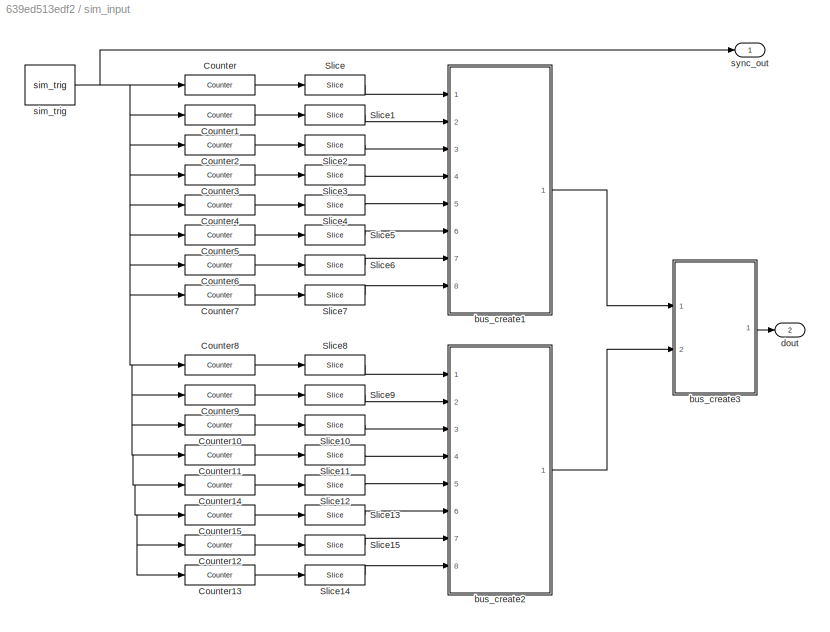
BLOCK [SubSystem] sim_input
  FunctionWithSeparateData = off
  MaskHideContents = off
  MinAlgLoopOccurrences = off
  Opaque = off
  Ports = [0, 2]
  PropExecContextOutsideSubsystem = off
  RTWSystemCode = Auto
  RequestExecContextInheritance = off
BLOCK [Reference] sim_input/Counter  REF=xbsIndex_r4/Counter
  Ports = [1, 1]
  SourceBlock = xbsIndex_r4/Counter
  SourceType = Xilinx Counter Block
  arith_type = Unsigned
  bin_pt = 0
  block_type = counter
  cnt_by_val = 8
  cnt_to = Inf
  cnt_type = Free Running
  dbl_ovrd = off
  en = off
  explicit_period = on
  has_advanced_control = 0
  implementation = Fabric
  infoedit = Hardware notes: Free running counters are the least expensive in hardware.  A count limited counter is implemented by combining a counter with a comparator.
  load_pin = off
  n_bits = 12
  operation = Up
  period = 1
  rst = on
  sg_icon_stat = 70,20,1,1,white,blue,0,803eba70,right,,[ ],[ ]
  sg_mask_display = fprintf('','COMMENT: begin icon graphics');\npatch([0 70 70 0 0 ],[0 0 20 20 0 ],[0.77 0.82 0.91 ]);\nplot([0 70 70 0 0 ],[0 0 20 20 0 ]);\npatch([30.55 33.44 35.44 37.44 39.44 35.44 32.55 30.55 ],[12.22 12.22 14.22 12.22 14.22 14.22 14.22 12.22 ],[1 1 1 ]);\npatch([32.55 35.44 33.44 30.55 32.55 ],[10.22 10.22 12.22 12.22 10.22 ],[0.931 0.946 0.973 ]);\npatch([30.55 33.44 35.44 32.55 30.55 ],[8.22 8.22...<+367ch>  <repeated x16 — deduplicated; at blocks: Counter, Counter1, Counter10, Counter11, Counter12, Counter13, Counter14, Counter15, Counter2, Counter3, Counter4, Counter5, Counter6, Counter7, Counter8, Counter9>
  sggui_pos = 482,36,481,773
  start_count = 0
  use_behavioral_HDL = off
  xl_area = [0,0,0,0,0,0,0]
  xl_use_area = off
BLOCK [Reference] sim_input/Counter1  REF=xbsIndex_r4/Counter
  Ports = [1, 1]
  SourceBlock = xbsIndex_r4/Counter
  SourceType = Xilinx Counter Block
  arith_type = Unsigned
  bin_pt = 0
  block_type = counter
  cnt_by_val = 8
  cnt_to = Inf
  cnt_type = Free Running
  dbl_ovrd = off
  en = off
  explicit_period = on
  has_advanced_control = 0
  implementation = Fabric
  infoedit = Hardware notes: Free running counters are the least expensive in hardware.  A count limited counter is implemented by combining a counter with a comparator.
  load_pin = off
  n_bits = 12
  operation = Up
  period = 1
  rst = on
  sg_icon_stat = 70,20,1,1,white,blue,0,803eba70,right,,[ ],[ ]
  sggui_pos = 482,36,481,773
  start_count = 1
  use_behavioral_HDL = off
  xl_area = [0,0,0,0,0,0,0]
  xl_use_area = off
BLOCK [Reference] sim_input/Counter10  REF=xbsIndex_r4/Counter
  Ports = [1, 1]
  SourceBlock = xbsIndex_r4/Counter
  SourceType = Xilinx Counter Block
  arith_type = Unsigned
  bin_pt = 0
  block_type = counter
  cnt_by_val = 8
  cnt_to = Inf
  cnt_type = Free Running
  dbl_ovrd = off
  en = off
  explicit_period = on
  has_advanced_control = 0
  implementation = Fabric
  infoedit = Hardware notes: Free running counters are the least expensive in hardware.  A count limited counter is implemented by combining a counter with a comparator.
  load_pin = off
  n_bits = 12
  operation = Down
  period = 1
  rst = on
  sg_icon_stat = 70,20,1,1,white,blue,0,d47ba05d,right,,[ ],[ ]
  sggui_pos = 468,22,481,773
  start_count = 2045
  use_behavioral_HDL = off
  xl_area = [0,0,0,0,0,0,0]
  xl_use_area = off
BLOCK [Reference] sim_input/Counter11  REF=xbsIndex_r4/Counter
  Ports = [1, 1]
  SourceBlock = xbsIndex_r4/Counter
  SourceType = Xilinx Counter Block
  arith_type = Unsigned
  bin_pt = 0
  block_type = counter
  cnt_by_val = 8
  cnt_to = Inf
  cnt_type = Free Running
  dbl_ovrd = off
  en = off
  explicit_period = on
  has_advanced_control = 0
  implementation = Fabric
  infoedit = Hardware notes: Free running counters are the least expensive in hardware.  A count limited counter is implemented by combining a counter with a comparator.
  load_pin = off
  n_bits = 12
  operation = Down
  period = 1
  rst = on
  sg_icon_stat = 70,20,1,1,white,blue,0,d47ba05d,right,,[ ],[ ]
  sggui_pos = 475,29,481,773
  start_count = 2044
  use_behavioral_HDL = off
  xl_area = [0,0,0,0,0,0,0]
  xl_use_area = off
BLOCK [Reference] sim_input/Counter12  REF=xbsIndex_r4/Counter
  Ports = [1, 1]
  SourceBlock = xbsIndex_r4/Counter
  SourceType = Xilinx Counter Block
  arith_type = Unsigned
  bin_pt = 0
  block_type = counter
  cnt_by_val = 8
  cnt_to = Inf
  cnt_type = Free Running
  dbl_ovrd = off
  en = off
  explicit_period = on
  has_advanced_control = 0
  implementation = Fabric
  infoedit = Hardware notes: Free running counters are the least expensive in hardware.  A count limited counter is implemented by combining a counter with a comparator.
  load_pin = off
  n_bits = 12
  operation = Down
  period = 1
  rst = on
  sg_icon_stat = 70,20,1,1,white,blue,0,d47ba05d,right,,[ ],[ ]
  sggui_pos = 475,29,481,773
  start_count = 2041
  use_behavioral_HDL = off
  xl_area = [0,0,0,0,0,0,0]
  xl_use_area = off
BLOCK [Reference] sim_input/Counter13  REF=xbsIndex_r4/Counter
  Ports = [1, 1]
  SourceBlock = xbsIndex_r4/Counter
  SourceType = Xilinx Counter Block
  arith_type = Unsigned
  bin_pt = 0
  block_type = counter
  cnt_by_val = 8
  cnt_to = Inf
  cnt_type = Free Running
  dbl_ovrd = off
  en = off
  explicit_period = on
  has_advanced_control = 0
  implementation = Fabric
  infoedit = Hardware notes: Free running counters are the least expensive in hardware.  A count limited counter is implemented by combining a counter with a comparator.
  load_pin = off
  n_bits = 12
  operation = Down
  period = 1
  rst = on
  sg_icon_stat = 70,20,1,1,white,blue,0,d47ba05d,right,,[ ],[ ]
  sggui_pos = 475,29,481,773
  start_count = 2040
  use_behavioral_HDL = off
  xl_area = [0,0,0,0,0,0,0]
  xl_use_area = off
BLOCK [Reference] sim_input/Counter14  REF=xbsIndex_r4/Counter
  Ports = [1, 1]
  SourceBlock = xbsIndex_r4/Counter
  SourceType = Xilinx Counter Block
  arith_type = Unsigned
  bin_pt = 0
  block_type = counter
  cnt_by_val = 8
  cnt_to = Inf
  cnt_type = Free Running
  dbl_ovrd = off
  en = off
  explicit_period = on
  has_advanced_control = 0
  implementation = Fabric
  infoedit = Hardware notes: Free running counters are the least expensive in hardware.  A count limited counter is implemented by combining a counter with a comparator.
  load_pin = off
  n_bits = 12
  operation = Down
  period = 1
  rst = on
  sg_icon_stat = 70,20,1,1,white,blue,0,d47ba05d,right,,[ ],[ ]
  sggui_pos = 475,29,481,773
  start_count = 2043
  use_behavioral_HDL = off
  xl_area = [0,0,0,0,0,0,0]
  xl_use_area = off
BLOCK [Reference] sim_input/Counter15  REF=xbsIndex_r4/Counter
  Ports = [1, 1]
  SourceBlock = xbsIndex_r4/Counter
  SourceType = Xilinx Counter Block
  arith_type = Unsigned
  bin_pt = 0
  block_type = counter
  cnt_by_val = 8
  cnt_to = Inf
  cnt_type = Free Running
  dbl_ovrd = off
  en = off
  explicit_period = on
  has_advanced_control = 0
  implementation = Fabric
  infoedit = Hardware notes: Free running counters are the least expensive in hardware.  A count limited counter is implemented by combining a counter with a comparator.
  load_pin = off
  n_bits = 12
  operation = Down
  period = 1
  rst = on
  sg_icon_stat = 70,20,1,1,white,blue,0,d47ba05d,right,,[ ],[ ]
  sggui_pos = 475,29,481,773
  start_count = 2042
  use_behavioral_HDL = off
  xl_area = [0,0,0,0,0,0,0]
  xl_use_area = off
BLOCK [Reference] sim_input/Counter2  REF=xbsIndex_r4/Counter
  Ports = [1, 1]
  SourceBlock = xbsIndex_r4/Counter
  SourceType = Xilinx Counter Block
  arith_type = Unsigned
  bin_pt = 0
  block_type = counter
  cnt_by_val = 8
  cnt_to = Inf
  cnt_type = Free Running
  dbl_ovrd = off
  en = off
  explicit_period = on
  has_advanced_control = 0
  implementation = Fabric
  infoedit = Hardware notes: Free running counters are the least expensive in hardware.  A count limited counter is implemented by combining a counter with a comparator.
  load_pin = off
  n_bits = 12
  operation = Up
  period = 1
  rst = on
  sg_icon_stat = 70,20,1,1,white,blue,0,803eba70,right,,[ ],[ ]
  sggui_pos = 482,36,481,773
  start_count = 2
  use_behavioral_HDL = off
  xl_area = [0,0,0,0,0,0,0]
  xl_use_area = off
BLOCK [Reference] sim_input/Counter3  REF=xbsIndex_r4/Counter
  Ports = [1, 1]
  SourceBlock = xbsIndex_r4/Counter
  SourceType = Xilinx Counter Block
  arith_type = Unsigned
  bin_pt = 0
  block_type = counter
  cnt_by_val = 8
  cnt_to = Inf
  cnt_type = Free Running
  dbl_ovrd = off
  en = off
  explicit_period = on
  has_advanced_control = 0
  implementation = Fabric
  infoedit = Hardware notes: Free running counters are the least expensive in hardware.  A count limited counter is implemented by combining a counter with a comparator.
  load_pin = off
  n_bits = 12
  operation = Up
  period = 1
  rst = on
  sg_icon_stat = 70,20,1,1,white,blue,0,803eba70,right,,[ ],[ ]
  sggui_pos = 482,36,481,773
  start_count = 3
  use_behavioral_HDL = off
  xl_area = [0,0,0,0,0,0,0]
  xl_use_area = off
BLOCK [Reference] sim_input/Counter4  REF=xbsIndex_r4/Counter
  Ports = [1, 1]
  SourceBlock = xbsIndex_r4/Counter
  SourceType = Xilinx Counter Block
  arith_type = Unsigned
  bin_pt = 0
  block_type = counter
  cnt_by_val = 8
  cnt_to = Inf
  cnt_type = Free Running
  dbl_ovrd = off
  en = off
  explicit_period = on
  has_advanced_control = 0
  implementation = Fabric
  infoedit = Hardware notes: Free running counters are the least expensive in hardware.  A count limited counter is implemented by combining a counter with a comparator.
  load_pin = off
  n_bits = 12
  operation = Up
  period = 1
  rst = on
  sg_icon_stat = 70,20,1,1,white,blue,0,803eba70,right,,[ ],[ ]
  sggui_pos = 482,36,481,773
  start_count = 4
  use_behavioral_HDL = off
  xl_area = [0,0,0,0,0,0,0]
  xl_use_area = off
BLOCK [Reference] sim_input/Counter5  REF=xbsIndex_r4/Counter
  Ports = [1, 1]
  SourceBlock = xbsIndex_r4/Counter
  SourceType = Xilinx Counter Block
  arith_type = Unsigned
  bin_pt = 0
  block_type = counter
  cnt_by_val = 8
  cnt_to = Inf
  cnt_type = Free Running
  dbl_ovrd = off
  en = off
  explicit_period = on
  has_advanced_control = 0
  implementation = Fabric
  infoedit = Hardware notes: Free running counters are the least expensive in hardware.  A count limited counter is implemented by combining a counter with a comparator.
  load_pin = off
  n_bits = 12
  operation = Up
  period = 1
  rst = on
  sg_icon_stat = 70,20,1,1,white,blue,0,803eba70,right,,[ ],[ ]
  sggui_pos = 482,36,481,773
  start_count = 5
  use_behavioral_HDL = off
  xl_area = [0,0,0,0,0,0,0]
  xl_use_area = off
BLOCK [Reference] sim_input/Counter6  REF=xbsIndex_r4/Counter
  Ports = [1, 1]
  SourceBlock = xbsIndex_r4/Counter
  SourceType = Xilinx Counter Block
  arith_type = Unsigned
  bin_pt = 0
  block_type = counter
  cnt_by_val = 8
  cnt_to = Inf
  cnt_type = Free Running
  dbl_ovrd = off
  en = off
  explicit_period = on
  has_advanced_control = 0
  implementation = Fabric
  infoedit = Hardware notes: Free running counters are the least expensive in hardware.  A count limited counter is implemented by combining a counter with a comparator.
  load_pin = off
  n_bits = 12
  operation = Up
  period = 1
  rst = on
  sg_icon_stat = 70,20,1,1,white,blue,0,803eba70,right,,[ ],[ ]
  sggui_pos = 482,36,481,773
  start_count = 6
  use_behavioral_HDL = off
  xl_area = [0,0,0,0,0,0,0]
  xl_use_area = off
BLOCK [Reference] sim_input/Counter7  REF=xbsIndex_r4/Counter
  Ports = [1, 1]
  SourceBlock = xbsIndex_r4/Counter
  SourceType = Xilinx Counter Block
  arith_type = Unsigned
  bin_pt = 0
  block_type = counter
  cnt_by_val = 8
  cnt_to = Inf
  cnt_type = Free Running
  dbl_ovrd = off
  en = off
  explicit_period = on
  has_advanced_control = 0
  implementation = Fabric
  infoedit = Hardware notes: Free running counters are the least expensive in hardware.  A count limited counter is implemented by combining a counter with a comparator.
  load_pin = off
  n_bits = 12
  operation = Up
  period = 1
  rst = on
  sg_icon_stat = 70,20,1,1,white,blue,0,803eba70,right,,[ ],[ ]
  sggui_pos = 482,36,481,773
  start_count = 7
  use_behavioral_HDL = off
  xl_area = [0,0,0,0,0,0,0]
  xl_use_area = off
BLOCK [Reference] sim_input/Counter8  REF=xbsIndex_r4/Counter
  Ports = [1, 1]
  SourceBlock = xbsIndex_r4/Counter
  SourceType = Xilinx Counter Block
  arith_type = Unsigned
  bin_pt = 0
  block_type = counter
  cnt_by_val = 8
  cnt_to = Inf
  cnt_type = Free Running
  dbl_ovrd = off
  en = off
  explicit_period = on
  has_advanced_control = 0
  implementation = Fabric
  infoedit = Hardware notes: Free running counters are the least expensive in hardware.  A count limited counter is implemented by combining a counter with a comparator.
  load_pin = off
  n_bits = 12
  operation = Down
  period = 1
  rst = on
  sg_icon_stat = 70,20,1,1,white,blue,0,d47ba05d,right,,[ ],[ ]
  sggui_pos = 482,36,481,773
  start_count = 2047
  use_behavioral_HDL = off
  xl_area = [0,0,0,0,0,0,0]
  xl_use_area = off
BLOCK [Reference] sim_input/Counter9  REF=xbsIndex_r4/Counter
  Ports = [1, 1]
  SourceBlock = xbsIndex_r4/Counter
  SourceType = Xilinx Counter Block
  arith_type = Unsigned
  bin_pt = 0
  block_type = counter
  cnt_by_val = 8
  cnt_to = Inf
  cnt_type = Free Running
  dbl_ovrd = off
  en = off
  explicit_period = on
  has_advanced_control = 0
  implementation = Fabric
  infoedit = Hardware notes: Free running counters are the least expensive in hardware.  A count limited counter is implemented by combining a counter with a comparator.
  load_pin = off
  n_bits = 12
  operation = Down
  period = 1
  rst = on
  sg_icon_stat = 70,20,1,1,white,blue,0,d47ba05d,right,,[ ],[ ]
  sggui_pos = 475,29,481,773
  start_count = 2046
  use_behavioral_HDL = off
  xl_area = [0,0,0,0,0,0,0]
  xl_use_area = off
BLOCK [Reference] sim_input/Slice  REF=xbsIndex_r4/Slice
  Ports = [1, 1]
  SourceBlock = xbsIndex_r4/Slice
  SourceType = Xilinx Bit Slice Extractor Block
  base0 = LSB of Input
  base1 = MSB of Input
  bit0 = 0
  bit1 = 0
  block_type = slice
  block_version = 11.4
  boolean_output = off
  dbl_ovrd = off
  has_advanced_control = 0
  mode = Lower Bit Location + Width
  nbits = 8
  sg_icon_stat = 60,20,1,1,white,blue,0,1fd851a7,right,,[ ],[ ]
  sg_mask_display = fprintf('','COMMENT: begin icon graphics');\npatch([0 60 60 0 0 ],[0 0 20 20 0 ],[0.77 0.82 0.91 ]);\nplot([0 60 60 0 0 ],[0 0 20 20 0 ]);\npatch([25.55 28.44 30.44 32.44 34.44 30.44 27.55 25.55 ],[12.22 12.22 14.22 12.22 14.22 14.22 14.22 12.22 ],[1 1 1 ]);\npatch([27.55 30.44 28.44 25.55 27.55 ],[10.22 10.22 12.22 12.22 10.22 ],[0.931 0.946 0.973 ]);\npatch([25.55 28.44 30.44 27.55 25.55 ],[8.22 8.22...<+310ch>  <repeated x16 — deduplicated; at blocks: Slice, Slice1, Slice10, Slice11, Slice12, Slice13, Slice14, Slice15, Slice2, Slice3, Slice4, Slice5, Slice6, Slice7, Slice8, Slice9>
  sggui_pos = 13,17,633,621
BLOCK [Reference] sim_input/Slice1  REF=xbsIndex_r4/Slice
  Ports = [1, 1]
  SourceBlock = xbsIndex_r4/Slice
  SourceType = Xilinx Bit Slice Extractor Block
  base0 = LSB of Input
  base1 = MSB of Input
  bit0 = 0
  bit1 = 0
  block_type = slice
  block_version = 11.4
  boolean_output = off
  dbl_ovrd = off
  has_advanced_control = 0
  mode = Lower Bit Location + Width
  nbits = 8
  sg_icon_stat = 60,20,1,1,white,blue,0,1fd851a7,right,,[ ],[ ]
  sggui_pos = 13,17,633,621
BLOCK [Reference] sim_input/Slice10  REF=xbsIndex_r4/Slice
  Ports = [1, 1]
  SourceBlock = xbsIndex_r4/Slice
  SourceType = Xilinx Bit Slice Extractor Block
  base0 = LSB of Input
  base1 = MSB of Input
  bit0 = 0
  bit1 = 0
  block_type = slice
  block_version = 11.4
  boolean_output = off
  dbl_ovrd = off
  has_advanced_control = 0
  mode = Lower Bit Location + Width
  nbits = 8
  sg_icon_stat = 60,20,1,1,white,blue,0,1fd851a7,right,,[ ],[ ]
  sggui_pos = 13,17,633,621
BLOCK [Reference] sim_input/Slice11  REF=xbsIndex_r4/Slice
  Ports = [1, 1]
  SourceBlock = xbsIndex_r4/Slice
  SourceType = Xilinx Bit Slice Extractor Block
  base0 = LSB of Input
  base1 = MSB of Input
  bit0 = 0
  bit1 = 0
  block_type = slice
  block_version = 11.4
  boolean_output = off
  dbl_ovrd = off
  has_advanced_control = 0
  mode = Lower Bit Location + Width
  nbits = 8
  sg_icon_stat = 60,20,1,1,white,blue,0,1fd851a7,right,,[ ],[ ]
  sggui_pos = 13,17,633,621
BLOCK [Reference] sim_input/Slice12  REF=xbsIndex_r4/Slice
  Ports = [1, 1]
  SourceBlock = xbsIndex_r4/Slice
  SourceType = Xilinx Bit Slice Extractor Block
  base0 = LSB of Input
  base1 = MSB of Input
  bit0 = 0
  bit1 = 0
  block_type = slice
  block_version = 11.4
  boolean_output = off
  dbl_ovrd = off
  has_advanced_control = 0
  mode = Lower Bit Location + Width
  nbits = 8
  sg_icon_stat = 60,20,1,1,white,blue,0,1fd851a7,right,,[ ],[ ]
  sggui_pos = 13,17,633,621
BLOCK [Reference] sim_input/Slice13  REF=xbsIndex_r4/Slice
  Ports = [1, 1]
  SourceBlock = xbsIndex_r4/Slice
  SourceType = Xilinx Bit Slice Extractor Block
  base0 = LSB of Input
  base1 = MSB of Input
  bit0 = 0
  bit1 = 0
  block_type = slice
  block_version = 11.4
  boolean_output = off
  dbl_ovrd = off
  has_advanced_control = 0
  mode = Lower Bit Location + Width
  nbits = 8
  sg_icon_stat = 60,20,1,1,white,blue,0,1fd851a7,right,,[ ],[ ]
  sggui_pos = 13,17,633,621
BLOCK [Reference] sim_input/Slice14  REF=xbsIndex_r4/Slice
  Ports = [1, 1]
  SourceBlock = xbsIndex_r4/Slice
  SourceType = Xilinx Bit Slice Extractor Block
  base0 = LSB of Input
  base1 = MSB of Input
  bit0 = 0
  bit1 = 0
  block_type = slice
  block_version = 11.4
  boolean_output = off
  dbl_ovrd = off
  has_advanced_control = 0
  mode = Lower Bit Location + Width
  nbits = 8
  sg_icon_stat = 60,20,1,1,white,blue,0,1fd851a7,right,,[ ],[ ]
  sggui_pos = 13,17,633,621
BLOCK [Reference] sim_input/Slice15  REF=xbsIndex_r4/Slice
  Ports = [1, 1]
  SourceBlock = xbsIndex_r4/Slice
  SourceType = Xilinx Bit Slice Extractor Block
  base0 = LSB of Input
  base1 = MSB of Input
  bit0 = 0
  bit1 = 0
  block_type = slice
  block_version = 11.4
  boolean_output = off
  dbl_ovrd = off
  has_advanced_control = 0
  mode = Lower Bit Location + Width
  nbits = 8
  sg_icon_stat = 60,20,1,1,white,blue,0,1fd851a7,right,,[ ],[ ]
  sggui_pos = 13,17,633,621
BLOCK [Reference] sim_input/Slice2  REF=xbsIndex_r4/Slice
  Ports = [1, 1]
  SourceBlock = xbsIndex_r4/Slice
  SourceType = Xilinx Bit Slice Extractor Block
  base0 = LSB of Input
  base1 = MSB of Input
  bit0 = 0
  bit1 = 0
  block_type = slice
  block_version = 11.4
  boolean_output = off
  dbl_ovrd = off
  has_advanced_control = 0
  mode = Lower Bit Location + Width
  nbits = 8
  sg_icon_stat = 60,20,1,1,white,blue,0,1fd851a7,right,,[ ],[ ]
  sggui_pos = 13,17,633,621
BLOCK [Reference] sim_input/Slice3  REF=xbsIndex_r4/Slice
  Ports = [1, 1]
  SourceBlock = xbsIndex_r4/Slice
  SourceType = Xilinx Bit Slice Extractor Block
  base0 = LSB of Input
  base1 = MSB of Input
  bit0 = 0
  bit1 = 0
  block_type = slice
  block_version = 11.4
  boolean_output = off
  dbl_ovrd = off
  has_advanced_control = 0
  mode = Lower Bit Location + Width
  nbits = 8
  sg_icon_stat = 60,20,1,1,white,blue,0,1fd851a7,right,,[ ],[ ]
  sggui_pos = 13,17,633,621
BLOCK [Reference] sim_input/Slice4  REF=xbsIndex_r4/Slice
  Ports = [1, 1]
  SourceBlock = xbsIndex_r4/Slice
  SourceType = Xilinx Bit Slice Extractor Block
  base0 = LSB of Input
  base1 = MSB of Input
  bit0 = 0
  bit1 = 0
  block_type = slice
  block_version = 11.4
  boolean_output = off
  dbl_ovrd = off
  has_advanced_control = 0
  mode = Lower Bit Location + Width
  nbits = 8
  sg_icon_stat = 60,20,1,1,white,blue,0,1fd851a7,right,,[ ],[ ]
  sggui_pos = 13,17,633,621
BLOCK [Reference] sim_input/Slice5  REF=xbsIndex_r4/Slice
  Ports = [1, 1]
  SourceBlock = xbsIndex_r4/Slice
  SourceType = Xilinx Bit Slice Extractor Block
  base0 = LSB of Input
  base1 = MSB of Input
  bit0 = 0
  bit1 = 0
  block_type = slice
  block_version = 11.4
  boolean_output = off
  dbl_ovrd = off
  has_advanced_control = 0
  mode = Lower Bit Location + Width
  nbits = 8
  sg_icon_stat = 60,20,1,1,white,blue,0,1fd851a7,right,,[ ],[ ]
  sggui_pos = 13,17,633,621
BLOCK [Reference] sim_input/Slice6  REF=xbsIndex_r4/Slice
  Ports = [1, 1]
  SourceBlock = xbsIndex_r4/Slice
  SourceType = Xilinx Bit Slice Extractor Block
  base0 = LSB of Input
  base1 = MSB of Input
  bit0 = 0
  bit1 = 0
  block_type = slice
  block_version = 11.4
  boolean_output = off
  dbl_ovrd = off
  has_advanced_control = 0
  mode = Lower Bit Location + Width
  nbits = 8
  sg_icon_stat = 60,20,1,1,white,blue,0,1fd851a7,right,,[ ],[ ]
  sggui_pos = 13,17,633,621
BLOCK [Reference] sim_input/Slice7  REF=xbsIndex_r4/Slice
  Ports = [1, 1]
  SourceBlock = xbsIndex_r4/Slice
  SourceType = Xilinx Bit Slice Extractor Block
  base0 = LSB of Input
  base1 = MSB of Input
  bit0 = 0
  bit1 = 0
  block_type = slice
  block_version = 11.4
  boolean_output = off
  dbl_ovrd = off
  has_advanced_control = 0
  mode = Lower Bit Location + Width
  nbits = 8
  sg_icon_stat = 60,20,1,1,white,blue,0,1fd851a7,right,,[ ],[ ]
  sggui_pos = 13,17,633,621
BLOCK [Reference] sim_input/Slice8  REF=xbsIndex_r4/Slice
  Ports = [1, 1]
  SourceBlock = xbsIndex_r4/Slice
  SourceType = Xilinx Bit Slice Extractor Block
  base0 = LSB of Input
  base1 = MSB of Input
  bit0 = 0
  bit1 = 0
  block_type = slice
  block_version = 11.4
  boolean_output = off
  dbl_ovrd = off
  has_advanced_control = 0
  mode = Lower Bit Location + Width
  nbits = 8
  sg_icon_stat = 60,20,1,1,white,blue,0,1fd851a7,right,,[ ],[ ]
  sggui_pos = 13,17,633,621
BLOCK [Reference] sim_input/Slice9  REF=xbsIndex_r4/Slice
  Ports = [1, 1]
  SourceBlock = xbsIndex_r4/Slice
  SourceType = Xilinx Bit Slice Extractor Block
  base0 = LSB of Input
  base1 = MSB of Input
  bit0 = 0
  bit1 = 0
  block_type = slice
  block_version = 11.4
  boolean_output = off
  dbl_ovrd = off
  has_advanced_control = 0
  mode = Lower Bit Location + Width
  nbits = 8
  sg_icon_stat = 60,20,1,1,white,blue,0,1fd851a7,right,,[ ],[ ]
  sggui_pos = 13,17,633,621
BLOCK [SubSystem] sim_input/bus_create1
  AncestorBlock = casper_library_flow_control/bus_create
  FunctionWithSeparateData = off
  MaskHideContents = off
  MinAlgLoopOccurrences = off
  Opaque = off
  Ports = [8, 1]
  PropExecContextOutsideSubsystem = off
  RTWSystemCode = Auto
  RequestExecContextInheritance = off
  UserDataPersistent = on
BLOCK [Outport] sim_input/bus_create1/bus_out
  IconDisplay = Port number
BLOCK [Reference] sim_input/bus_create1/concatenate  REF=xbsIndex_r4/Concat
  Ports = [8, 1]
  SourceBlock = xbsIndex_r4/Concat
  SourceType = Xilinx Bus Concatenator Block
  block_type = concat
  block_version = 11.4
  dbl_ovrd = off
  has_advanced_control = 0
  infoedit = Concatenates two or more inputs.  Output will be cast to an unsigned value with the binary point at zero.
  num_inputs = 8
  sg_icon_stat = 50,301,8,1,white,blue,0,6fe74153,right,,[ ],[ ]
  sg_mask_display = fprintf('','COMMENT: begin icon graphics');\npatch([0 50 50 0 0 ],[0 0 301 301 0 ],[0.77 0.82 0.91 ]);\nplot([0 50 50 0 0 ],[0 0 301 301 0 ]);\npatch([9.425 19.54 26.54 33.54 40.54 26.54 16.425 9.425 ],[157.77 157.77 164.77 157.77 164.77 164.77 164.77 157.77 ],[1 1 1 ]);\npatch([16.425 26.54 19.54 9.425 16.425 ],[150.77 150.77 157.77 157.77 150.77 ],[0.931 0.946 0.973 ]);\npatch([9.425 19.54 26.54 16.4...<+455ch>
  sggui_pos = -1,-1,-1,-1
BLOCK [Inport] sim_input/bus_create1/in1
  IconDisplay = Port number
BLOCK [Inport] sim_input/bus_create1/in2
  IconDisplay = Port number
  Port = 2
BLOCK [Inport] sim_input/bus_create1/in3
  IconDisplay = Port number
  Port = 3
BLOCK [Inport] sim_input/bus_create1/in4
  IconDisplay = Port number
  Port = 4
BLOCK [Inport] sim_input/bus_create1/in5
  IconDisplay = Port number
  Port = 5
BLOCK [Inport] sim_input/bus_create1/in6
  IconDisplay = Port number
  Port = 6
BLOCK [Inport] sim_input/bus_create1/in7
  IconDisplay = Port number
  Port = 7
BLOCK [Inport] sim_input/bus_create1/in8
  IconDisplay = Port number
  Port = 8
BLOCK [Reference] sim_input/bus_create1/reinterpret1  REF=xbsIndex_r4/Reinterpret
  Ports = [1, 1]
  SourceBlock = xbsIndex_r4/Reinterpret
  SourceType = Xilinx Type Reinterpreter Block
  arith_type = Unsigned
  bin_pt = 0
  block_type = reinterpret
  block_version = 11.4
  force_arith_type = on
  force_bin_pt = on
  has_advanced_control = 0
  sg_icon_stat = 50,20,1,1,white,blue,0,6b04d0b0,right,,[ ],[ ]
  sggui_pos = -1,-1,-1,-1
BLOCK [Reference] sim_input/bus_create1/reinterpret2  REF=xbsIndex_r4/Reinterpret
  Ports = [1, 1]
  SourceBlock = xbsIndex_r4/Reinterpret
  SourceType = Xilinx Type Reinterpreter Block
  arith_type = Unsigned
  bin_pt = 0
  block_type = reinterpret
  block_version = 11.4
  force_arith_type = on
  force_bin_pt = on
  has_advanced_control = 0
  sg_icon_stat = 50,20,1,1,white,blue,0,6b04d0b0,right,,[ ],[ ]
  sggui_pos = 281,224,671,460
BLOCK [Reference] sim_input/bus_create1/reinterpret3  REF=xbsIndex_r4/Reinterpret
  Ports = [1, 1]
  SourceBlock = xbsIndex_r4/Reinterpret
  SourceType = Xilinx Type Reinterpreter Block
  arith_type = Unsigned
  bin_pt = 0
  block_type = reinterpret
  force_arith_type = on
  force_bin_pt = on
  has_advanced_control = 0
  sg_icon_stat = 50,20,1,1,white,blue,0,6b04d0b0,right,,[ ],[ ]
  sggui_pos = -1,-1,-1,-1
BLOCK [Reference] sim_input/bus_create1/reinterpret4  REF=xbsIndex_r4/Reinterpret
  Ports = [1, 1]
  SourceBlock = xbsIndex_r4/Reinterpret
  SourceType = Xilinx Type Reinterpreter Block
  arith_type = Unsigned
  bin_pt = 0
  block_type = reinterpret
  force_arith_type = on
  force_bin_pt = on
  has_advanced_control = 0
  sg_icon_stat = 50,20,1,1,white,blue,0,6b04d0b0,right,,[ ],[ ]
  sggui_pos = -1,-1,-1,-1
BLOCK [Reference] sim_input/bus_create1/reinterpret5  REF=xbsIndex_r4/Reinterpret
  Ports = [1, 1]
  SourceBlock = xbsIndex_r4/Reinterpret
  SourceType = Xilinx Type Reinterpreter Block
  arith_type = Unsigned
  bin_pt = 0
  block_type = reinterpret
  force_arith_type = on
  force_bin_pt = on
  has_advanced_control = 0
  sg_icon_stat = 50,20,1,1,white,blue,0,6b04d0b0,right,,[ ],[ ]
  sggui_pos = -1,-1,-1,-1
BLOCK [Reference] sim_input/bus_create1/reinterpret6  REF=xbsIndex_r4/Reinterpret
  Ports = [1, 1]
  SourceBlock = xbsIndex_r4/Reinterpret
  SourceType = Xilinx Type Reinterpreter Block
  arith_type = Unsigned
  bin_pt = 0
  block_type = reinterpret
  force_arith_type = on
  force_bin_pt = on
  has_advanced_control = 0
  sg_icon_stat = 50,20,1,1,white,blue,0,6b04d0b0,right,,[ ],[ ]
  sggui_pos = -1,-1,-1,-1
BLOCK [Reference] sim_input/bus_create1/reinterpret7  REF=xbsIndex_r4/Reinterpret
  Ports = [1, 1]
  SourceBlock = xbsIndex_r4/Reinterpret
  SourceType = Xilinx Type Reinterpreter Block
  arith_type = Unsigned
  bin_pt = 0
  block_type = reinterpret
  force_arith_type = on
  force_bin_pt = on
  has_advanced_control = 0
  sg_icon_stat = 50,20,1,1,white,blue,0,6b04d0b0,right,,[ ],[ ]
  sggui_pos = -1,-1,-1,-1
BLOCK [Reference] sim_input/bus_create1/reinterpret8  REF=xbsIndex_r4/Reinterpret
  Ports = [1, 1]
  SourceBlock = xbsIndex_r4/Reinterpret
  SourceType = Xilinx Type Reinterpreter Block
  arith_type = Unsigned
  bin_pt = 0
  block_type = reinterpret
  force_arith_type = on
  force_bin_pt = on
  has_advanced_control = 0
  sg_icon_stat = 50,20,1,1,white,blue,0,6b04d0b0,right,,[ ],[ ]
  sggui_pos = -1,-1,-1,-1
BLOCK [SubSystem] sim_input/bus_create2
  AncestorBlock = casper_library_flow_control/bus_create
  FunctionWithSeparateData = off
  MaskHideContents = off
  MinAlgLoopOccurrences = off
  Opaque = off
  Ports = [8, 1]
  PropExecContextOutsideSubsystem = off
  RTWSystemCode = Auto
  RequestExecContextInheritance = off
  UserDataPersistent = on
BLOCK [Outport] sim_input/bus_create2/bus_out
  IconDisplay = Port number
BLOCK [Reference] sim_input/bus_create2/concatenate  REF=xbsIndex_r4/Concat
  Ports = [8, 1]
  SourceBlock = xbsIndex_r4/Concat
  SourceType = Xilinx Bus Concatenator Block
  block_type = concat
  block_version = 11.4
  dbl_ovrd = off
  has_advanced_control = 0
  infoedit = Concatenates two or more inputs.  Output will be cast to an unsigned value with the binary point at zero.
  num_inputs = 8
  sg_icon_stat = 50,301,8,1,white,blue,0,6fe74153,right,,[ ],[ ]
  sg_mask_display = fprintf('','COMMENT: begin icon graphics');\npatch([0 50 50 0 0 ],[0 0 301 301 0 ],[0.77 0.82 0.91 ]);\nplot([0 50 50 0 0 ],[0 0 301 301 0 ]);\npatch([9.425 19.54 26.54 33.54 40.54 26.54 16.425 9.425 ],[157.77 157.77 164.77 157.77 164.77 164.77 164.77 157.77 ],[1 1 1 ]);\npatch([16.425 26.54 19.54 9.425 16.425 ],[150.77 150.77 157.77 157.77 150.77 ],[0.931 0.946 0.973 ]);\npatch([9.425 19.54 26.54 16.4...<+455ch>
  sggui_pos = -1,-1,-1,-1
BLOCK [Inport] sim_input/bus_create2/in1
  IconDisplay = Port number
BLOCK [Inport] sim_input/bus_create2/in2
  IconDisplay = Port number
  Port = 2
BLOCK [Inport] sim_input/bus_create2/in3
  IconDisplay = Port number
  Port = 3
BLOCK [Inport] sim_input/bus_create2/in4
  IconDisplay = Port number
  Port = 4
BLOCK [Inport] sim_input/bus_create2/in5
  IconDisplay = Port number
  Port = 5
BLOCK [Inport] sim_input/bus_create2/in6
  IconDisplay = Port number
  Port = 6
BLOCK [Inport] sim_input/bus_create2/in7
  IconDisplay = Port number
  Port = 7
BLOCK [Inport] sim_input/bus_create2/in8
  IconDisplay = Port number
  Port = 8
BLOCK [Reference] sim_input/bus_create2/reinterpret1  REF=xbsIndex_r4/Reinterpret
  Ports = [1, 1]
  SourceBlock = xbsIndex_r4/Reinterpret
  SourceType = Xilinx Type Reinterpreter Block
  arith_type = Unsigned
  bin_pt = 0
  block_type = reinterpret
  block_version = 11.4
  force_arith_type = on
  force_bin_pt = on
  has_advanced_control = 0
  sg_icon_stat = 50,20,1,1,white,blue,0,6b04d0b0,right,,[ ],[ ]
  sggui_pos = -1,-1,-1,-1
BLOCK [Reference] sim_input/bus_create2/reinterpret2  REF=xbsIndex_r4/Reinterpret
  Ports = [1, 1]
  SourceBlock = xbsIndex_r4/Reinterpret
  SourceType = Xilinx Type Reinterpreter Block
  arith_type = Unsigned
  bin_pt = 0
  block_type = reinterpret
  block_version = 11.4
  force_arith_type = on
  force_bin_pt = on
  has_advanced_control = 0
  sg_icon_stat = 50,20,1,1,white,blue,0,6b04d0b0,right,,[ ],[ ]
  sggui_pos = 281,224,671,460
BLOCK [Reference] sim_input/bus_create2/reinterpret3  REF=xbsIndex_r4/Reinterpret
  Ports = [1, 1]
  SourceBlock = xbsIndex_r4/Reinterpret
  SourceType = Xilinx Type Reinterpreter Block
  arith_type = Unsigned
  bin_pt = 0
  block_type = reinterpret
  force_arith_type = on
  force_bin_pt = on
  has_advanced_control = 0
  sg_icon_stat = 50,20,1,1,white,blue,0,6b04d0b0,right,,[ ],[ ]
  sggui_pos = -1,-1,-1,-1
BLOCK [Reference] sim_input/bus_create2/reinterpret4  REF=xbsIndex_r4/Reinterpret
  Ports = [1, 1]
  SourceBlock = xbsIndex_r4/Reinterpret
  SourceType = Xilinx Type Reinterpreter Block
  arith_type = Unsigned
  bin_pt = 0
  block_type = reinterpret
  force_arith_type = on
  force_bin_pt = on
  has_advanced_control = 0
  sg_icon_stat = 50,20,1,1,white,blue,0,6b04d0b0,right,,[ ],[ ]
  sggui_pos = -1,-1,-1,-1
BLOCK [Reference] sim_input/bus_create2/reinterpret5  REF=xbsIndex_r4/Reinterpret
  Ports = [1, 1]
  SourceBlock = xbsIndex_r4/Reinterpret
  SourceType = Xilinx Type Reinterpreter Block
  arith_type = Unsigned
  bin_pt = 0
  block_type = reinterpret
  force_arith_type = on
  force_bin_pt = on
  has_advanced_control = 0
  sg_icon_stat = 50,20,1,1,white,blue,0,6b04d0b0,right,,[ ],[ ]
  sggui_pos = -1,-1,-1,-1
BLOCK [Reference] sim_input/bus_create2/reinterpret6  REF=xbsIndex_r4/Reinterpret
  Ports = [1, 1]
  SourceBlock = xbsIndex_r4/Reinterpret
  SourceType = Xilinx Type Reinterpreter Block
  arith_type = Unsigned
  bin_pt = 0
  block_type = reinterpret
  force_arith_type = on
  force_bin_pt = on
  has_advanced_control = 0
  sg_icon_stat = 50,20,1,1,white,blue,0,6b04d0b0,right,,[ ],[ ]
  sggui_pos = -1,-1,-1,-1
BLOCK [Reference] sim_input/bus_create2/reinterpret7  REF=xbsIndex_r4/Reinterpret
  Ports = [1, 1]
  SourceBlock = xbsIndex_r4/Reinterpret
  SourceType = Xilinx Type Reinterpreter Block
  arith_type = Unsigned
  bin_pt = 0
  block_type = reinterpret
  force_arith_type = on
  force_bin_pt = on
  has_advanced_control = 0
  sg_icon_stat = 50,20,1,1,white,blue,0,6b04d0b0,right,,[ ],[ ]
  sggui_pos = -1,-1,-1,-1
BLOCK [Reference] sim_input/bus_create2/reinterpret8  REF=xbsIndex_r4/Reinterpret
  Ports = [1, 1]
  SourceBlock = xbsIndex_r4/Reinterpret
  SourceType = Xilinx Type Reinterpreter Block
  arith_type = Unsigned
  bin_pt = 0
  block_type = reinterpret
  force_arith_type = on
  force_bin_pt = on
  has_advanced_control = 0
  sg_icon_stat = 50,20,1,1,white,blue,0,6b04d0b0,right,,[ ],[ ]
  sggui_pos = -1,-1,-1,-1
BLOCK [SubSystem] sim_input/bus_create3
  AncestorBlock = casper_library_flow_control/bus_create
  FunctionWithSeparateData = off
  MaskHideContents = off
  MinAlgLoopOccurrences = off
  Opaque = off
  Ports = [2, 1]
  PropExecContextOutsideSubsystem = off
  RTWSystemCode = Auto
  RequestExecContextInheritance = off
  UserDataPersistent = on
BLOCK [Outport] sim_input/bus_create3/bus_out
  IconDisplay = Port number
BLOCK [Reference] sim_input/bus_create3/concatenate  REF=xbsIndex_r4/Concat
  Ports = [2, 1]
  SourceBlock = xbsIndex_r4/Concat
  SourceType = Xilinx Bus Concatenator Block
  block_type = concat
  block_version = 11.4
  dbl_ovrd = off
  has_advanced_control = 0
  infoedit = Concatenates two or more inputs.  Output will be cast to an unsigned value with the binary point at zero.
  num_inputs = 2
  sg_icon_stat = 50,62,2,1,white,blue,0,16398980,right,,[ ],[ ]
  sggui_pos = -1,-1,-1,-1
BLOCK [Inport] sim_input/bus_create3/in1
  IconDisplay = Port number
BLOCK [Inport] sim_input/bus_create3/in2
  IconDisplay = Port number
  Port = 2
BLOCK [Reference] sim_input/bus_create3/reinterpret1  REF=xbsIndex_r4/Reinterpret
  Ports = [1, 1]
  SourceBlock = xbsIndex_r4/Reinterpret
  SourceType = Xilinx Type Reinterpreter Block
  arith_type = Unsigned
  bin_pt = 0
  block_type = reinterpret
  block_version = 11.4
  force_arith_type = on
  force_bin_pt = on
  has_advanced_control = 0
  sg_icon_stat = 50,20,1,1,white,blue,0,6b04d0b0,right,,[ ],[ ]
  sggui_pos = -1,-1,-1,-1
BLOCK [Reference] sim_input/bus_create3/reinterpret2  REF=xbsIndex_r4/Reinterpret
  Ports = [1, 1]
  SourceBlock = xbsIndex_r4/Reinterpret
  SourceType = Xilinx Type Reinterpreter Block
  arith_type = Unsigned
  bin_pt = 0
  block_type = reinterpret
  block_version = 11.4
  force_arith_type = on
  force_bin_pt = on
  has_advanced_control = 0
  sg_icon_stat = 50,20,1,1,white,blue,0,6b04d0b0,right,,[ ],[ ]
  sggui_pos = 281,224,671,460
BLOCK [Outport] sim_input/dout
  IconDisplay = Port number
  Port = 2
BLOCK [Reference] sim_input/sim_trig  REF=ox_lib/sim_trig
  Ports = [0, 1]
  SourceBlock = ox_lib/sim_trig
  SourceType = Unknown
  delay = 16
BLOCK [Outport] sim_input/sync_out
  IconDisplay = Port number
BLOCK [SubSystem] square_transposer1
  AncestorBlock = casper_library_reorder/square_transposer
  AttributesFormatString = n_inputs=1
  FunctionWithSeparateData = off
  MaskHideContents = off
  MinAlgLoopOccurrences = off
  Opaque = off
  Ports = [3, 3]
  PropExecContextOutsideSubsystem = off
  RTWSystemCode = Auto
  RequestExecContextInheritance = off
  UserDataPersistent = on
BLOCK [SubSystem] square_transposer1/barrel_switcher
  AncestorBlock = casper_library_reorder/barrel_switcher
  FunctionWithSeparateData = off
  MaskHideContents = off
  MinAlgLoopOccurrences = off
  Opaque = off
  Ports = [4, 3]
  PropExecContextOutsideSubsystem = off
  RTWSystemCode = Auto
  RequestExecContextInheritance = off
  UserDataPersistent = on
BLOCK [Reference] square_transposer1/barrel_switcher/Delay_sync  REF=xbsIndex_r4/Delay
  Ports = [1, 1]
  SourceBlock = xbsIndex_r4/Delay
  SourceType = Xilinx Delay Block
  block_type = delay
  dbl_ovrd = off
  en = off
  has_advanced_control = 0
  infoedit = Hardware notes: A delay line is a chain, each link of which is an SRL16 followed by a flip-flop.
  infoeditControl = Selection of Reset will increase slice count due to use of real FFs and instead of SRLs
  latency = 1
  reg_retiming = on
  rst = off
  sg_icon_stat = 30,14,1,1,white,blue,0,07b98262,right,,[ ],[ ]
  sggui_pos = -1,-1,-1,-1
  xl_area = [0,0,0,0,0,0,0]
  xl_use_area = off
BLOCK [Inport] square_transposer1/barrel_switcher/In1
  IconDisplay = Port number
  Port = 3
BLOCK [Inport] square_transposer1/barrel_switcher/In2
  IconDisplay = Port number
  Port = 4
BLOCK [Reference] square_transposer1/barrel_switcher/Mux11  REF=xbsIndex_r4/Mux
  Ports = [3, 1]
  SourceBlock = xbsIndex_r4/Mux
  SourceType = Xilinx Bus Multiplexer Block
  arith_type = Unsigned
  bin_pt = 14
  block_type = mux
  dbl_ovrd = off
  en = off
  has_advanced_control = 0
  inputs = 2
  latency = 1
  n_bits = 16
  overflow = Wrap
  precision = Full
  quantization = Truncate
  sg_icon_stat = 25,66,3,1,white,blue,3,a150fb03,right,,[ ],[ ]
  sggui_pos = -1,-1,-1,-1
  xl_area = [0,0,0,0,0,0,0]
  xl_use_area = off
BLOCK [Reference] square_transposer1/barrel_switcher/Mux21  REF=xbsIndex_r4/Mux
  Ports = [3, 1]
  SourceBlock = xbsIndex_r4/Mux
  SourceType = Xilinx Bus Multiplexer Block
  arith_type = Unsigned
  bin_pt = 14
  block_type = mux
  dbl_ovrd = off
  en = off
  has_advanced_control = 0
  inputs = 2
  latency = 1
  n_bits = 16
  overflow = Wrap
  precision = Full
  quantization = Truncate
  sg_icon_stat = 25,66,3,1,white,blue,3,a150fb03,right,,[ ],[ ]
  sggui_pos = -1,-1,-1,-1
  xl_area = [0,0,0,0,0,0,0]
  xl_use_area = off
BLOCK [Outport] square_transposer1/barrel_switcher/Out1
  IconDisplay = Port number
  Port = 2
BLOCK [Outport] square_transposer1/barrel_switcher/Out2
  IconDisplay = Port number
  Port = 3
BLOCK [Reference] square_transposer1/barrel_switcher/Slice1  REF=xbsIndex_r4/Slice
  Ports = [1, 1]
  SourceBlock = xbsIndex_r4/Slice
  SourceType = Xilinx Bit Slice Extractor Block
  base0 = LSB of Input
  base1 = MSB of Input
  bit0 = 0
  bit1 = -0
  block_type = slice
  boolean_output = off
  dbl_ovrd = off
  has_advanced_control = 0
  mode = Upper Bit Location + Width
  nbits = 1
  sg_icon_stat = 45,28,1,1,white,blue,0,1fd851a7,right,,[ ],[ ]
  sggui_pos = -1,-1,-1,-1
BLOCK [Inport] square_transposer1/barrel_switcher/sel
  IconDisplay = Port number
BLOCK [Inport] square_transposer1/barrel_switcher/sync_in
  IconDisplay = Port number
  Port = 2
BLOCK [Outport] square_transposer1/barrel_switcher/sync_out
  IconDisplay = Port number
BLOCK [Reference] square_transposer1/counter  REF=xbsIndex_r4/Counter
  Ports = [1, 1]
  SourceBlock = xbsIndex_r4/Counter
  SourceType = Xilinx Counter Block
  arith_type = Unsigned
  bin_pt = 0
  block_type = counter
  cnt_by_val = 1
  cnt_to = Inf
  cnt_type = Free Running
  dbl_ovrd = off
  en = off
  explicit_period = on
  has_advanced_control = 0
  implementation = Fabric
  infoedit = Hardware notes: Free running counters are the least expensive in hardware.  A count limited counter is implemented by combining a counter with a comparator.
  load_pin = off
  n_bits = n_inputs
  operation = Down
  period = 1
  rst = on
  sg_icon_stat = 40,32,1,1,white,blue,0,d47ba05d,right,,[ ],[ ]
  sggui_pos = -1,-1,-1,-1
  start_count = 0
  use_behavioral_HDL = off
  xl_area = [0,0,0,0,0,0,0]
  xl_use_area = off
BLOCK [SubSystem] square_transposer1/db0
  AncestorBlock = casper_library_delays/delay_slr
  FunctionWithSeparateData = off
  MaskHideContents = off
  MinAlgLoopOccurrences = off
  Opaque = off
  Ports = [1, 1]
  PropExecContextOutsideSubsystem = off
  RTWSystemCode = Auto
  RequestExecContextInheritance = off
  UserDataPersistent = on
BLOCK [Reference] square_transposer1/db0/delay  REF=xbsIndex_r4/Delay
  Ports = [1, 1]
  SourceBlock = xbsIndex_r4/Delay
  SourceType = Xilinx Delay Block
  block_type = delay
  dbl_ovrd = off
  en = off
  has_advanced_control = 0
  infoedit = Hardware notes: A delay line is a chain, each link of which is an SRL16 followed by a flip-flop.
  infoeditControl = Selection of Reset will increase slice count due to use of real FFs and instead of SRLs
  latency = DelayLen
  reg_retiming = on
  rst = off
  sg_icon_stat = 60,60,1,1,white,blue,0,07b98262,right,,[ ],[ ]
  sggui_pos = -1,-1,-1,-1
  xl_area = [0,0,0,0,0,0,0]
  xl_use_area = off
BLOCK [Inport] square_transposer1/db0/din
  IconDisplay = Port number
BLOCK [Outport] square_transposer1/db0/dout
  IconDisplay = Port number
BLOCK [SubSystem] square_transposer1/df1
  AncestorBlock = casper_library_delays/delay_slr
  FunctionWithSeparateData = off
  MaskHideContents = off
  MinAlgLoopOccurrences = off
  Opaque = off
  Ports = [1, 1]
  PropExecContextOutsideSubsystem = off
  RTWSystemCode = Auto
  RequestExecContextInheritance = off
  UserDataPersistent = on
BLOCK [Reference] square_transposer1/df1/delay  REF=xbsIndex_r4/Delay
  Ports = [1, 1]
  SourceBlock = xbsIndex_r4/Delay
  SourceType = Xilinx Delay Block
  block_type = delay
  dbl_ovrd = off
  en = off
  has_advanced_control = 0
  infoedit = Hardware notes: A delay line is a chain, each link of which is an SRL16 followed by a flip-flop.
  infoeditControl = Selection of Reset will increase slice count due to use of real FFs and instead of SRLs
  latency = DelayLen
  reg_retiming = on
  rst = off
  sg_icon_stat = 60,60,1,1,white,blue,0,07b98262,right,,[ ],[ ]
  sggui_pos = -1,-1,-1,-1
  xl_area = [0,0,0,0,0,0,0]
  xl_use_area = off
BLOCK [Inport] square_transposer1/df1/din
  IconDisplay = Port number
BLOCK [Outport] square_transposer1/df1/dout
  IconDisplay = Port number
BLOCK [SubSystem] square_transposer1/dsync
  AncestorBlock = casper_library_delays/delay_slr
  FunctionWithSeparateData = off
  MaskHideContents = off
  MinAlgLoopOccurrences = off
  Opaque = off
  Ports = [1, 1]
  PropExecContextOutsideSubsystem = off
  RTWSystemCode = Auto
  RequestExecContextInheritance = off
  UserDataPersistent = on
BLOCK [Reference] square_transposer1/dsync/delay  REF=xbsIndex_r4/Delay
  Ports = [1, 1]
  SourceBlock = xbsIndex_r4/Delay
  SourceType = Xilinx Delay Block
  block_type = delay
  dbl_ovrd = off
  en = off
  has_advanced_control = 0
  infoedit = Hardware notes: A delay line is a chain, each link of which is an SRL16 followed by a flip-flop.
  infoeditControl = Selection of Reset will increase slice count due to use of real FFs and instead of SRLs
  latency = DelayLen
  reg_retiming = on
  rst = off
  sg_icon_stat = 60,60,1,1,white,blue,0,07b98262,right,,[ ],[ ]
  sggui_pos = -1,-1,-1,-1
  xl_area = [0,0,0,0,0,0,0]
  xl_use_area = off
BLOCK [Inport] square_transposer1/dsync/din
  IconDisplay = Port number
BLOCK [Outport] square_transposer1/dsync/dout
  IconDisplay = Port number
BLOCK [Inport] square_transposer1/in0
  IconDisplay = Port number
  Port = 2
BLOCK [Inport] square_transposer1/in1
  IconDisplay = Port number
  Port = 3
BLOCK [Outport] square_transposer1/out0
  IconDisplay = Port number
  Port = 2
BLOCK [Outport] square_transposer1/out1
  IconDisplay = Port number
  Port = 3
BLOCK [Inport] square_transposer1/sync
  IconDisplay = Port number
BLOCK [Outport] square_transposer1/sync_out
  IconDisplay = Port number
BLOCK [Reference] sync  REF=xbsIndex_r4/Gateway In
  ADCChannel = '1'
  LOCs = {}
  Ports = [1, 1]
  SourceBlock = xbsIndex_r4/Gateway In
  SourceType = Xilinx Gateway In Block
  UseAsADC = off
  arith_type = Boolean
  bin_pt = 14
  block_type = gatewayin
  dbl_ovrd = off
  exp_width = 8
  frac_width = 24
  gui_display_data_type = Boolean
  has_advanced_control = 0
  hdl_port = on
  inherit_from_input = off
  locs_specified = off
  n_bits = 16
  overflow = Saturate
  period = 1
  preci_type = Single
  quantization = Round  (unbiased: +/- Inf)
  sg_icon_stat = 65,20,1,1,white,yellow,1,00d3666e,right,,[ ],[ ]
  sggui_pos = 13,17,481,695
  timing_constraint = None
  xl_area = [0,0,0,0,0,0,0]
  xl_use_area = off
BLOCK [Reference] sync_from_ct  REF=xbsIndex_r4/Gateway In
  ADCChannel = '1'
  LOCs = {}
  Ports = [1, 1]
  SourceBlock = xbsIndex_r4/Gateway In
  SourceType = Xilinx Gateway In Block
  UseAsADC = off
  arith_type = Boolean
  bin_pt = 14
  block_type = gatewayin
  dbl_ovrd = off
  exp_width = 8
  frac_width = 24
  gui_display_data_type = Boolean
  has_advanced_control = 0
  hdl_port = on
  inherit_from_input = off
  locs_specified = off
  n_bits = 16
  overflow = Saturate
  period = 1
  preci_type = Single
  quantization = Round  (unbiased: +/- Inf)
  sg_icon_stat = 65,20,1,1,white,yellow,1,00d3666e,right,,[ ],[ ]
  sggui_pos = 13,17,481,695
  timing_constraint = None
  xl_area = [0,0,0,0,0,0,0]
  xl_use_area = off
BLOCK [Reference] sync_out  REF=xbsIndex_r4/Gateway Out
  DACChannel = '1'
  LOCs = {}
  Ports = [1, 1]
  SourceBlock = xbsIndex_r4/Gateway Out
  SourceType = Xilinx Gateway Out Block
  UseAsDAC = off
  block_type = gatewayout
  has_advanced_control = 0
  hdl_port = on
  inherit_from_input = off
  locs_specified = off
  sg_icon_stat = 60,20,1,1,white,yellow,1,cc31b7ac,right,,[ ],[ ]
  sggui_pos = -1,-1,-1,-1
  timing_constraint = None
  xl_area = [0,0,0,0,0,0,0]
  xl_use_area = off
BLOCK [Reference] sync_to_ct  REF=xbsIndex_r4/Gateway Out
  DACChannel = '1'
  LOCs = {}
  Ports = [1, 1]
  SourceBlock = xbsIndex_r4/Gateway Out
  SourceType = Xilinx Gateway Out Block
  UseAsDAC = off
  block_type = gatewayout
  has_advanced_control = 0
  hdl_port = on
  inherit_from_input = off
  locs_specified = off
  sg_icon_stat = 60,20,1,1,white,yellow,1,cc31b7ac,right,,[ ],[ ]
  sggui_pos = -1,-1,-1,-1
  timing_constraint = None
  xl_area = [0,0,0,0,0,0,0]
  xl_use_area = off
LINE Simulation Multiplexer1:1 -> bus_expand:1
LINE Simulation Multiplexer:1 -> square_transposer1:1
NET bus_create:1 -> bus_expand1:1, data_to_ct:1
LINE bus_expand1:1 -> scope15:1
LINE bus_expand1:10 -> scope6:1
LINE bus_expand1:11 -> scope5:1
LINE bus_expand1:12 -> scope4:1
LINE bus_expand1:13 -> scope3:1
LINE bus_expand1:14 -> scope2:1
LINE bus_expand1:15 -> scope1:1
LINE bus_expand1:16 -> scope0:1
LINE bus_expand1:2 -> scope14:1
LINE bus_expand1:3 -> scope13:1
LINE bus_expand1:4 -> scope12:1
LINE bus_expand1:5 -> scope11:1
LINE bus_expand1:6 -> scope10:1
LINE bus_expand1:7 -> scope9:1
LINE bus_expand1:8 -> scope8:1
LINE bus_expand1:9 -> scope7:1
LINE bus_expand:1 -> square_transposer1:2
LINE bus_expand:2 -> square_transposer1:3
LINE data_from_ct:1 -> one_ant_a_time:2
LINE din:1 -> Simulation Multiplexer1:2
LINE one_ant_a_time/Subsystem/bus_create1:1 -> one_ant_a_time/Subsystem/dout1:1
LINE one_ant_a_time/Subsystem/bus_create2:1 -> one_ant_a_time/Subsystem/dout2:1
LINE one_ant_a_time/Subsystem/bus_create3:1 -> one_ant_a_time/Subsystem/dout3:1
LINE one_ant_a_time/Subsystem/bus_create4:1 -> one_ant_a_time/Subsystem/dout0:1
LINE one_ant_a_time/Subsystem/bus_expand1:1 -> one_ant_a_time/Subsystem/square_transposer2:2
LINE one_ant_a_time/Subsystem/bus_expand1:2 -> one_ant_a_time/Subsystem/square_transposer2:3
LINE one_ant_a_time/Subsystem/bus_expand1:3 -> one_ant_a_time/Subsystem/square_transposer2:4
LINE one_ant_a_time/Subsystem/bus_expand1:4 -> one_ant_a_time/Subsystem/square_transposer2:5
LINE one_ant_a_time/Subsystem/bus_expand2:1 -> one_ant_a_time/Subsystem/square_transposer4:2
LINE one_ant_a_time/Subsystem/bus_expand2:2 -> one_ant_a_time/Subsystem/square_transposer4:3
LINE one_ant_a_time/Subsystem/bus_expand2:3 -> one_ant_a_time/Subsystem/square_transposer4:4
LINE one_ant_a_time/Subsystem/bus_expand2:4 -> one_ant_a_time/Subsystem/square_transposer4:5
LINE one_ant_a_time/Subsystem/bus_expand3:1 -> one_ant_a_time/Subsystem/square_transposer1:2
LINE one_ant_a_time/Subsystem/bus_expand3:2 -> one_ant_a_time/Subsystem/square_transposer1:3
LINE one_ant_a_time/Subsystem/bus_expand3:3 -> one_ant_a_time/Subsystem/square_transposer1:4
LINE one_ant_a_time/Subsystem/bus_expand3:4 -> one_ant_a_time/Subsystem/square_transposer1:5
LINE one_ant_a_time/Subsystem/bus_expand4:1 -> one_ant_a_time/Subsystem/square_transposer3:2
LINE one_ant_a_time/Subsystem/bus_expand4:2 -> one_ant_a_time/Subsystem/square_transposer3:3
LINE one_ant_a_time/Subsystem/bus_expand4:3 -> one_ant_a_time/Subsystem/square_transposer3:4
LINE one_ant_a_time/Subsystem/bus_expand4:4 -> one_ant_a_time/Subsystem/square_transposer3:5
LINE one_ant_a_time/Subsystem/bus_expand5:1 -> one_ant_a_time/Subsystem/bus_expand3:1
LINE one_ant_a_time/Subsystem/bus_expand5:2 -> one_ant_a_time/Subsystem/bus_expand1:1
LINE one_ant_a_time/Subsystem/bus_expand5:3 -> one_ant_a_time/Subsystem/bus_expand4:1
LINE one_ant_a_time/Subsystem/bus_expand5:4 -> one_ant_a_time/Subsystem/bus_expand2:1
LINE one_ant_a_time/Subsystem/din:1 -> one_ant_a_time/Subsystem/bus_expand5:1
LINE one_ant_a_time/Subsystem/square_transposer1:1 -> one_ant_a_time/Subsystem/sync_out:1
LINE one_ant_a_time/Subsystem/square_transposer1:2 -> one_ant_a_time/Subsystem/bus_create4:1
LINE one_ant_a_time/Subsystem/square_transposer1:3 -> one_ant_a_time/Subsystem/bus_create4:2
LINE one_ant_a_time/Subsystem/square_transposer1:4 -> one_ant_a_time/Subsystem/bus_create4:3
LINE one_ant_a_time/Subsystem/square_transposer1:5 -> one_ant_a_time/Subsystem/bus_create4:4
LINE one_ant_a_time/Subsystem/square_transposer2:2 -> one_ant_a_time/Subsystem/bus_create1:1
LINE one_ant_a_time/Subsystem/square_transposer2:3 -> one_ant_a_time/Subsystem/bus_create1:2
LINE one_ant_a_time/Subsystem/square_transposer2:4 -> one_ant_a_time/Subsystem/bus_create1:3
LINE one_ant_a_time/Subsystem/square_transposer2:5 -> one_ant_a_time/Subsystem/bus_create1:4
LINE one_ant_a_time/Subsystem/square_transposer3:2 -> one_ant_a_time/Subsystem/bus_create2:1
LINE one_ant_a_time/Subsystem/square_transposer3:3 -> one_ant_a_time/Subsystem/bus_create2:2
LINE one_ant_a_time/Subsystem/square_transposer3:4 -> one_ant_a_time/Subsystem/bus_create2:3
LINE one_ant_a_time/Subsystem/square_transposer3:5 -> one_ant_a_time/Subsystem/bus_create2:4
LINE one_ant_a_time/Subsystem/square_transposer4:2 -> one_ant_a_time/Subsystem/bus_create3:1
LINE one_ant_a_time/Subsystem/square_transposer4:3 -> one_ant_a_time/Subsystem/bus_create3:2
LINE one_ant_a_time/Subsystem/square_transposer4:4 -> one_ant_a_time/Subsystem/bus_create3:3
LINE one_ant_a_time/Subsystem/square_transposer4:5 -> one_ant_a_time/Subsystem/bus_create3:4
NET one_ant_a_time/Subsystem/sync:1 -> one_ant_a_time/Subsystem/square_transposer1:1, one_ant_a_time/Subsystem/square_transposer2:1, one_ant_a_time/Subsystem/square_transposer3:1, one_ant_a_time/Subsystem/square_transposer4:1
LINE one_ant_a_time/Subsystem:1 -> one_ant_a_time/reorder0:1
LINE one_ant_a_time/Subsystem:2 -> one_ant_a_time/reorder0:2
LINE one_ant_a_time/Subsystem:3 -> one_ant_a_time/reorder0:3
LINE one_ant_a_time/Subsystem:4 -> one_ant_a_time/reorder0:4
LINE one_ant_a_time/Subsystem:5 -> one_ant_a_time/reorder0:5
LINE one_ant_a_time/bus_create1:1 -> one_ant_a_time/Subsystem:2
LINE one_ant_a_time/bus_create4:1 -> one_ant_a_time/dout:1
LINE one_ant_a_time/bus_expand2:1 -> one_ant_a_time/square_transposer3:2
LINE one_ant_a_time/bus_expand2:2 -> one_ant_a_time/square_transposer3:3
LINE one_ant_a_time/din:1 -> one_ant_a_time/bus_expand2:1
LINE one_ant_a_time/reorder0:1 -> one_ant_a_time/sync_out:1
LINE one_ant_a_time/reorder0:2 -> one_ant_a_time/bus_create4:1
LINE one_ant_a_time/reorder0:3 -> one_ant_a_time/bus_create4:2
LINE one_ant_a_time/reorder0:4 -> one_ant_a_time/bus_create4:3
LINE one_ant_a_time/reorder0:5 -> one_ant_a_time/bus_create4:4
LINE one_ant_a_time/square_transposer3:1 -> one_ant_a_time/Subsystem:1
LINE one_ant_a_time/square_transposer3:2 -> one_ant_a_time/bus_create1:1
LINE one_ant_a_time/square_transposer3:3 -> one_ant_a_time/bus_create1:2
LINE one_ant_a_time/sync:1 -> one_ant_a_time/square_transposer3:1
LINE one_ant_a_time:1 -> sync_out:1
LINE one_ant_a_time:2 -> dout:1
LINE scope0:1 -> Scope:17
LINE scope10:1 -> Scope:7
LINE scope11:1 -> Scope:6
LINE scope12:1 -> Scope:5
LINE scope13:1 -> Scope:4
NET scope14:1 -> Scope1:3, Scope:3
NET scope15:1 -> Scope1:2, Scope:2
NET scope16:1 -> Scope1:1, Scope:1
LINE scope1:1 -> Scope:16
LINE scope2:1 -> Scope:15
LINE scope3:1 -> Scope:14
LINE scope4:1 -> Scope:13
LINE scope5:1 -> Scope:12
LINE scope6:1 -> Scope:11
LINE scope7:1 -> Scope:10
LINE scope8:1 -> Scope:9
LINE scope9:1 -> Scope:8
LINE sim_input/Counter10:1 -> sim_input/Slice10:1
LINE sim_input/Counter11:1 -> sim_input/Slice11:1
LINE sim_input/Counter12:1 -> sim_input/Slice15:1
LINE sim_input/Counter13:1 -> sim_input/Slice14:1
LINE sim_input/Counter14:1 -> sim_input/Slice12:1
LINE sim_input/Counter15:1 -> sim_input/Slice13:1
LINE sim_input/Counter1:1 -> sim_input/Slice1:1
LINE sim_input/Counter2:1 -> sim_input/Slice2:1
LINE sim_input/Counter3:1 -> sim_input/Slice3:1
LINE sim_input/Counter4:1 -> sim_input/Slice4:1
LINE sim_input/Counter5:1 -> sim_input/Slice5:1
LINE sim_input/Counter6:1 -> sim_input/Slice6:1
LINE sim_input/Counter7:1 -> sim_input/Slice7:1
LINE sim_input/Counter8:1 -> sim_input/Slice8:1
LINE sim_input/Counter9:1 -> sim_input/Slice9:1
LINE sim_input/Counter:1 -> sim_input/Slice:1
LINE sim_input/Slice10:1 -> sim_input/bus_create2:3
LINE sim_input/Slice11:1 -> sim_input/bus_create2:4
LINE sim_input/Slice12:1 -> sim_input/bus_create2:5
LINE sim_input/Slice13:1 -> sim_input/bus_create2:6
LINE sim_input/Slice14:1 -> sim_input/bus_create2:8
LINE sim_input/Slice15:1 -> sim_input/bus_create2:7
LINE sim_input/Slice1:1 -> sim_input/bus_create1:2
LINE sim_input/Slice2:1 -> sim_input/bus_create1:3
LINE sim_input/Slice3:1 -> sim_input/bus_create1:4
LINE sim_input/Slice4:1 -> sim_input/bus_create1:5
LINE sim_input/Slice5:1 -> sim_input/bus_create1:6
LINE sim_input/Slice6:1 -> sim_input/bus_create1:7
LINE sim_input/Slice7:1 -> sim_input/bus_create1:8
LINE sim_input/Slice8:1 -> sim_input/bus_create2:1
LINE sim_input/Slice9:1 -> sim_input/bus_create2:2
LINE sim_input/Slice:1 -> sim_input/bus_create1:1
LINE sim_input/bus_create1:1 -> sim_input/bus_create3:1
LINE sim_input/bus_create2:1 -> sim_input/bus_create3:2
LINE sim_input/bus_create3:1 -> sim_input/dout:1
NET sim_input/sim_trig:1 -> sim_input/Counter10:1, sim_input/Counter11:1, sim_input/Counter12:1, sim_input/Counter13:1, sim_input/Counter14:1, sim_input/Counter15:1, sim_input/Counter1:1, sim_input/Counter2:1, sim_input/Counter3:1, sim_input/Counter4:1, sim_input/Counter5:1, sim_input/Counter6:1, sim_input/Counter7:1, sim_input/Counter8:1, sim_input/Counter9:1, sim_input/Counter:1, sim_input/sync_out:1
LINE sim_input:1 -> Simulation Multiplexer:1
LINE sim_input:2 -> Simulation Multiplexer1:1
NET square_transposer1:1 -> scope16:1, sync_to_ct:1
LINE square_transposer1:2 -> bus_create:1
LINE square_transposer1:3 -> bus_create:2
LINE sync:1 -> Simulation Multiplexer:2
LINE sync_from_ct:1 -> one_ant_a_time:1
note: NET lines group one-source signal fan-out (src -> all destinations, sorted); 1:1 wires keep LINE
